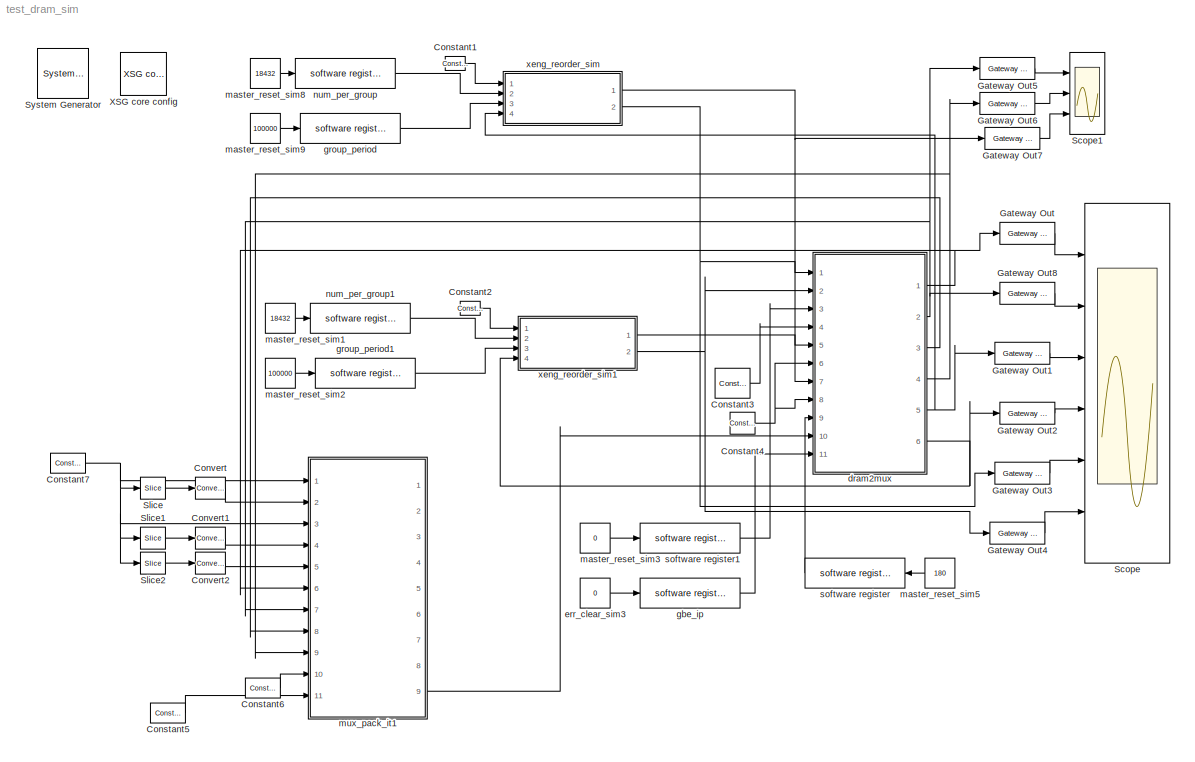
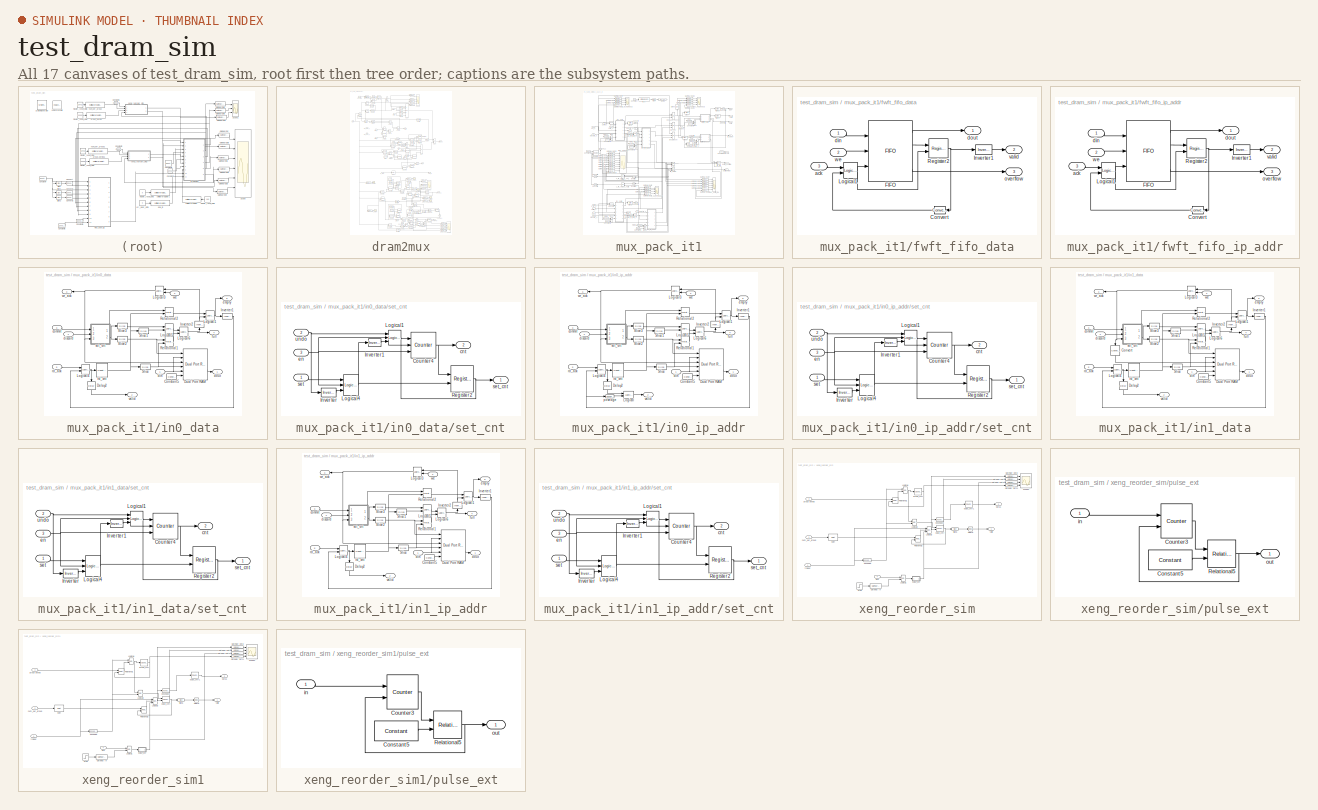
[diagram: thumbnail index - all 17 canvases of the model, root first then tree order]
MODEL test_dram_sim
KIND model
BLOCK [Reference]  System Generator  REF=xbsIndex_r3/ System Generator
  AttributesFormatString = System\\nGenerator
  Ports = []
  ShowPortLabels = on
  SourceBlock = xbsIndex_r3/ System Generator
  SourceType = Xilinx System Generator
  Tag = genX
  UserData = DataTag0
  UserDataPersistent = on
  core_generation = According to Block Masks
  dbl_ovrd = According to Block Masks
  deprecated_control = off
  directory = ./netlist
  eval_field = 0
  incr_netlist = off
  package = bg575
  part = xc2v1000
  run_coregen = off
  simulink_period = 1
  speed = -4
  synthesis_tool = XST
  sysclk_period = 100
  testbench = off
  trim_vbits = Everywhere in SubSystem
  xilinxfamily = Virtex2
BLOCK [Reference] Constant1  REF=xbsIndex_r3/Constant
  Ports = [0, 1]
  SourceBlock = xbsIndex_r3/Constant
  SourceType = Xilinx Constant Block
  arith_type = Boolean
  bin_pt = 0
  carry = CIN
  const = 1
  dbl_ovrd = off
  equ = P=C
  explicit_period = on
  inp1 = P
  inp2 = PCIN>>17
  iostate = 0
  n_bits = 1
  opr = +
  opselect = C
  period = 1
BLOCK [Reference] Constant2  REF=xbsIndex_r3/Constant
  Ports = [0, 1]
  SourceBlock = xbsIndex_r3/Constant
  SourceType = Xilinx Constant Block
  arith_type = Boolean
  bin_pt = 0
  carry = CIN
  const = 1
  dbl_ovrd = off
  equ = P=C
  explicit_period = on
  inp1 = P
  inp2 = PCIN>>17
  iostate = 0
  n_bits = 1
  opr = +
  opselect = C
  period = 1
BLOCK [Reference] Constant3  REF=xbsIndex_r3/Constant
  Ports = [0, 1]
  SourceBlock = xbsIndex_r3/Constant
  SourceType = Xilinx Constant Block
  arith_type = Unsigned
  bin_pt = 0
  carry = CIN
  const = 300
  dbl_ovrd = off
  equ = P=C
  explicit_period = on
  inp1 = P
  inp2 = PCIN>>17
  iostate = 0
  n_bits = 64
  opr = +
  opselect = C
  period = 1
BLOCK [Reference] Constant4  REF=xbsIndex_r3/Constant
  Ports = [0, 1]
  SourceBlock = xbsIndex_r3/Constant
  SourceType = Xilinx Constant Block
  arith_type = Unsigned
  bin_pt = 0
  carry = CIN
  const = 0
  dbl_ovrd = off
  equ = P=C
  explicit_period = on
  inp1 = P
  inp2 = PCIN>>17
  iostate = 0
  n_bits = 1
  opr = +
  opselect = C
  period = 1
BLOCK [Reference] Constant5  REF=xbsIndex_r3/Constant
  Ports = [0, 1]
  SourceBlock = xbsIndex_r3/Constant
  SourceType = Xilinx Constant Block
  arith_type = Boolean
  bin_pt = 0
  carry = CIN
  const = 1
  dbl_ovrd = off
  equ = P=C
  explicit_period = on
  inp1 = P
  inp2 = PCIN>>17
  iostate = 0
  n_bits = 1
  opr = +
  opselect = C
  period = 1
BLOCK [Reference] Constant6  REF=xbsIndex_r3/Constant
  Ports = [0, 1]
  SourceBlock = xbsIndex_r3/Constant
  SourceType = Xilinx Constant Block
  arith_type = Boolean
  bin_pt = 0
  carry = CIN
  const = 0
  dbl_ovrd = off
  equ = P=C
  explicit_period = on
  inp1 = P
  inp2 = PCIN>>17
  iostate = 0
  n_bits = 32
  opr = +
  opselect = C
  period = 1
BLOCK [Reference] Constant7  REF=xbsIndex_r3/Constant
  Ports = [0, 1]
  SourceBlock = xbsIndex_r3/Constant
  SourceType = Xilinx Constant Block
  arith_type = Unsigned
  bin_pt = 0
  carry = CIN
  const = 0
  dbl_ovrd = off
  equ = P=C
  explicit_period = on
  inp1 = P
  inp2 = PCIN>>17
  iostate = 0
  n_bits = 32
  opr = +
  opselect = C
  period = 1
BLOCK [Reference] Convert  REF=xbsIndex_r3/Convert
  Ports = [1, 1]
  SourceBlock = xbsIndex_r3/Convert
  SourceType = Xilinx Converter Block
  arith_type = Boolean
  bin_pt = 6
  dbl_ovrd = off
  explicit_period = off
  inserted_by_tool = off
  latency = 0
  n_bits = 8
  overflow = Wrap
  period = 1
  pipeline = off
  quantization = Truncate
  show_param = off
  xl_area = [0, 0, 0, 0, 0, 0, 0]
  xl_use_area = off
BLOCK [Reference] Convert1  REF=xbsIndex_r3/Convert
  Ports = [1, 1]
  SourceBlock = xbsIndex_r3/Convert
  SourceType = Xilinx Converter Block
  arith_type = Boolean
  bin_pt = 6
  dbl_ovrd = off
  explicit_period = off
  inserted_by_tool = off
  latency = 0
  n_bits = 8
  overflow = Wrap
  period = 1
  pipeline = off
  quantization = Truncate
  show_param = off
  xl_area = [0, 0, 0, 0, 0, 0, 0]
  xl_use_area = off
BLOCK [Reference] Convert2  REF=xbsIndex_r3/Convert
  Ports = [1, 1]
  SourceBlock = xbsIndex_r3/Convert
  SourceType = Xilinx Converter Block
  arith_type = Boolean
  bin_pt = 6
  dbl_ovrd = off
  explicit_period = off
  inserted_by_tool = off
  latency = 0
  n_bits = 8
  overflow = Wrap
  period = 1
  pipeline = off
  quantization = Truncate
  show_param = off
  xl_area = [0, 0, 0, 0, 0, 0, 0]
  xl_use_area = off
BLOCK [Reference] Gateway Out  REF=xbsIndex_r3/Gateway Out
  LOCs = {}
  Ports = [1, 1]
  SourceBlock = xbsIndex_r3/Gateway Out
  SourceType = Xilinx Gateway Out
  arith_type = Boolean
  bin_pt = 6
  hdl_port = on
  locs_specified = off
  nbits = 8
  needs_fixed_name = off
  output_type = Double
  overflow = Wrap
  quantization = Truncate
  show_param = off
  timing_constraint = None
  xl_area = [0, 0, 0, 0, 0, 0, 0]
  xl_use_area = off
BLOCK [Reference] Gateway Out1  REF=xbsIndex_r3/Gateway Out
  LOCs = {}
  Ports = [1, 1]
  SourceBlock = xbsIndex_r3/Gateway Out
  SourceType = Xilinx Gateway Out
  arith_type = Boolean
  bin_pt = 6
  hdl_port = on
  locs_specified = off
  nbits = 8
  needs_fixed_name = off
  output_type = Double
  overflow = Wrap
  quantization = Truncate
  show_param = off
  timing_constraint = None
  xl_area = [0, 0, 0, 0, 0, 0, 0]
  xl_use_area = off
BLOCK [Reference] Gateway Out2  REF=xbsIndex_r3/Gateway Out
  LOCs = {}
  Ports = [1, 1]
  SourceBlock = xbsIndex_r3/Gateway Out
  SourceType = Xilinx Gateway Out
  arith_type = Boolean
  bin_pt = 6
  hdl_port = on
  locs_specified = off
  nbits = 8
  needs_fixed_name = off
  output_type = Double
  overflow = Wrap
  quantization = Truncate
  show_param = off
  timing_constraint = None
  xl_area = [0, 0, 0, 0, 0, 0, 0]
  xl_use_area = off
BLOCK [Reference] Gateway Out3  REF=xbsIndex_r3/Gateway Out
  LOCs = {}
  Ports = [1, 1]
  SourceBlock = xbsIndex_r3/Gateway Out
  SourceType = Xilinx Gateway Out
  arith_type = Boolean
  bin_pt = 6
  hdl_port = on
  locs_specified = off
  nbits = 8
  needs_fixed_name = off
  output_type = Double
  overflow = Wrap
  quantization = Truncate
  show_param = off
  timing_constraint = None
  xl_area = [0, 0, 0, 0, 0, 0, 0]
  xl_use_area = off
BLOCK [Reference] Gateway Out4  REF=xbsIndex_r3/Gateway Out
  LOCs = {}
  Ports = [1, 1]
  SourceBlock = xbsIndex_r3/Gateway Out
  SourceType = Xilinx Gateway Out
  arith_type = Boolean
  bin_pt = 6
  hdl_port = on
  locs_specified = off
  nbits = 8
  needs_fixed_name = off
  output_type = Double
  overflow = Wrap
  quantization = Truncate
  show_param = off
  timing_constraint = None
  xl_area = [0, 0, 0, 0, 0, 0, 0]
  xl_use_area = off
BLOCK [Reference] Gateway Out5  REF=xbsIndex_r3/Gateway Out
  LOCs = {}
  Ports = [1, 1]
  SourceBlock = xbsIndex_r3/Gateway Out
  SourceType = Xilinx Gateway Out
  arith_type = Boolean
  bin_pt = 6
  hdl_port = on
  locs_specified = off
  nbits = 8
  needs_fixed_name = off
  output_type = Double
  overflow = Wrap
  quantization = Truncate
  show_param = off
  timing_constraint = None
  xl_area = [0, 0, 0, 0, 0, 0, 0]
  xl_use_area = off
BLOCK [Reference] Gateway Out6  REF=xbsIndex_r3/Gateway Out
  LOCs = {}
  Ports = [1, 1]
  SourceBlock = xbsIndex_r3/Gateway Out
  SourceType = Xilinx Gateway Out
  arith_type = Boolean
  bin_pt = 6
  hdl_port = on
  locs_specified = off
  nbits = 8
  needs_fixed_name = off
  output_type = Double
  overflow = Wrap
  quantization = Truncate
  show_param = off
  timing_constraint = None
  xl_area = [0, 0, 0, 0, 0, 0, 0]
  xl_use_area = off
BLOCK [Reference] Gateway Out7  REF=xbsIndex_r3/Gateway Out
  LOCs = {}
  Ports = [1, 1]
  SourceBlock = xbsIndex_r3/Gateway Out
  SourceType = Xilinx Gateway Out
  arith_type = Boolean
  bin_pt = 6
  hdl_port = on
  locs_specified = off
  nbits = 8
  needs_fixed_name = off
  output_type = Double
  overflow = Wrap
  quantization = Truncate
  show_param = off
  timing_constraint = None
  xl_area = [0, 0, 0, 0, 0, 0, 0]
  xl_use_area = off
BLOCK [Reference] Gateway Out8  REF=xbsIndex_r3/Gateway Out
  LOCs = {}
  Ports = [1, 1]
  SourceBlock = xbsIndex_r3/Gateway Out
  SourceType = Xilinx Gateway Out
  arith_type = Boolean
  bin_pt = 6
  hdl_port = on
  locs_specified = off
  nbits = 8
  needs_fixed_name = off
  output_type = Double
  overflow = Wrap
  quantization = Truncate
  show_param = off
  timing_constraint = None
  xl_area = [0, 0, 0, 0, 0, 0, 0]
  xl_use_area = off
BLOCK [Scope] Scope
  DataFormat = StructureWithTime
  LimitDataPoints = off
  MaxDataPoints = 10000
  NumInputPorts = 6
  Ports = [6]
  YMax = 1000~1~1~1~995~930
  YMin = 0~0~0~0~965~900
  ZoomMode = yonly
BLOCK [Scope] Scope1
  DataFormat = StructureWithTime
  MaxDataPoints = 10000
  NumInputPorts = 3
  Ports = [3]
  SaveName = ScopeData6
  YMax = 5~5~5
  YMin = -5~-5~-5
  ZoomMode = xonly
BLOCK [Reference] Slice  REF=xbsIndex_r3/Slice
  Ports = [1, 1]
  SourceBlock = xbsIndex_r3/Slice
  SourceType = Xilinx Slice Block
  base0 = LSB of Input
  base1 = MSB of Input
  bit0 = 0
  bit1 = 0
  boolean_output = off
  dbl_ovrd = off
  explicit_period = off
  mode = Lower Bit Location + Width
  nbits = 1
  period = 1
BLOCK [Reference] Slice1  REF=xbsIndex_r3/Slice
  Ports = [1, 1]
  SourceBlock = xbsIndex_r3/Slice
  SourceType = Xilinx Slice Block
  base0 = LSB of Input
  base1 = MSB of Input
  bit0 = 0
  bit1 = 0
  boolean_output = off
  dbl_ovrd = off
  explicit_period = off
  mode = Lower Bit Location + Width
  nbits = 1
  period = 1
BLOCK [Reference] Slice2  REF=xbsIndex_r3/Slice
  Ports = [1, 1]
  SourceBlock = xbsIndex_r3/Slice
  SourceType = Xilinx Slice Block
  base0 = LSB of Input
  base1 = MSB of Input
  bit0 = 0
  bit1 = 0
  boolean_output = off
  dbl_ovrd = off
  explicit_period = off
  mode = Lower Bit Location + Width
  nbits = 1
  period = 1
BLOCK [Reference] XSG core config  REF=xps_library/XSG core config  (lib defined in mdl_00b5cec29cd0, mdl_02ab6ecaa3d1, +5 more)
  Ports = []
  ShowPortLabels = on
  SourceBlock = xps_library/XSG core config
  SourceType = xsg core config
  Tag = xps:xsg
  clk_rate = 205
  clk_src = sys_clk2x
  gpio_clk_bit_index = 0
  gpio_clk_io_group = iBOB:sma
  hw_sys = BEE2_usr
  ibob_linux = off
  mpc_type = powerpc405
  sample_period = 1
  synthesis_tool = XST
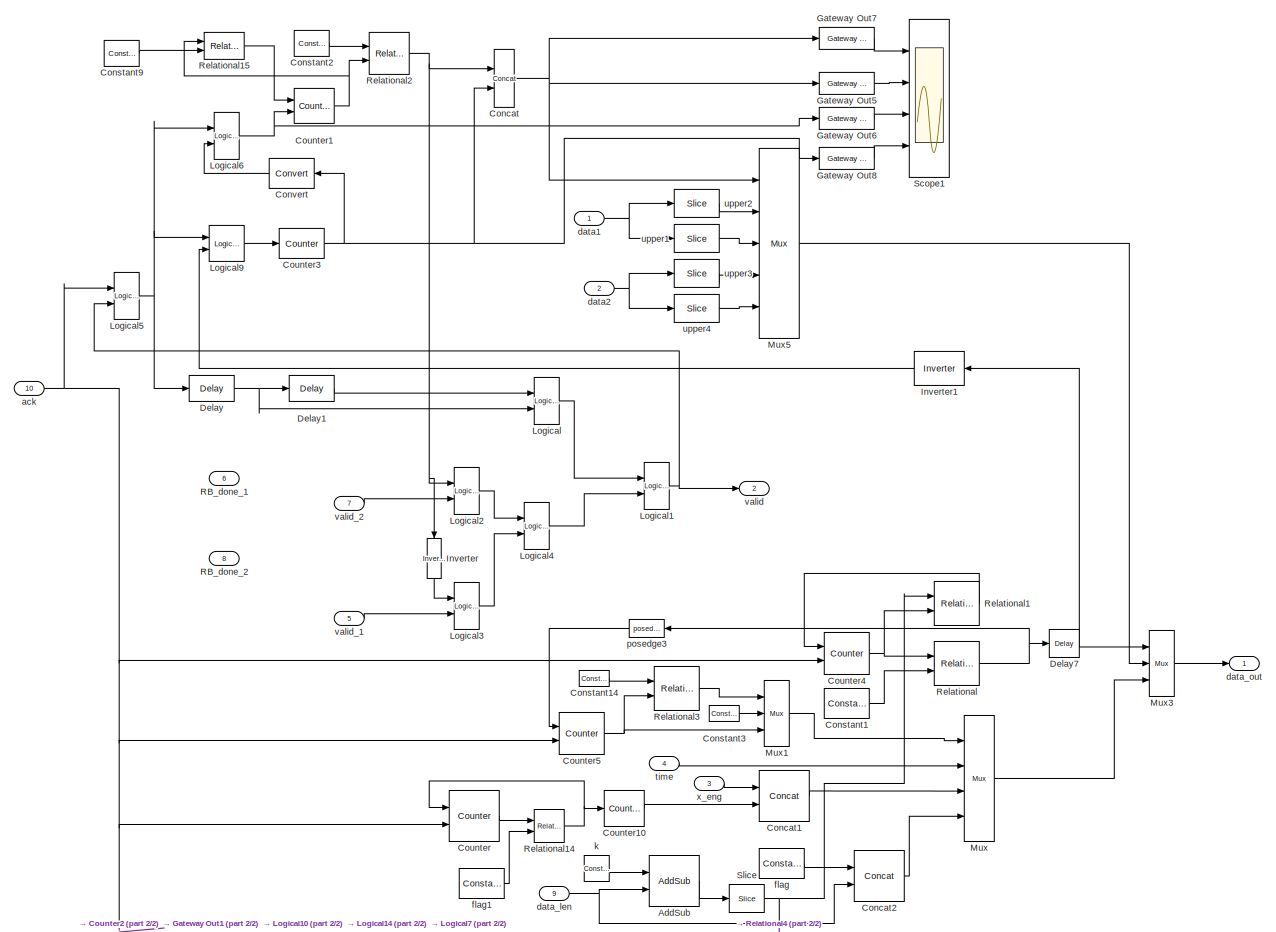
[diagram: dram2mux - part 1/2, full width, top band]
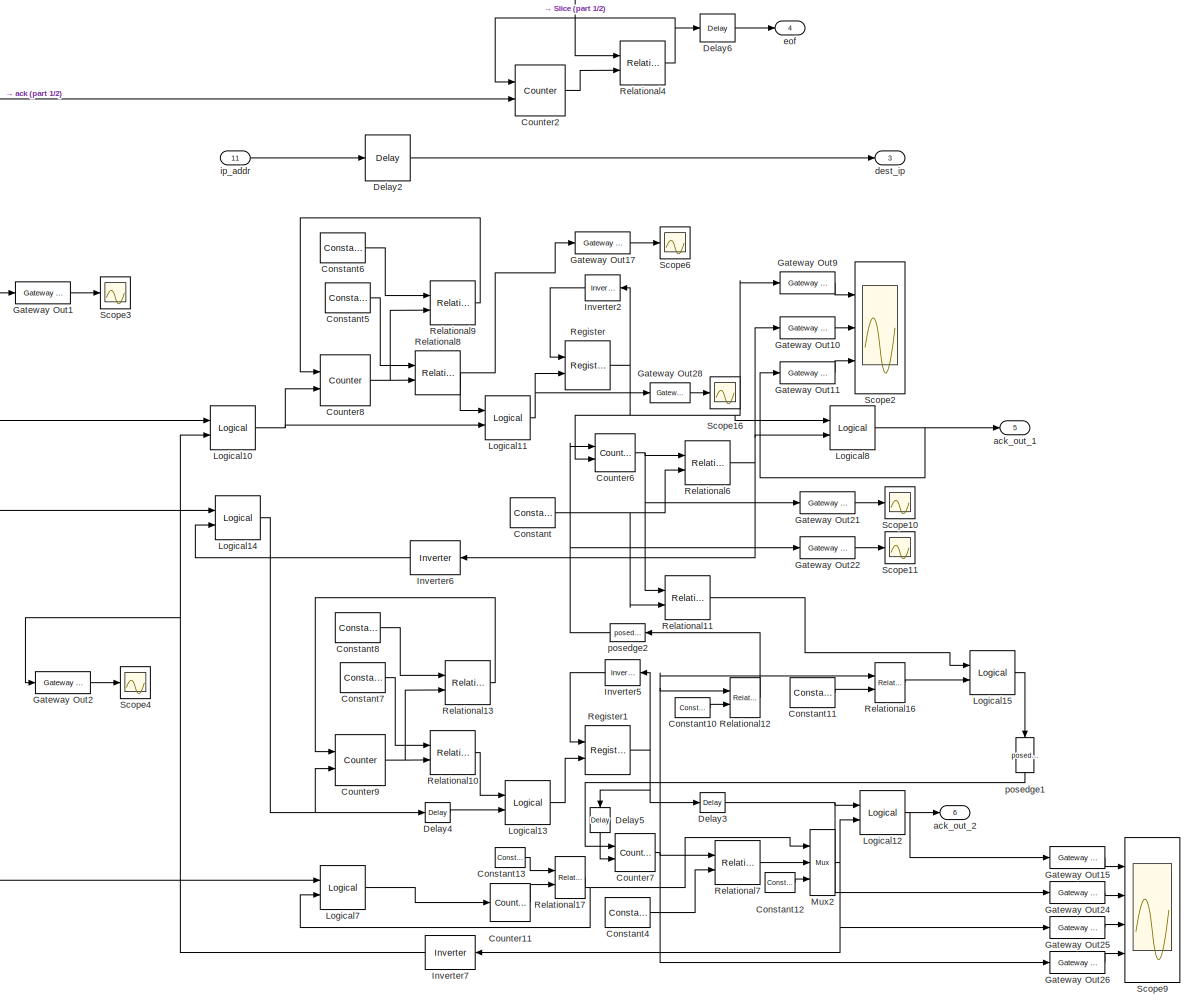
[diagram: dram2mux - part 2/2, full width, bottom band]
BLOCK [SubSystem] dram2mux
  MinAlgLoopOccurrences = off
  Ports = [11, 6]
  RTWSystemCode = Auto
  TreatAsAtomicUnit = off
BLOCK [Reference] dram2mux/AddSub  REF=xbsIndex_r3/AddSub
  Ports = [2, 1]
  SourceBlock = xbsIndex_r3/AddSub
  SourceType = Xilinx Adder/Subtractor
  arith_type = Unsigned
  bin_pt = 2
  dbl_ovrd = off
  en = off
  explicit_period = off
  gen_core = off
  latency = 0
  mode = Addition
  n_bits = 8
  overflow = Wrap
  period = 1
  pipeline = off
  precision = Full
  quantization = Truncate
  show_param = off
  use_carryin = off
  use_carryout = off
  use_core = on
  use_rpm = on
  xl_area = [0, 0, 0, 0, 0, 0, 0]
  xl_use_area = off
BLOCK [Reference] dram2mux/Concat  REF=xbsIndex_r3/Concat
  Ports = [2, 1]
  SourceBlock = xbsIndex_r3/Concat
  SourceType = Xilinx Bus Concatenator
  dbl_ovrd = off
  explicit_period = off
  num_inputs = 2
  period = 1
BLOCK [Reference] dram2mux/Concat1  REF=xbsIndex_r3/Concat
  Ports = [2, 1]
  SourceBlock = xbsIndex_r3/Concat
  SourceType = Xilinx Bus Concatenator
  dbl_ovrd = off
  explicit_period = off
  num_inputs = 2
  period = 1
BLOCK [Reference] dram2mux/Concat2  REF=xbsIndex_r3/Concat
  Ports = [2, 1]
  SourceBlock = xbsIndex_r3/Concat
  SourceType = Xilinx Bus Concatenator
  dbl_ovrd = off
  explicit_period = off
  num_inputs = 2
  period = 1
BLOCK [Reference] dram2mux/Constant  REF=xbsIndex_r3/Constant
  Ports = [0, 1]
  SourceBlock = xbsIndex_r3/Constant
  SourceType = Xilinx Constant Block
  arith_type = Unsigned
  bin_pt = 0
  carry = CIN
  const = 269
  dbl_ovrd = off
  equ = P=C
  explicit_period = on
  inp1 = P
  inp2 = PCIN>>17
  iostate = 0
  n_bits = 9
  opr = +
  opselect = C
  period = 1
BLOCK [Reference] dram2mux/Constant1  REF=xbsIndex_r3/Constant
  Ports = [0, 1]
  SourceBlock = xbsIndex_r3/Constant
  SourceType = Xilinx Constant Block
  arith_type = Unsigned
  bin_pt = 0
  carry = CIN
  const = 3
  dbl_ovrd = off
  equ = P=C
  explicit_period = on
  inp1 = P
  inp2 = PCIN>>17
  iostate = 0
  n_bits = 16
  opr = +
  opselect = C
  period = 1
BLOCK [Reference] dram2mux/Constant10  REF=xbsIndex_r3/Constant
  Ports = [0, 1]
  SourceBlock = xbsIndex_r3/Constant
  SourceType = Xilinx Constant Block
  arith_type = Unsigned
  bin_pt = 0
  carry = CIN
  const = 269
  dbl_ovrd = off
  equ = P=C
  explicit_period = on
  inp1 = P
  inp2 = PCIN>>17
  iostate = 0
  n_bits = 9
  opr = +
  opselect = C
  period = 1
BLOCK [Reference] dram2mux/Constant11  REF=xbsIndex_r3/Constant
  Ports = [0, 1]
  SourceBlock = xbsIndex_r3/Constant
  SourceType = Xilinx Constant Block
  arith_type = Unsigned
  bin_pt = 0
  carry = CIN
  const = 271
  dbl_ovrd = off
  equ = P=C
  explicit_period = on
  inp1 = P
  inp2 = PCIN>>17
  iostate = 0
  n_bits = 9
  opr = +
  opselect = C
  period = 1
BLOCK [Reference] dram2mux/Constant12  REF=xbsIndex_r3/Constant
  Ports = [0, 1]
  SourceBlock = xbsIndex_r3/Constant
  SourceType = Xilinx Constant Block
  arith_type = Boolean
  bin_pt = 0
  carry = CIN
  const = 0
  dbl_ovrd = off
  equ = P=C
  explicit_period = on
  inp1 = P
  inp2 = PCIN>>17
  iostate = 0
  n_bits = 1
  opr = +
  opselect = C
  period = 1
BLOCK [Reference] dram2mux/Constant13  REF=xbsIndex_r3/Constant
  Ports = [0, 1]
  SourceBlock = xbsIndex_r3/Constant
  SourceType = Xilinx Constant Block
  arith_type = Unsigned
  bin_pt = 0
  carry = CIN
  const = 183
  dbl_ovrd = off
  equ = P=C
  explicit_period = on
  inp1 = P
  inp2 = PCIN>>17
  iostate = 0
  n_bits = 10
  opr = +
  opselect = C
  period = 1
BLOCK [Reference] dram2mux/Constant14  REF=xbsIndex_r3/Constant
  Ports = [0, 1]
  SourceBlock = xbsIndex_r3/Constant
  SourceType = Xilinx Constant Block
  arith_type = Unsigned
  bin_pt = 0
  carry = CIN
  const = 2
  dbl_ovrd = off
  equ = P=C
  explicit_period = on
  inp1 = P
  inp2 = PCIN>>17
  iostate = 0
  n_bits = 2
  opr = +
  opselect = C
  period = 1
BLOCK [Reference] dram2mux/Constant2  REF=xbsIndex_r3/Constant
  Ports = [0, 1]
  SourceBlock = xbsIndex_r3/Constant
  SourceType = Xilinx Constant Block
  arith_type = Unsigned
  bin_pt = 0
  carry = CIN
  const = 90
  dbl_ovrd = off
  equ = P=C
  explicit_period = on
  inp1 = P
  inp2 = PCIN>>17
  iostate = 0
  n_bits = 8
  opr = +
  opselect = C
  period = 1
BLOCK [Reference] dram2mux/Constant3  REF=xbsIndex_r3/Constant
  Ports = [0, 1]
  SourceBlock = xbsIndex_r3/Constant
  SourceType = Xilinx Constant Block
  arith_type = Unsigned
  bin_pt = 0
  carry = CIN
  const = 0
  dbl_ovrd = off
  equ = P=C
  explicit_period = on
  inp1 = P
  inp2 = PCIN>>17
  iostate = 0
  n_bits = 1
  opr = +
  opselect = C
  period = 1
BLOCK [Reference] dram2mux/Constant4  REF=xbsIndex_r3/Constant
  Ports = [0, 1]
  SourceBlock = xbsIndex_r3/Constant
  SourceType = Xilinx Constant Block
  arith_type = Unsigned
  bin_pt = 0
  carry = CIN
  const = 269
  dbl_ovrd = off
  equ = P=C
  explicit_period = on
  inp1 = P
  inp2 = PCIN>>17
  iostate = 0
  n_bits = 9
  opr = +
  opselect = C
  period = 1
BLOCK [Reference] dram2mux/Constant5  REF=xbsIndex_r3/Constant
  Ports = [0, 1]
  SourceBlock = xbsIndex_r3/Constant
  SourceType = Xilinx Constant Block
  arith_type = Unsigned
  bin_pt = 0
  carry = CIN
  const = 3
  dbl_ovrd = off
  equ = P=C
  explicit_period = on
  inp1 = P
  inp2 = PCIN>>17
  iostate = 0
  n_bits = 2
  opr = +
  opselect = C
  period = 1
BLOCK [Reference] dram2mux/Constant6  REF=xbsIndex_r3/Constant
  Ports = [0, 1]
  SourceBlock = xbsIndex_r3/Constant
  SourceType = Xilinx Constant Block
  arith_type = Unsigned
  bin_pt = 0
  carry = CIN
  const = 183
  dbl_ovrd = off
  equ = P=C
  explicit_period = on
  inp1 = P
  inp2 = PCIN>>17
  iostate = 0
  n_bits = 8
  opr = +
  opselect = C
  period = 1
BLOCK [Reference] dram2mux/Constant7  REF=xbsIndex_r3/Constant
  Ports = [0, 1]
  SourceBlock = xbsIndex_r3/Constant
  SourceType = Xilinx Constant Block
  arith_type = Unsigned
  bin_pt = 0
  carry = CIN
  const = 3
  dbl_ovrd = off
  equ = P=C
  explicit_period = on
  inp1 = P
  inp2 = PCIN>>17
  iostate = 0
  n_bits = 2
  opr = +
  opselect = C
  period = 1
BLOCK [Reference] dram2mux/Constant8  REF=xbsIndex_r3/Constant
  Ports = [0, 1]
  SourceBlock = xbsIndex_r3/Constant
  SourceType = Xilinx Constant Block
  arith_type = Unsigned
  bin_pt = 0
  carry = CIN
  const = 183
  dbl_ovrd = off
  equ = P=C
  explicit_period = on
  inp1 = P
  inp2 = PCIN>>17
  iostate = 0
  n_bits = 8
  opr = +
  opselect = C
  period = 1
BLOCK [Reference] dram2mux/Constant9  REF=xbsIndex_r3/Constant
  Ports = [0, 1]
  SourceBlock = xbsIndex_r3/Constant
  SourceType = Xilinx Constant Block
  arith_type = Unsigned
  bin_pt = 0
  carry = CIN
  const = 180
  dbl_ovrd = off
  equ = P=C
  explicit_period = on
  inp1 = P
  inp2 = PCIN>>17
  iostate = 0
  n_bits = 8
  opr = +
  opselect = C
  period = 1
BLOCK [Reference] dram2mux/Convert  REF=xbsIndex_r3/Convert
  Ports = [1, 1]
  SourceBlock = xbsIndex_r3/Convert
  SourceType = Xilinx Converter Block
  arith_type = Boolean
  bin_pt = 6
  dbl_ovrd = off
  explicit_period = off
  inserted_by_tool = off
  latency = 0
  n_bits = 8
  overflow = Wrap
  period = 1
  pipeline = off
  quantization = Truncate
  show_param = off
  xl_area = [0, 0, 0, 0, 0, 0, 0]
  xl_use_area = off
BLOCK [Reference] dram2mux/Counter  REF=xbsIndex_r3/Counter
  Ports = [2, 1]
  SourceBlock = xbsIndex_r3/Counter
  SourceType = Xilinx Counter Block
  arith_type = Unsigned
  bin_pt = 0
  cnt_by_val = 1
  cnt_to = Inf
  cnt_type = Free Running
  dbl_ovrd = off
  en = on
  explicit_period = on
  gen_core = off
  load_pin = off
  n_bits = 32
  operation = Up
  period = 1
  rst = on
  show_param = off
  start_count = 0
  use_rpm = on
  xl_area = [0, 0, 0, 0, 0, 0, 0]
  xl_use_area = off
BLOCK [Reference] dram2mux/Counter1  REF=xbsIndex_r3/Counter
  Ports = [2, 1]
  SourceBlock = xbsIndex_r3/Counter
  SourceType = Xilinx Counter Block
  arith_type = Unsigned
  bin_pt = 0
  cnt_by_val = 1
  cnt_to = 180
  cnt_type = Free Running
  dbl_ovrd = off
  en = on
  explicit_period = on
  gen_core = off
  load_pin = off
  n_bits = 8
  operation = Up
  period = 1
  rst = on
  show_param = off
  start_count = 0
  use_rpm = on
  xl_area = [0, 0, 0, 0, 0, 0, 0]
  xl_use_area = off
BLOCK [Reference] dram2mux/Counter10  REF=xbsIndex_r3/Counter
  Ports = [1, 1]
  SourceBlock = xbsIndex_r3/Counter
  SourceType = Xilinx Counter Block
  arith_type = Unsigned
  bin_pt = 0
  cnt_by_val = 1
  cnt_to = Inf
  cnt_type = Free Running
  dbl_ovrd = off
  en = on
  explicit_period = on
  gen_core = off
  load_pin = off
  n_bits = 32
  operation = Up
  period = 1
  rst = off
  show_param = off
  start_count = 0
  use_rpm = on
  xl_area = [0, 0, 0, 0, 0, 0, 0]
  xl_use_area = off
BLOCK [Reference] dram2mux/Counter11  REF=xbsIndex_r3/Counter
  Ports = [1, 1]
  SourceBlock = xbsIndex_r3/Counter
  SourceType = Xilinx Counter Block
  arith_type = Unsigned
  bin_pt = 0
  cnt_by_val = 1
  cnt_to = Inf
  cnt_type = Free Running
  dbl_ovrd = off
  en = on
  explicit_period = on
  gen_core = off
  load_pin = off
  n_bits = 10
  operation = Up
  period = 1
  rst = off
  show_param = off
  start_count = 0
  use_rpm = on
  xl_area = [0, 0, 0, 0, 0, 0, 0]
  xl_use_area = off
BLOCK [Reference] dram2mux/Counter2  REF=xbsIndex_r3/Counter
  Ports = [2, 1]
  SourceBlock = xbsIndex_r3/Counter
  SourceType = Xilinx Counter Block
  arith_type = Unsigned
  bin_pt = 0
  cnt_by_val = 1
  cnt_to = Inf
  cnt_type = Free Running
  dbl_ovrd = off
  en = on
  explicit_period = on
  gen_core = off
  load_pin = off
  n_bits = 32
  operation = Up
  period = 1
  rst = on
  show_param = off
  start_count = 0
  use_rpm = on
  xl_area = [0, 0, 0, 0, 0, 0, 0]
  xl_use_area = off
BLOCK [Reference] dram2mux/Counter3  REF=xbsIndex_r3/Counter
  Ports = [1, 1]
  SourceBlock = xbsIndex_r3/Counter
  SourceType = Xilinx Counter Block
  arith_type = Unsigned
  bin_pt = 0
  cnt_by_val = 1
  cnt_to = Inf
  cnt_type = Free Running
  dbl_ovrd = off
  en = on
  explicit_period = on
  gen_core = off
  load_pin = off
  n_bits = 1
  operation = Up
  period = 1
  rst = off
  show_param = off
  start_count = 0
  use_rpm = on
  xl_area = [0, 0, 0, 0, 0, 0, 0]
  xl_use_area = off
BLOCK [Reference] dram2mux/Counter4  REF=xbsIndex_r3/Counter
  Ports = [2, 1]
  SourceBlock = xbsIndex_r3/Counter
  SourceType = Xilinx Counter Block
  arith_type = Unsigned
  bin_pt = 0
  cnt_by_val = 1
  cnt_to = Inf
  cnt_type = Free Running
  dbl_ovrd = off
  en = on
  explicit_period = on
  gen_core = off
  load_pin = off
  n_bits = 16
  operation = Up
  period = 1
  rst = on
  show_param = off
  start_count = 0
  use_rpm = on
  xl_area = [0, 0, 0, 0, 0, 0, 0]
  xl_use_area = off
BLOCK [Reference] dram2mux/Counter5  REF=xbsIndex_r3/Counter
  Ports = [2, 1]
  SourceBlock = xbsIndex_r3/Counter
  SourceType = Xilinx Counter Block
  arith_type = Unsigned
  bin_pt = 0
  cnt_by_val = 1
  cnt_to = Inf
  cnt_type = Free Running
  dbl_ovrd = off
  en = on
  explicit_period = on
  gen_core = off
  load_pin = off
  n_bits = 2
  operation = Up
  period = 1
  rst = on
  show_param = off
  start_count = 0
  use_rpm = on
  xl_area = [0, 0, 0, 0, 0, 0, 0]
  xl_use_area = off
BLOCK [Reference] dram2mux/Counter6  REF=xbsIndex_r3/Counter
  Ports = [2, 1]
  SourceBlock = xbsIndex_r3/Counter
  SourceType = Xilinx Counter Block
  arith_type = Unsigned
  bin_pt = 0
  cnt_by_val = 1
  cnt_to = Inf
  cnt_type = Free Running
  dbl_ovrd = off
  en = on
  explicit_period = on
  gen_core = off
  load_pin = off
  n_bits = 10
  operation = Up
  period = 1
  rst = on
  show_param = off
  start_count = 0
  use_rpm = on
  xl_area = [0, 0, 0, 0, 0, 0, 0]
  xl_use_area = off
BLOCK [Reference] dram2mux/Counter7  REF=xbsIndex_r3/Counter
  Ports = [2, 1]
  SourceBlock = xbsIndex_r3/Counter
  SourceType = Xilinx Counter Block
  arith_type = Unsigned
  bin_pt = 0
  cnt_by_val = 1
  cnt_to = Inf
  cnt_type = Free Running
  dbl_ovrd = off
  en = on
  explicit_period = on
  gen_core = off
  load_pin = off
  n_bits = 10
  operation = Up
  period = 1
  rst = on
  show_param = off
  start_count = 0
  use_rpm = on
  xl_area = [0, 0, 0, 0, 0, 0, 0]
  xl_use_area = off
BLOCK [Reference] dram2mux/Counter8  REF=xbsIndex_r3/Counter
  Ports = [2, 1]
  SourceBlock = xbsIndex_r3/Counter
  SourceType = Xilinx Counter Block
  arith_type = Unsigned
  bin_pt = 0
  cnt_by_val = 1
  cnt_to = Inf
  cnt_type = Free Running
  dbl_ovrd = off
  en = on
  explicit_period = on
  gen_core = off
  load_pin = off
  n_bits = 8
  operation = Up
  period = 1
  rst = on
  show_param = off
  start_count = 0
  use_rpm = on
  xl_area = [0, 0, 0, 0, 0, 0, 0]
  xl_use_area = off
BLOCK [Reference] dram2mux/Counter9  REF=xbsIndex_r3/Counter
  Ports = [2, 1]
  SourceBlock = xbsIndex_r3/Counter
  SourceType = Xilinx Counter Block
  arith_type = Unsigned
  bin_pt = 0
  cnt_by_val = 1
  cnt_to = Inf
  cnt_type = Free Running
  dbl_ovrd = off
  en = on
  explicit_period = on
  gen_core = off
  load_pin = off
  n_bits = 8
  operation = Up
  period = 1
  rst = on
  show_param = off
  start_count = 0
  use_rpm = on
  xl_area = [0, 0, 0, 0, 0, 0, 0]
  xl_use_area = off
BLOCK [Reference] dram2mux/Delay  REF=xbsIndex_r3/Delay
  Ports = [1, 1]
  SourceBlock = xbsIndex_r3/Delay
  SourceType = Xilinx Delay Block
  accept_only_valid = off
  dbl_ovrd = off
  en = off
  explicit_period = on
  init_zero = on
  latency = 1
  period = 1
  reg_retiming = off
  show_param = off
  xl_area = [0, 0, 0, 0, 0, 0, 0]
  xl_use_area = off
BLOCK [Reference] dram2mux/Delay1  REF=xbsIndex_r3/Delay
  Ports = [1, 1]
  SourceBlock = xbsIndex_r3/Delay
  SourceType = Xilinx Delay Block
  accept_only_valid = off
  dbl_ovrd = off
  en = off
  explicit_period = on
  init_zero = on
  latency = 1
  period = 1
  reg_retiming = off
  show_param = off
  xl_area = [0, 0, 0, 0, 0, 0, 0]
  xl_use_area = off
BLOCK [Reference] dram2mux/Delay2  REF=xbsIndex_r3/Delay
  Ports = [1, 1]
  SourceBlock = xbsIndex_r3/Delay
  SourceType = Xilinx Delay Block
  accept_only_valid = off
  dbl_ovrd = off
  en = off
  explicit_period = off
  init_zero = on
  latency = 2
  period = 1
  reg_retiming = off
  show_param = off
  xl_area = [0, 0, 0, 0, 0, 0, 0]
  xl_use_area = off
BLOCK [Reference] dram2mux/Delay3  REF=xbsIndex_r3/Delay
  Ports = [1, 1]
  SourceBlock = xbsIndex_r3/Delay
  SourceType = Xilinx Delay Block
  accept_only_valid = off
  dbl_ovrd = off
  en = off
  explicit_period = on
  init_zero = on
  latency = 1
  period = 1
  reg_retiming = off
  show_param = off
  xl_area = [0, 0, 0, 0, 0, 0, 0]
  xl_use_area = off
BLOCK [Reference] dram2mux/Delay4  REF=xbsIndex_r3/Delay
  Ports = [1, 1]
  SourceBlock = xbsIndex_r3/Delay
  SourceType = Xilinx Delay Block
  accept_only_valid = off
  dbl_ovrd = off
  en = off
  explicit_period = on
  init_zero = on
  latency = 2
  period = 1
  reg_retiming = off
  show_param = off
  xl_area = [0, 0, 0, 0, 0, 0, 0]
  xl_use_area = off
BLOCK [Reference] dram2mux/Delay5  REF=xbsIndex_r3/Delay
  Ports = [1, 1]
  SourceBlock = xbsIndex_r3/Delay
  SourceType = Xilinx Delay Block
  accept_only_valid = off
  dbl_ovrd = off
  en = off
  explicit_period = on
  init_zero = on
  latency = 1
  period = 1
  reg_retiming = off
  show_param = off
  xl_area = [0, 0, 0, 0, 0, 0, 0]
  xl_use_area = off
BLOCK [Reference] dram2mux/Delay6  REF=xbsIndex_r3/Delay
  Ports = [1, 1]
  SourceBlock = xbsIndex_r3/Delay
  SourceType = Xilinx Delay Block
  accept_only_valid = off
  dbl_ovrd = off
  en = off
  explicit_period = off
  init_zero = on
  latency = 1
  period = 1
  reg_retiming = off
  show_param = off
  xl_area = [0, 0, 0, 0, 0, 0, 0]
  xl_use_area = off
BLOCK [Reference] dram2mux/Delay7  REF=xbsIndex_r3/Delay
  Ports = [1, 1]
  SourceBlock = xbsIndex_r3/Delay
  SourceType = Xilinx Delay Block
  accept_only_valid = off
  dbl_ovrd = off
  en = off
  explicit_period = off
  init_zero = on
  latency = 1
  period = 1
  reg_retiming = off
  show_param = off
  xl_area = [0, 0, 0, 0, 0, 0, 0]
  xl_use_area = off
BLOCK [Reference] dram2mux/Gateway Out1  REF=xbsIndex_r3/Gateway Out
  LOCs = {}
  Ports = [1, 1]
  SourceBlock = xbsIndex_r3/Gateway Out
  SourceType = Xilinx Gateway Out
  arith_type = Boolean
  bin_pt = 6
  hdl_port = on
  locs_specified = off
  nbits = 8
  needs_fixed_name = off
  output_type = Double
  overflow = Wrap
  quantization = Truncate
  show_param = off
  timing_constraint = None
  xl_area = [0, 0, 0, 0, 0, 0, 0]
  xl_use_area = off
BLOCK [Reference] dram2mux/Gateway Out10  REF=xbsIndex_r3/Gateway Out
  LOCs = {}
  Ports = [1, 1]
  SourceBlock = xbsIndex_r3/Gateway Out
  SourceType = Xilinx Gateway Out
  arith_type = Boolean
  bin_pt = 6
  hdl_port = on
  locs_specified = off
  nbits = 8
  needs_fixed_name = off
  output_type = Double
  overflow = Wrap
  quantization = Truncate
  show_param = off
  timing_constraint = None
  xl_area = [0, 0, 0, 0, 0, 0, 0]
  xl_use_area = off
BLOCK [Reference] dram2mux/Gateway Out11  REF=xbsIndex_r3/Gateway Out
  LOCs = {}
  Ports = [1, 1]
  SourceBlock = xbsIndex_r3/Gateway Out
  SourceType = Xilinx Gateway Out
  arith_type = Boolean
  bin_pt = 6
  hdl_port = on
  locs_specified = off
  nbits = 8
  needs_fixed_name = off
  output_type = Double
  overflow = Wrap
  quantization = Truncate
  show_param = off
  timing_constraint = None
  xl_area = [0, 0, 0, 0, 0, 0, 0]
  xl_use_area = off
BLOCK [Reference] dram2mux/Gateway Out15  REF=xbsIndex_r3/Gateway Out
  LOCs = {}
  Ports = [1, 1]
  SourceBlock = xbsIndex_r3/Gateway Out
  SourceType = Xilinx Gateway Out
  arith_type = Boolean
  bin_pt = 6
  hdl_port = on
  locs_specified = off
  nbits = 8
  needs_fixed_name = off
  output_type = Double
  overflow = Wrap
  quantization = Truncate
  show_param = off
  timing_constraint = None
  xl_area = [0, 0, 0, 0, 0, 0, 0]
  xl_use_area = off
BLOCK [Reference] dram2mux/Gateway Out17  REF=xbsIndex_r3/Gateway Out
  LOCs = {}
  Ports = [1, 1]
  SourceBlock = xbsIndex_r3/Gateway Out
  SourceType = Xilinx Gateway Out
  arith_type = Boolean
  bin_pt = 6
  hdl_port = on
  locs_specified = off
  nbits = 8
  needs_fixed_name = off
  output_type = Double
  overflow = Wrap
  quantization = Truncate
  show_param = off
  timing_constraint = None
  xl_area = [0, 0, 0, 0, 0, 0, 0]
  xl_use_area = off
BLOCK [Reference] dram2mux/Gateway Out2  REF=xbsIndex_r3/Gateway Out
  LOCs = {}
  Ports = [1, 1]
  SourceBlock = xbsIndex_r3/Gateway Out
  SourceType = Xilinx Gateway Out
  arith_type = Boolean
  bin_pt = 6
  hdl_port = on
  locs_specified = off
  nbits = 8
  needs_fixed_name = off
  output_type = Double
  overflow = Wrap
  quantization = Truncate
  show_param = off
  timing_constraint = None
  xl_area = [0, 0, 0, 0, 0, 0, 0]
  xl_use_area = off
BLOCK [Reference] dram2mux/Gateway Out21  REF=xbsIndex_r3/Gateway Out
  LOCs = {}
  Ports = [1, 1]
  SourceBlock = xbsIndex_r3/Gateway Out
  SourceType = Xilinx Gateway Out
  arith_type = Boolean
  bin_pt = 6
  hdl_port = on
  locs_specified = off
  nbits = 8
  needs_fixed_name = off
  output_type = Double
  overflow = Wrap
  quantization = Truncate
  show_param = off
  timing_constraint = None
  xl_area = [0, 0, 0, 0, 0, 0, 0]
  xl_use_area = off
BLOCK [Reference] dram2mux/Gateway Out22  REF=xbsIndex_r3/Gateway Out
  LOCs = {}
  Ports = [1, 1]
  SourceBlock = xbsIndex_r3/Gateway Out
  SourceType = Xilinx Gateway Out
  arith_type = Boolean
  bin_pt = 6
  hdl_port = on
  locs_specified = off
  nbits = 8
  needs_fixed_name = off
  output_type = Double
  overflow = Wrap
  quantization = Truncate
  show_param = off
  timing_constraint = None
  xl_area = [0, 0, 0, 0, 0, 0, 0]
  xl_use_area = off
BLOCK [Reference] dram2mux/Gateway Out24  REF=xbsIndex_r3/Gateway Out
  LOCs = {}
  Ports = [1, 1]
  SourceBlock = xbsIndex_r3/Gateway Out
  SourceType = Xilinx Gateway Out
  arith_type = Boolean
  bin_pt = 6
  hdl_port = on
  locs_specified = off
  nbits = 8
  needs_fixed_name = off
  output_type = Double
  overflow = Wrap
  quantization = Truncate
  show_param = off
  timing_constraint = None
  xl_area = [0, 0, 0, 0, 0, 0, 0]
  xl_use_area = off
BLOCK [Reference] dram2mux/Gateway Out25  REF=xbsIndex_r3/Gateway Out
  LOCs = {}
  Ports = [1, 1]
  SourceBlock = xbsIndex_r3/Gateway Out
  SourceType = Xilinx Gateway Out
  arith_type = Boolean
  bin_pt = 6
  hdl_port = on
  locs_specified = off
  nbits = 8
  needs_fixed_name = off
  output_type = Double
  overflow = Wrap
  quantization = Truncate
  show_param = off
  timing_constraint = None
  xl_area = [0, 0, 0, 0, 0, 0, 0]
  xl_use_area = off
BLOCK [Reference] dram2mux/Gateway Out26  REF=xbsIndex_r3/Gateway Out
  LOCs = {}
  Ports = [1, 1]
  SourceBlock = xbsIndex_r3/Gateway Out
  SourceType = Xilinx Gateway Out
  arith_type = Boolean
  bin_pt = 6
  hdl_port = on
  locs_specified = off
  nbits = 8
  needs_fixed_name = off
  output_type = Double
  overflow = Wrap
  quantization = Truncate
  show_param = off
  timing_constraint = None
  xl_area = [0, 0, 0, 0, 0, 0, 0]
  xl_use_area = off
BLOCK [Reference] dram2mux/Gateway Out28  REF=xbsIndex_r3/Gateway Out
  LOCs = {}
  Ports = [1, 1]
  SourceBlock = xbsIndex_r3/Gateway Out
  SourceType = Xilinx Gateway Out
  arith_type = Boolean
  bin_pt = 6
  hdl_port = on
  locs_specified = off
  nbits = 8
  needs_fixed_name = off
  output_type = Double
  overflow = Wrap
  quantization = Truncate
  show_param = off
  timing_constraint = None
  xl_area = [0, 0, 0, 0, 0, 0, 0]
  xl_use_area = off
BLOCK [Reference] dram2mux/Gateway Out5  REF=xbsIndex_r3/Gateway Out
  LOCs = {}
  Ports = [1, 1]
  SourceBlock = xbsIndex_r3/Gateway Out
  SourceType = Xilinx Gateway Out
  arith_type = Boolean
  bin_pt = 6
  hdl_port = on
  locs_specified = off
  nbits = 8
  needs_fixed_name = off
  output_type = Double
  overflow = Wrap
  quantization = Truncate
  show_param = off
  timing_constraint = None
  xl_area = [0, 0, 0, 0, 0, 0, 0]
  xl_use_area = off
BLOCK [Reference] dram2mux/Gateway Out6  REF=xbsIndex_r3/Gateway Out
  LOCs = {}
  Ports = [1, 1]
  SourceBlock = xbsIndex_r3/Gateway Out
  SourceType = Xilinx Gateway Out
  arith_type = Boolean
  bin_pt = 6
  hdl_port = on
  locs_specified = off
  nbits = 8
  needs_fixed_name = off
  output_type = Double
  overflow = Wrap
  quantization = Truncate
  show_param = off
  timing_constraint = None
  xl_area = [0, 0, 0, 0, 0, 0, 0]
  xl_use_area = off
BLOCK [Reference] dram2mux/Gateway Out7  REF=xbsIndex_r3/Gateway Out
  LOCs = {}
  Ports = [1, 1]
  SourceBlock = xbsIndex_r3/Gateway Out
  SourceType = Xilinx Gateway Out
  arith_type = Boolean
  bin_pt = 6
  hdl_port = on
  locs_specified = off
  nbits = 8
  needs_fixed_name = off
  output_type = Double
  overflow = Wrap
  quantization = Truncate
  show_param = off
  timing_constraint = None
  xl_area = [0, 0, 0, 0, 0, 0, 0]
  xl_use_area = off
BLOCK [Reference] dram2mux/Gateway Out8  REF=xbsIndex_r3/Gateway Out
  LOCs = {}
  Ports = [1, 1]
  SourceBlock = xbsIndex_r3/Gateway Out
  SourceType = Xilinx Gateway Out
  arith_type = Boolean
  bin_pt = 6
  hdl_port = on
  locs_specified = off
  nbits = 8
  needs_fixed_name = off
  output_type = Double
  overflow = Wrap
  quantization = Truncate
  show_param = off
  timing_constraint = None
  xl_area = [0, 0, 0, 0, 0, 0, 0]
  xl_use_area = off
BLOCK [Reference] dram2mux/Gateway Out9  REF=xbsIndex_r3/Gateway Out
  LOCs = {}
  Ports = [1, 1]
  SourceBlock = xbsIndex_r3/Gateway Out
  SourceType = Xilinx Gateway Out
  arith_type = Boolean
  bin_pt = 6
  hdl_port = on
  locs_specified = off
  nbits = 8
  needs_fixed_name = off
  output_type = Double
  overflow = Wrap
  quantization = Truncate
  show_param = off
  timing_constraint = None
  xl_area = [0, 0, 0, 0, 0, 0, 0]
  xl_use_area = off
BLOCK [Reference] dram2mux/Inverter  REF=xbsIndex_r3/Inverter
  Ports = [1, 1]
  SourceBlock = xbsIndex_r3/Inverter
  SourceType = Xilinx Inverter
  dbl_ovrd = off
  en = off
  explicit_period = off
  latency = 0
  period = 1
  show_param = off
  xl_area = [0, 0, 0, 0, 0, 0, 0]
  xl_use_area = off
BLOCK [Reference] dram2mux/Inverter1  REF=xbsIndex_r3/Inverter
  Ports = [1, 1]
  SourceBlock = xbsIndex_r3/Inverter
  SourceType = Xilinx Inverter
  dbl_ovrd = off
  en = off
  explicit_period = off
  latency = 0
  period = 1
  show_param = off
  xl_area = [0, 0, 0, 0, 0, 0, 0]
  xl_use_area = off
BLOCK [Reference] dram2mux/Inverter2  REF=xbsIndex_r3/Inverter
  Ports = [1, 1]
  SourceBlock = xbsIndex_r3/Inverter
  SourceType = Xilinx Inverter
  dbl_ovrd = off
  en = off
  explicit_period = off
  latency = 0
  period = 1
  show_param = off
  xl_area = [0, 0, 0, 0, 0, 0, 0]
  xl_use_area = off
BLOCK [Reference] dram2mux/Inverter5  REF=xbsIndex_r3/Inverter
  Ports = [1, 1]
  SourceBlock = xbsIndex_r3/Inverter
  SourceType = Xilinx Inverter
  dbl_ovrd = off
  en = off
  explicit_period = off
  latency = 0
  period = 1
  show_param = off
  xl_area = [0, 0, 0, 0, 0, 0, 0]
  xl_use_area = off
BLOCK [Reference] dram2mux/Inverter6  REF=xbsIndex_r3/Inverter
  Ports = [1, 1]
  SourceBlock = xbsIndex_r3/Inverter
  SourceType = Xilinx Inverter
  dbl_ovrd = off
  en = off
  explicit_period = off
  latency = 0
  period = 1
  show_param = off
  xl_area = [0, 0, 0, 0, 0, 0, 0]
  xl_use_area = off
BLOCK [Reference] dram2mux/Inverter7  REF=xbsIndex_r3/Inverter
  Ports = [1, 1]
  SourceBlock = xbsIndex_r3/Inverter
  SourceType = Xilinx Inverter
  dbl_ovrd = off
  en = off
  explicit_period = off
  latency = 0
  period = 1
  show_param = off
  xl_area = [0, 0, 0, 0, 0, 0, 0]
  xl_use_area = off
BLOCK [Reference] dram2mux/Logical  REF=xbsIndex_r3/Logical
  Ports = [2, 1]
  SourceBlock = xbsIndex_r3/Logical
  SourceType = Xilinx Logical Block
  align_bp = on
  arith_type = Unsigned
  bin_pt = 2
  dbl_ovrd = off
  en = off
  explicit_period = off
  inputs = 2
  latency = 0
  logical_function = NOR
  n_bits = 8
  period = 1
  precision = Full
  show_param = off
  xl_area = [0, 0, 0, 0, 0, 0, 0]
  xl_use_area = off
BLOCK [Reference] dram2mux/Logical1  REF=xbsIndex_r3/Logical
  Ports = [2, 1]
  SourceBlock = xbsIndex_r3/Logical
  SourceType = Xilinx Logical Block
  align_bp = off
  arith_type = Unsigned
  bin_pt = 2
  dbl_ovrd = off
  en = off
  explicit_period = off
  inputs = 2
  latency = 0
  logical_function = AND
  n_bits = 8
  period = 1
  precision = Full
  show_param = off
  xl_area = [0, 0, 0, 0, 0, 0, 0]
  xl_use_area = off
BLOCK [Reference] dram2mux/Logical10  REF=xbsIndex_r3/Logical
  Ports = [2, 1]
  SourceBlock = xbsIndex_r3/Logical
  SourceType = Xilinx Logical Block
  align_bp = on
  arith_type = Unsigned
  bin_pt = 2
  dbl_ovrd = off
  en = off
  explicit_period = off
  inputs = 2
  latency = 0
  logical_function = AND
  n_bits = 8
  period = 1
  precision = Full
  show_param = off
  xl_area = [0, 0, 0, 0, 0, 0, 0]
  xl_use_area = off
BLOCK [Reference] dram2mux/Logical11  REF=xbsIndex_r3/Logical
  Ports = [2, 1]
  SourceBlock = xbsIndex_r3/Logical
  SourceType = Xilinx Logical Block
  align_bp = on
  arith_type = Unsigned
  bin_pt = 2
  dbl_ovrd = off
  en = off
  explicit_period = off
  inputs = 2
  latency = 0
  logical_function = AND
  n_bits = 8
  period = 1
  precision = Full
  show_param = off
  xl_area = [0, 0, 0, 0, 0, 0, 0]
  xl_use_area = off
BLOCK [Reference] dram2mux/Logical12  REF=xbsIndex_r3/Logical
  Ports = [2, 1]
  SourceBlock = xbsIndex_r3/Logical
  SourceType = Xilinx Logical Block
  align_bp = on
  arith_type = Unsigned
  bin_pt = 2
  dbl_ovrd = off
  en = off
  explicit_period = on
  inputs = 2
  latency = 2
  logical_function = AND
  n_bits = 8
  period = 1
  precision = Full
  show_param = off
  xl_area = [0, 0, 0, 0, 0, 0, 0]
  xl_use_area = off
BLOCK [Reference] dram2mux/Logical13  REF=xbsIndex_r3/Logical
  Ports = [2, 1]
  SourceBlock = xbsIndex_r3/Logical
  SourceType = Xilinx Logical Block
  align_bp = on
  arith_type = Unsigned
  bin_pt = 2
  dbl_ovrd = off
  en = off
  explicit_period = off
  inputs = 2
  latency = 0
  logical_function = AND
  n_bits = 8
  period = 1
  precision = Full
  show_param = off
  xl_area = [0, 0, 0, 0, 0, 0, 0]
  xl_use_area = off
BLOCK [Reference] dram2mux/Logical14  REF=xbsIndex_r3/Logical
  Ports = [2, 1]
  SourceBlock = xbsIndex_r3/Logical
  SourceType = Xilinx Logical Block
  align_bp = on
  arith_type = Unsigned
  bin_pt = 2
  dbl_ovrd = off
  en = off
  explicit_period = off
  inputs = 2
  latency = 0
  logical_function = AND
  n_bits = 8
  period = 1
  precision = Full
  show_param = off
  xl_area = [0, 0, 0, 0, 0, 0, 0]
  xl_use_area = off
BLOCK [Reference] dram2mux/Logical15  REF=xbsIndex_r3/Logical
  Ports = [2, 1]
  SourceBlock = xbsIndex_r3/Logical
  SourceType = Xilinx Logical Block
  align_bp = on
  arith_type = Unsigned
  bin_pt = 2
  dbl_ovrd = off
  en = off
  explicit_period = off
  inputs = 2
  latency = 0
  logical_function = OR
  n_bits = 8
  period = 1
  precision = Full
  show_param = off
  xl_area = [0, 0, 0, 0, 0, 0, 0]
  xl_use_area = off
BLOCK [Reference] dram2mux/Logical2  REF=xbsIndex_r3/Logical
  Ports = [2, 1]
  SourceBlock = xbsIndex_r3/Logical
  SourceType = Xilinx Logical Block
  align_bp = off
  arith_type = Unsigned
  bin_pt = 2
  dbl_ovrd = off
  en = off
  explicit_period = off
  inputs = 2
  latency = 0
  logical_function = AND
  n_bits = 8
  period = 1
  precision = Full
  show_param = off
  xl_area = [0, 0, 0, 0, 0, 0, 0]
  xl_use_area = off
BLOCK [Reference] dram2mux/Logical3  REF=xbsIndex_r3/Logical
  Ports = [2, 1]
  SourceBlock = xbsIndex_r3/Logical
  SourceType = Xilinx Logical Block
  align_bp = off
  arith_type = Unsigned
  bin_pt = 2
  dbl_ovrd = off
  en = off
  explicit_period = off
  inputs = 2
  latency = 0
  logical_function = AND
  n_bits = 8
  period = 1
  precision = Full
  show_param = off
  xl_area = [0, 0, 0, 0, 0, 0, 0]
  xl_use_area = off
BLOCK [Reference] dram2mux/Logical4  REF=xbsIndex_r3/Logical
  Ports = [2, 1]
  SourceBlock = xbsIndex_r3/Logical
  SourceType = Xilinx Logical Block
  align_bp = on
  arith_type = Unsigned
  bin_pt = 2
  dbl_ovrd = off
  en = off
  explicit_period = off
  inputs = 2
  latency = 2
  logical_function = OR
  n_bits = 8
  period = 1
  precision = Full
  show_param = off
  xl_area = [0, 0, 0, 0, 0, 0, 0]
  xl_use_area = off
BLOCK [Reference] dram2mux/Logical5  REF=xbsIndex_r3/Logical
  Ports = [2, 1]
  SourceBlock = xbsIndex_r3/Logical
  SourceType = Xilinx Logical Block
  align_bp = off
  arith_type = Unsigned
  bin_pt = 2
  dbl_ovrd = off
  en = off
  explicit_period = off
  inputs = 2
  latency = 0
  logical_function = AND
  n_bits = 8
  period = 1
  precision = Full
  show_param = off
  xl_area = [0, 0, 0, 0, 0, 0, 0]
  xl_use_area = off
BLOCK [Reference] dram2mux/Logical6  REF=xbsIndex_r3/Logical
  Ports = [2, 1]
  SourceBlock = xbsIndex_r3/Logical
  SourceType = Xilinx Logical Block
  align_bp = off
  arith_type = Unsigned
  bin_pt = 2
  dbl_ovrd = off
  en = off
  explicit_period = off
  inputs = 2
  latency = 0
  logical_function = AND
  n_bits = 8
  period = 1
  precision = Full
  show_param = off
  xl_area = [0, 0, 0, 0, 0, 0, 0]
  xl_use_area = off
BLOCK [Reference] dram2mux/Logical7  REF=xbsIndex_r3/Logical
  Ports = [2, 1]
  SourceBlock = xbsIndex_r3/Logical
  SourceType = Xilinx Logical Block
  align_bp = on
  arith_type = Unsigned
  bin_pt = 2
  dbl_ovrd = off
  en = off
  explicit_period = off
  inputs = 2
  latency = 0
  logical_function = AND
  n_bits = 8
  period = 1
  precision = Full
  show_param = off
  xl_area = [0, 0, 0, 0, 0, 0, 0]
  xl_use_area = off
BLOCK [Reference] dram2mux/Logical8  REF=xbsIndex_r3/Logical
  Ports = [2, 1]
  SourceBlock = xbsIndex_r3/Logical
  SourceType = Xilinx Logical Block
  align_bp = on
  arith_type = Unsigned
  bin_pt = 2
  dbl_ovrd = off
  en = off
  explicit_period = on
  inputs = 2
  latency = 2
  logical_function = AND
  n_bits = 8
  period = 1
  precision = Full
  show_param = off
  xl_area = [0, 0, 0, 0, 0, 0, 0]
  xl_use_area = off
BLOCK [Reference] dram2mux/Logical9  REF=xbsIndex_r3/Logical
  Ports = [2, 1]
  SourceBlock = xbsIndex_r3/Logical
  SourceType = Xilinx Logical Block
  align_bp = on
  arith_type = Unsigned
  bin_pt = 2
  dbl_ovrd = off
  en = off
  explicit_period = off
  inputs = 2
  latency = 0
  logical_function = AND
  n_bits = 8
  period = 1
  precision = Full
  show_param = off
  xl_area = [0, 0, 0, 0, 0, 0, 0]
  xl_use_area = off
BLOCK [Reference] dram2mux/Mux  REF=xbsIndex_r3/Mux
  Ports = [4, 1]
  SourceBlock = xbsIndex_r3/Mux
  SourceType = Xilinx Multiplexer Block
  arith_type = Signed  (2's comp)
  bin_pt = 2
  dbl_ovrd = off
  en = off
  explicit_period = on
  gen_core = off
  inputs = 3
  latency = 2
  mux_type = off
  n_bits = 8
  overflow = Wrap
  period = 1
  precision = Full
  quantization = Truncate
  show_param = off
  use_rpm = off
  xl_area = [0, 0, 0, 0, 0, 0, 0]
  xl_use_area = off
BLOCK [Reference] dram2mux/Mux1  REF=xbsIndex_r3/Mux
  Ports = [3, 1]
  SourceBlock = xbsIndex_r3/Mux
  SourceType = Xilinx Multiplexer Block
  arith_type = Signed  (2's comp)
  bin_pt = 2
  dbl_ovrd = off
  en = off
  explicit_period = off
  gen_core = off
  inputs = 2
  latency = 0
  mux_type = off
  n_bits = 8
  overflow = Wrap
  period = 1
  precision = Full
  quantization = Truncate
  show_param = off
  use_rpm = off
  xl_area = [0, 0, 0, 0, 0, 0, 0]
  xl_use_area = off
BLOCK [Reference] dram2mux/Mux2  REF=xbsIndex_r3/Mux
  Ports = [3, 1]
  SourceBlock = xbsIndex_r3/Mux
  SourceType = Xilinx Multiplexer Block
  arith_type = Signed  (2's comp)
  bin_pt = 2
  dbl_ovrd = off
  en = off
  explicit_period = off
  gen_core = off
  inputs = 2
  latency = 0
  mux_type = off
  n_bits = 8
  overflow = Wrap
  period = 1
  precision = Full
  quantization = Truncate
  show_param = off
  use_rpm = off
  xl_area = [0, 0, 0, 0, 0, 0, 0]
  xl_use_area = off
BLOCK [Reference] dram2mux/Mux3  REF=xbsIndex_r3/Mux
  Ports = [3, 1]
  SourceBlock = xbsIndex_r3/Mux
  SourceType = Xilinx Multiplexer Block
  arith_type = Signed  (2's comp)
  bin_pt = 2
  dbl_ovrd = off
  en = off
  explicit_period = off
  gen_core = off
  inputs = 2
  latency = 0
  mux_type = off
  n_bits = 8
  overflow = Wrap
  period = 1
  precision = Full
  quantization = Truncate
  show_param = off
  use_rpm = off
  xl_area = [0, 0, 0, 0, 0, 0, 0]
  xl_use_area = off
BLOCK [Reference] dram2mux/Mux5  REF=xbsIndex_r3/Mux
  Ports = [5, 1]
  SourceBlock = xbsIndex_r3/Mux
  SourceType = Xilinx Multiplexer Block
  arith_type = Signed  (2's comp)
  bin_pt = 2
  dbl_ovrd = off
  en = off
  explicit_period = on
  gen_core = off
  inputs = 4
  latency = 2
  mux_type = off
  n_bits = 8
  overflow = Wrap
  period = 1
  precision = Full
  quantization = Truncate
  show_param = off
  use_rpm = off
  xl_area = [0, 0, 0, 0, 0, 0, 0]
  xl_use_area = off
BLOCK [Inport] dram2mux/RB_done_1
  IconDisplay = Port number
  LatchInput = off
  Port = 6
BLOCK [Inport] dram2mux/RB_done_2
  IconDisplay = Port number
  LatchInput = off
  Port = 8
BLOCK [Reference] dram2mux/Register  REF=xbsIndex_r3/Register
  Ports = [2, 1]
  SourceBlock = xbsIndex_r3/Register
  SourceType = Xilinx Register Block
  dbl_ovrd = off
  en = on
  explicit_period = on
  init = 0
  out_en = off
  period = 1
  reg_only_valid = off
  rst = off
  show_param = off
  xl_area = [0, 0, 0, 0, 0, 0, 0]
  xl_use_area = off
BLOCK [Reference] dram2mux/Register1  REF=xbsIndex_r3/Register
  Ports = [2, 1]
  SourceBlock = xbsIndex_r3/Register
  SourceType = Xilinx Register Block
  dbl_ovrd = off
  en = on
  explicit_period = on
  init = 0
  out_en = off
  period = 1
  reg_only_valid = off
  rst = off
  show_param = off
  xl_area = [0, 0, 0, 0, 0, 0, 0]
  xl_use_area = off
BLOCK [Reference] dram2mux/Relational  REF=xbsIndex_r3/Relational
  Ports = [2, 1]
  SourceBlock = xbsIndex_r3/Relational
  SourceType = Xilinx Relational Block
  dbl_ovrd = off
  en = off
  explicit_period = off
  latency = 0
  mode = a<b
  period = 1
  show_param = off
  xl_area = [0, 0, 0, 0, 0, 0, 0]
  xl_use_area = off
BLOCK [Reference] dram2mux/Relational1  REF=xbsIndex_r3/Relational
  Ports = [2, 1]
  SourceBlock = xbsIndex_r3/Relational
  SourceType = Xilinx Relational Block
  dbl_ovrd = off
  en = off
  explicit_period = off
  latency = 0
  mode = a=b
  period = 1
  show_param = off
  xl_area = [0, 0, 0, 0, 0, 0, 0]
  xl_use_area = off
BLOCK [Reference] dram2mux/Relational10  REF=xbsIndex_r3/Relational
  Ports = [2, 1]
  SourceBlock = xbsIndex_r3/Relational
  SourceType = Xilinx Relational Block
  dbl_ovrd = off
  en = off
  explicit_period = off
  latency = 0
  mode = a<=b
  period = 1
  show_param = off
  xl_area = [0, 0, 0, 0, 0, 0, 0]
  xl_use_area = off
BLOCK [Reference] dram2mux/Relational11  REF=xbsIndex_r3/Relational
  Ports = [2, 1]
  SourceBlock = xbsIndex_r3/Relational
  SourceType = Xilinx Relational Block
  dbl_ovrd = off
  en = off
  explicit_period = on
  latency = 0
  mode = a=b
  period = 1
  show_param = off
  xl_area = [0, 0, 0, 0, 0, 0, 0]
  xl_use_area = off
BLOCK [Reference] dram2mux/Relational12  REF=xbsIndex_r3/Relational
  Ports = [2, 1]
  SourceBlock = xbsIndex_r3/Relational
  SourceType = Xilinx Relational Block
  dbl_ovrd = off
  en = off
  explicit_period = off
  latency = 0
  mode = a=b
  period = 1
  show_param = off
  xl_area = [0, 0, 0, 0, 0, 0, 0]
  xl_use_area = off
BLOCK [Reference] dram2mux/Relational13  REF=xbsIndex_r3/Relational
  Ports = [2, 1]
  SourceBlock = xbsIndex_r3/Relational
  SourceType = Xilinx Relational Block
  dbl_ovrd = off
  en = off
  explicit_period = off
  latency = 0
  mode = a=b
  period = 1
  show_param = off
  xl_area = [0, 0, 0, 0, 0, 0, 0]
  xl_use_area = off
BLOCK [Reference] dram2mux/Relational14  REF=xbsIndex_r3/Relational
  Ports = [2, 1]
  SourceBlock = xbsIndex_r3/Relational
  SourceType = Xilinx Relational Block
  dbl_ovrd = off
  en = off
  explicit_period = off
  latency = 0
  mode = a=b
  period = 1
  show_param = off
  xl_area = [0, 0, 0, 0, 0, 0, 0]
  xl_use_area = off
BLOCK [Reference] dram2mux/Relational15  REF=xbsIndex_r3/Relational
  Ports = [2, 1]
  SourceBlock = xbsIndex_r3/Relational
  SourceType = Xilinx Relational Block
  dbl_ovrd = off
  en = off
  explicit_period = off
  latency = 1
  mode = a=b
  period = 1
  show_param = off
  xl_area = [0, 0, 0, 0, 0, 0, 0]
  xl_use_area = off
BLOCK [Reference] dram2mux/Relational16  REF=xbsIndex_r3/Relational
  Ports = [2, 1]
  SourceBlock = xbsIndex_r3/Relational
  SourceType = Xilinx Relational Block
  dbl_ovrd = off
  en = off
  explicit_period = off
  latency = 0
  mode = a=b
  period = 1
  show_param = off
  xl_area = [0, 0, 0, 0, 0, 0, 0]
  xl_use_area = off
BLOCK [Reference] dram2mux/Relational17  REF=xbsIndex_r3/Relational
  Ports = [2, 1]
  SourceBlock = xbsIndex_r3/Relational
  SourceType = Xilinx Relational Block
  dbl_ovrd = off
  en = off
  explicit_period = off
  latency = 0
  mode = a>b
  period = 1
  show_param = off
  xl_area = [0, 0, 0, 0, 0, 0, 0]
  xl_use_area = off
BLOCK [Reference] dram2mux/Relational2  REF=xbsIndex_r3/Relational
  Ports = [2, 1]
  SourceBlock = xbsIndex_r3/Relational
  SourceType = Xilinx Relational Block
  dbl_ovrd = off
  en = off
  explicit_period = off
  latency = 0
  mode = a<=b
  period = 1
  show_param = off
  xl_area = [0, 0, 0, 0, 0, 0, 0]
  xl_use_area = off
BLOCK [Reference] dram2mux/Relational3  REF=xbsIndex_r3/Relational
  Ports = [2, 1]
  SourceBlock = xbsIndex_r3/Relational
  SourceType = Xilinx Relational Block
  dbl_ovrd = off
  en = off
  explicit_period = off
  latency = 0
  mode = a>=b
  period = 1
  show_param = off
  xl_area = [0, 0, 0, 0, 0, 0, 0]
  xl_use_area = off
BLOCK [Reference] dram2mux/Relational4  REF=xbsIndex_r3/Relational
  Ports = [2, 1]
  SourceBlock = xbsIndex_r3/Relational
  SourceType = Xilinx Relational Block
  dbl_ovrd = off
  en = off
  explicit_period = off
  latency = 0
  mode = a=b
  period = 1
  show_param = off
  xl_area = [0, 0, 0, 0, 0, 0, 0]
  xl_use_area = off
BLOCK [Reference] dram2mux/Relational6  REF=xbsIndex_r3/Relational
  Ports = [2, 1]
  SourceBlock = xbsIndex_r3/Relational
  SourceType = Xilinx Relational Block
  dbl_ovrd = off
  en = off
  explicit_period = off
  latency = 0
  mode = a<=b
  period = 1
  show_param = off
  xl_area = [0, 0, 0, 0, 0, 0, 0]
  xl_use_area = off
BLOCK [Reference] dram2mux/Relational7  REF=xbsIndex_r3/Relational
  Ports = [2, 1]
  SourceBlock = xbsIndex_r3/Relational
  SourceType = Xilinx Relational Block
  dbl_ovrd = off
  en = off
  explicit_period = off
  latency = 0
  mode = a<=b
  period = 1
  show_param = off
  xl_area = [0, 0, 0, 0, 0, 0, 0]
  xl_use_area = off
BLOCK [Reference] dram2mux/Relational8  REF=xbsIndex_r3/Relational
  Ports = [2, 1]
  SourceBlock = xbsIndex_r3/Relational
  SourceType = Xilinx Relational Block
  dbl_ovrd = off
  en = off
  explicit_period = off
  latency = 0
  mode = a<=b
  period = 1
  show_param = off
  xl_area = [0, 0, 0, 0, 0, 0, 0]
  xl_use_area = off
BLOCK [Reference] dram2mux/Relational9  REF=xbsIndex_r3/Relational
  Ports = [2, 1]
  SourceBlock = xbsIndex_r3/Relational
  SourceType = Xilinx Relational Block
  dbl_ovrd = off
  en = off
  explicit_period = off
  latency = 0
  mode = a=b
  period = 1
  show_param = off
  xl_area = [0, 0, 0, 0, 0, 0, 0]
  xl_use_area = off
BLOCK [Scope] dram2mux/Scope1
  DataFormat = StructureWithTime
  NumInputPorts = 4
  Ports = [4]
  SaveName = ScopeData2
  TimeRange = 139.0728476821191
  YMax = 3~1~1~1
  YMin = 0~0~0~0
  ZoomMode = xonly
BLOCK [Scope] dram2mux/Scope10
  DataFormat = StructureWithTime
  NumInputPorts = 1
  Ports = [1]
  SaveName = ScopeData16
  ZoomMode = xonly
BLOCK [Scope] dram2mux/Scope11
  DataFormat = StructureWithTime
  NumInputPorts = 1
  Ports = [1]
  SaveName = ScopeData17
  ZoomMode = xonly
BLOCK [Scope] dram2mux/Scope16
  DataFormat = StructureWithTime
  NumInputPorts = 1
  Ports = [1]
  SaveName = ScopeData22
  ZoomMode = xonly
BLOCK [Scope] dram2mux/Scope2
  DataFormat = StructureWithTime
  NumInputPorts = 3
  Ports = [3]
  SaveName = ScopeData4
  TimeRange = 1.513091531073314
  YMax = 1~1~1
  YMin = 0~0~0
  ZoomMode = xonly
BLOCK [Scope] dram2mux/Scope3
  DataFormat = StructureWithTime
  NumInputPorts = 1
  Ports = [1]
  SaveName = ScopeData7
  ZoomMode = xonly
BLOCK [Scope] dram2mux/Scope4
  DataFormat = StructureWithTime
  NumInputPorts = 1
  Ports = [1]
  SaveName = ScopeData8
  ZoomMode = xonly
BLOCK [Scope] dram2mux/Scope6
  DataFormat = StructureWithTime
  NumInputPorts = 1
  Ports = [1]
  SaveName = ScopeData12
  ZoomMode = xonly
BLOCK [Scope] dram2mux/Scope9
  DataFormat = StructureWithTime
  NumInputPorts = 4
  Ports = [4]
  SaveName = ScopeData15
  TimeRange = 3000
  YMax = 5~5~5~5
  YMin = -5~-5~-5~-5
  ZoomMode = xonly
BLOCK [Reference] dram2mux/Slice  REF=xbsIndex_r3/Slice
  Ports = [1, 1]
  SourceBlock = xbsIndex_r3/Slice
  SourceType = Xilinx Slice Block
  base0 = LSB of Input
  base1 = MSB of Input
  bit0 = 0
  bit1 = 0
  boolean_output = off
  dbl_ovrd = off
  explicit_period = off
  mode = Lower Bit Location + Width
  nbits = 32
  period = 1
BLOCK [Inport] dram2mux/ack
  IconDisplay = Port number
  LatchInput = off
  Port = 10
BLOCK [Outport] dram2mux/ack_out_1
  BusOutputAsStruct = off
  IconDisplay = Port number
  Port = 5
BLOCK [Outport] dram2mux/ack_out_2
  BusOutputAsStruct = off
  IconDisplay = Port number
  Port = 6
BLOCK [Inport] dram2mux/data1
  IconDisplay = Port number
  LatchInput = off
  Port = 1
BLOCK [Inport] dram2mux/data2
  IconDisplay = Port number
  LatchInput = off
  Port = 2
BLOCK [Inport] dram2mux/data_len
  IconDisplay = Port number
  LatchInput = off
  Port = 9
BLOCK [Outport] dram2mux/data_out
  BusOutputAsStruct = off
  IconDisplay = Port number
BLOCK [Outport] dram2mux/dest_ip
  BusOutputAsStruct = off
  IconDisplay = Port number
  Port = 3
BLOCK [Outport] dram2mux/eof
  BusOutputAsStruct = off
  IconDisplay = Port number
  Port = 4
BLOCK [Reference] dram2mux/flag  REF=xbsIndex_r3/Constant
  Ports = [0, 1]
  SourceBlock = xbsIndex_r3/Constant
  SourceType = Xilinx Constant Block
  arith_type = Unsigned
  bin_pt = 0
  carry = CIN
  const = 0
  dbl_ovrd = off
  equ = P=C
  explicit_period = on
  inp1 = P
  inp2 = PCIN>>17
  iostate = 0
  n_bits = 32
  opr = +
  opselect = C
  period = 1
BLOCK [Reference] dram2mux/flag1  REF=xbsIndex_r3/Constant
  Ports = [0, 1]
  SourceBlock = xbsIndex_r3/Constant
  SourceType = Xilinx Constant Block
  arith_type = Unsigned
  bin_pt = 0
  carry = CIN
  const = 180
  dbl_ovrd = off
  equ = P=C
  explicit_period = on
  inp1 = P
  inp2 = PCIN>>17
  iostate = 0
  n_bits = 32
  opr = +
  opselect = C
  period = 1
BLOCK [Inport] dram2mux/ip_addr
  IconDisplay = Port number
  LatchInput = off
  Port = 11
BLOCK [Reference] dram2mux/k  REF=xbsIndex_r3/Constant
  Ports = [0, 1]
  SourceBlock = xbsIndex_r3/Constant
  SourceType = Xilinx Constant Block
  arith_type = Unsigned
  bin_pt = 0
  carry = CIN
  const = 3
  dbl_ovrd = off
  equ = P=C
  explicit_period = on
  inp1 = P
  inp2 = PCIN>>17
  iostate = 0
  n_bits = 32
  opr = +
  opselect = C
  period = 1
BLOCK [Reference] dram2mux/posedge1  REF=casper_library/Misc/posedge  (lib defined in mdl_138b2fc3435f, mdl_4ed325b712b3, +2 more)
  Ports = [1, 1]
  ShowPortLabels = on
  SourceBlock = casper_library/Misc/posedge
  SourceType = posedge
  Tag = Rising Edge Detector
BLOCK [Reference] dram2mux/posedge2  REF=casper_library/Misc/posedge  (lib defined in mdl_138b2fc3435f, mdl_4ed325b712b3, +2 more)
  Ports = [1, 1]
  ShowPortLabels = on
  SourceBlock = casper_library/Misc/posedge
  SourceType = posedge
  Tag = Rising Edge Detector
BLOCK [Reference] dram2mux/posedge3  REF=casper_library/Misc/posedge  (lib defined in mdl_138b2fc3435f, mdl_4ed325b712b3, +2 more)
  Ports = [1, 1]
  ShowPortLabels = on
  SourceBlock = casper_library/Misc/posedge
  SourceType = posedge
  Tag = Rising Edge Detector
BLOCK [Inport] dram2mux/time
  IconDisplay = Port number
  LatchInput = off
  Port = 4
BLOCK [Reference] dram2mux/upper1  REF=xbsIndex_r3/Slice
  Ports = [1, 1]
  SourceBlock = xbsIndex_r3/Slice
  SourceType = Xilinx Slice Block
  base0 = LSB of Input
  base1 = MSB of Input
  bit0 = 0
  bit1 = 0
  boolean_output = off
  dbl_ovrd = off
  explicit_period = off
  mode = Lower Bit Location + Width
  nbits = 64
  period = 1
BLOCK [Reference] dram2mux/upper2  REF=xbsIndex_r3/Slice
  Ports = [1, 1]
  SourceBlock = xbsIndex_r3/Slice
  SourceType = Xilinx Slice Block
  base0 = LSB of Input
  base1 = MSB of Input
  bit0 = 0
  bit1 = 0
  boolean_output = off
  dbl_ovrd = off
  explicit_period = off
  mode = Upper Bit Location + Width
  nbits = 64
  period = 1
BLOCK [Reference] dram2mux/upper3  REF=xbsIndex_r3/Slice
  Ports = [1, 1]
  SourceBlock = xbsIndex_r3/Slice
  SourceType = Xilinx Slice Block
  base0 = LSB of Input
  base1 = MSB of Input
  bit0 = 0
  bit1 = 0
  boolean_output = off
  dbl_ovrd = off
  explicit_period = off
  mode = Upper Bit Location + Width
  nbits = 64
  period = 1
BLOCK [Reference] dram2mux/upper4  REF=xbsIndex_r3/Slice
  Ports = [1, 1]
  SourceBlock = xbsIndex_r3/Slice
  SourceType = Xilinx Slice Block
  base0 = LSB of Input
  base1 = MSB of Input
  bit0 = 0
  bit1 = 0
  boolean_output = off
  dbl_ovrd = off
  explicit_period = off
  mode = Lower Bit Location + Width
  nbits = 64
  period = 1
BLOCK [Outport] dram2mux/valid
  BusOutputAsStruct = off
  IconDisplay = Port number
  Port = 2
BLOCK [Inport] dram2mux/valid_1
  IconDisplay = Port number
  LatchInput = off
  Port = 5
BLOCK [Inport] dram2mux/valid_2
  IconDisplay = Port number
  LatchInput = off
  Port = 7
BLOCK [Inport] dram2mux/x_eng
  IconDisplay = Port number
  LatchInput = off
  Port = 3
BLOCK [Constant] err_clear_sim3
  Value = 0
BLOCK [Reference] gbe_ip  REF=xps_library/software register  (lib defined in mdl_00b5cec29cd0, mdl_02ab6ecaa3d1, +5 more)
  Ports = [1, 1]
  ShowPortLabels = on
  SourceBlock = xps_library/software register
  Tag = xps:sw_reg
  arith_type = Unsigned
  bin_pt = 0
  bitwidth = 32
  gw_name = test_dram_sim_gbe_ip_user_data_out
  io_dir = From Processor
  sample_period = 1
BLOCK [Reference] group_period  REF=xps_library/software register  (lib defined in mdl_00b5cec29cd0, mdl_02ab6ecaa3d1, +5 more)
  Ports = [1, 1]
  ShowPortLabels = on
  SourceBlock = xps_library/software register
  Tag = xps:sw_reg
  arith_type = Unsigned
  bin_pt = 0
  bitwidth = 32
  gw_name = test_dram_sim_group_period_user_data_out
  io_dir = From Processor
  sample_period = 1
BLOCK [Reference] group_period1  REF=xps_library/software register  (lib defined in mdl_00b5cec29cd0, mdl_02ab6ecaa3d1, +5 more)
  Ports = [1, 1]
  ShowPortLabels = on
  SourceBlock = xps_library/software register
  Tag = xps:sw_reg
  arith_type = Unsigned
  bin_pt = 0
  bitwidth = 32
  gw_name = test_dram_sim_group_period1_user_data_out
  io_dir = From Processor
  sample_period = 1
BLOCK [Constant] master_reset_sim1
  Value = 18432
BLOCK [Constant] master_reset_sim2
  Value = 100000
BLOCK [Constant] master_reset_sim3
  Value = 0
BLOCK [Constant] master_reset_sim5
  Value = 180
BLOCK [Constant] master_reset_sim8
  Value = 18432
BLOCK [Constant] master_reset_sim9
  Value = 100000
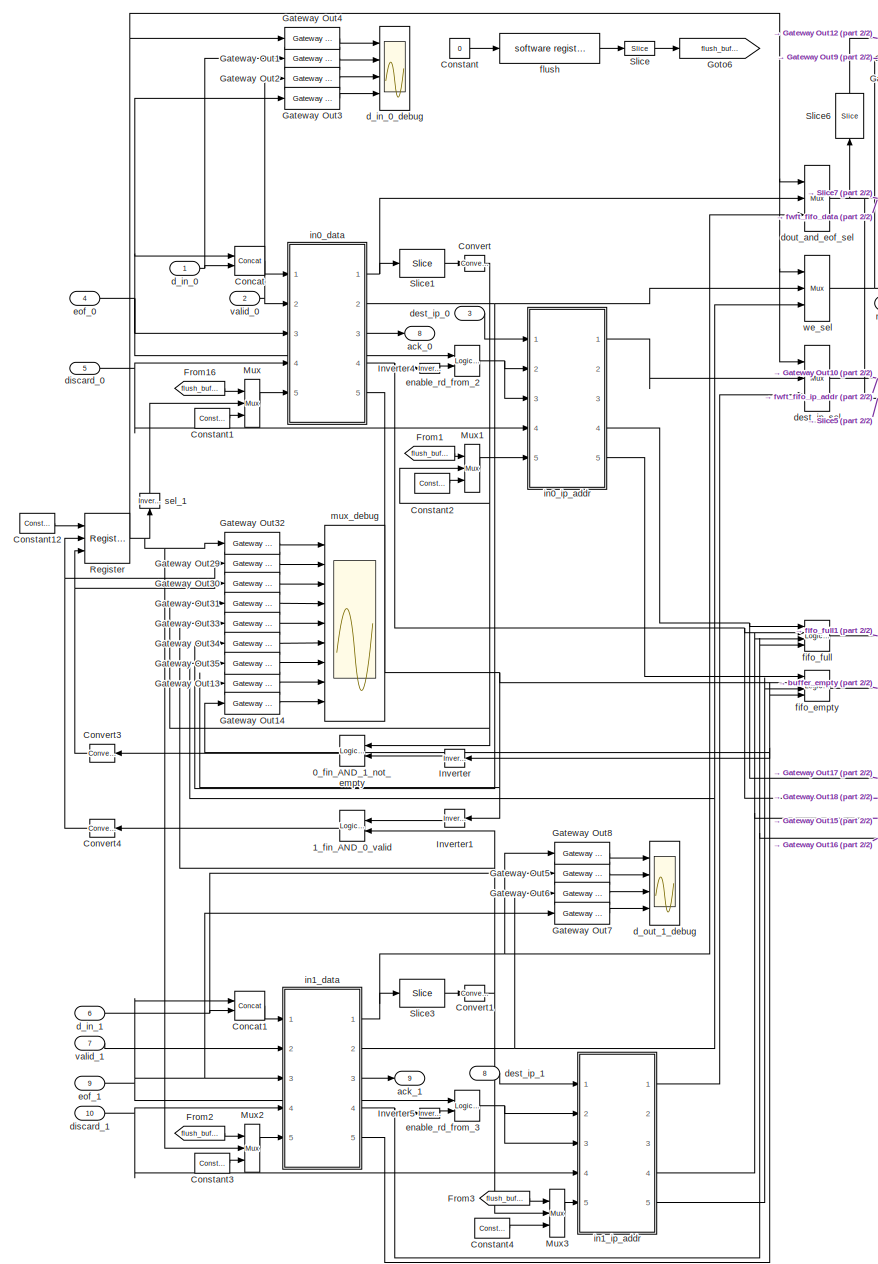
[diagram: mux_pack_it1 - part 1/2, left side, full height]
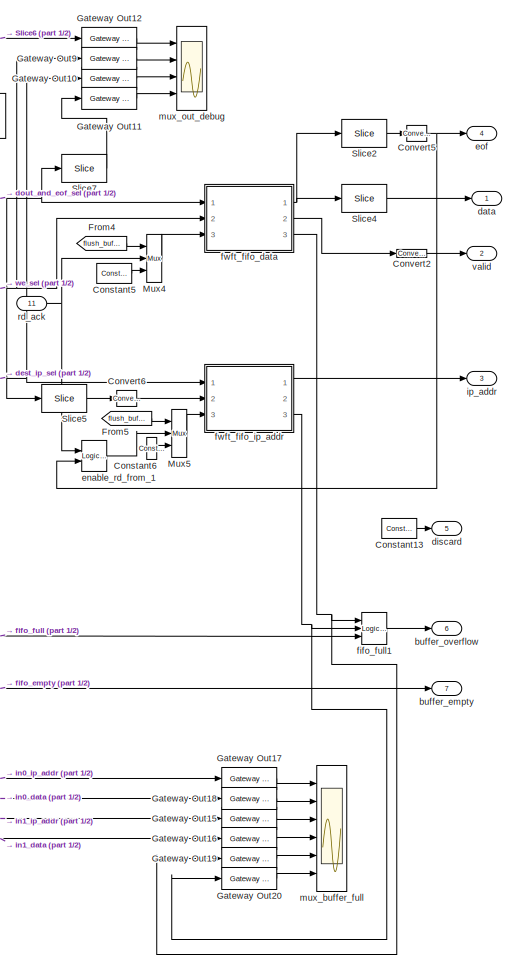
[diagram: mux_pack_it1 - part 2/2, right side, full height]
BLOCK [SubSystem] mux_pack_it1
  MaskCallbackString = |||
  MaskDescription = This block allows you to mux together two data streams to be sent to the 10GbE core
  MaskEnableString = on,on,on,on
  MaskIconFrame = on
  MaskIconOpaque = on
  MaskIconRotate = none
  MaskIconUnits = autoscale
  MaskPromptString = Input 0: Maximum single packet size (words)|Input 0: Minimum single packet size (words)|Input 1: Maximum single packet size (words)|Input 1: Minimum single packet size (words)
  MaskStyleString = edit,edit,edit,edit
  MaskTabNameString = ,,,
  MaskToolTipString = on,on,on,on
  MaskTunableValueString = off,off,on,on
  MaskType = mux_packets
  MaskValueString = 1500|50|1500|50
  MaskVarAliasString = ,,,
  MaskVariables = max_packet_size_0=@1;min_packet_size_0=@2;max_packet_size_1=@3;min_packet_size_1=@4;
  MaskVisibilityString = on,on,on,on
  MinAlgLoopOccurrences = off
  Ports = [11, 9]
  RTWSystemCode = Auto
  TreatAsAtomicUnit = off
BLOCK [Reference] mux_pack_it1/0_fin_AND_1_not_empty  REF=xbsIndex_r3/Logical
  Ports = [2, 1]
  SourceBlock = xbsIndex_r3/Logical
  SourceType = Xilinx Logical Block
  align_bp = on
  arith_type = Unsigned
  bin_pt = 2
  dbl_ovrd = off
  en = off
  explicit_period = on
  inputs = 2
  latency = 0
  logical_function = AND
  n_bits = 8
  period = 1
  precision = Full
  show_param = off
  xl_area = [0, 0, 0, 0, 0, 0, 0]
  xl_use_area = off
BLOCK [Reference] mux_pack_it1/1_fin_AND_0_valid  REF=xbsIndex_r3/Logical
  Ports = [2, 1]
  SourceBlock = xbsIndex_r3/Logical
  SourceType = Xilinx Logical Block
  align_bp = on
  arith_type = Unsigned
  bin_pt = 2
  dbl_ovrd = off
  en = off
  explicit_period = on
  inputs = 2
  latency = 0
  logical_function = AND
  n_bits = 8
  period = 1
  precision = Full
  show_param = off
  xl_area = [0, 0, 0, 0, 0, 0, 0]
  xl_use_area = off
BLOCK [Reference] mux_pack_it1/Concat  REF=xbsIndex_r3/Concat
  Ports = [2, 1]
  SourceBlock = xbsIndex_r3/Concat
  SourceType = Xilinx Bus Concatenator
  dbl_ovrd = off
  explicit_period = off
  num_inputs = 2
  period = 1
BLOCK [Reference] mux_pack_it1/Concat1  REF=xbsIndex_r3/Concat
  Ports = [2, 1]
  SourceBlock = xbsIndex_r3/Concat
  SourceType = Xilinx Bus Concatenator
  dbl_ovrd = off
  explicit_period = off
  num_inputs = 2
  period = 1
BLOCK [Constant] mux_pack_it1/Constant
  Value = 0
BLOCK [Reference] mux_pack_it1/Constant1  REF=xbsIndex_r3/Constant
  Ports = [0, 1]
  SourceBlock = xbsIndex_r3/Constant
  SourceType = Xilinx Constant Block
  arith_type = Boolean
  bin_pt = 0
  carry = CIN
  const = 1
  dbl_ovrd = off
  equ = P=C
  explicit_period = on
  inp1 = P
  inp2 = PCIN>>17
  iostate = 0
  n_bits = 1
  opr = +
  opselect = C
  period = 1
BLOCK [Reference] mux_pack_it1/Constant12  REF=xbsIndex_r3/Constant
  Ports = [0, 1]
  SourceBlock = xbsIndex_r3/Constant
  SourceType = Xilinx Constant Block
  arith_type = Boolean
  bin_pt = 0
  carry = CIN
  const = 1
  dbl_ovrd = off
  equ = P=C
  explicit_period = on
  inp1 = P
  inp2 = PCIN>>17
  iostate = 0
  n_bits = 1
  opr = +
  opselect = C
  period = 1
BLOCK [Reference] mux_pack_it1/Constant13  REF=xbsIndex_r3/Constant
  Ports = [0, 1]
  SourceBlock = xbsIndex_r3/Constant
  SourceType = Xilinx Constant Block
  arith_type = Boolean
  bin_pt = 0
  carry = CIN
  const = 0
  dbl_ovrd = off
  equ = P=C
  explicit_period = on
  inp1 = P
  inp2 = PCIN>>17
  iostate = 0
  n_bits = 1
  opr = +
  opselect = C
  period = 1
BLOCK [Reference] mux_pack_it1/Constant2  REF=xbsIndex_r3/Constant
  Ports = [0, 1]
  SourceBlock = xbsIndex_r3/Constant
  SourceType = Xilinx Constant Block
  arith_type = Boolean
  bin_pt = 0
  carry = CIN
  const = 1
  dbl_ovrd = off
  equ = P=C
  explicit_period = on
  inp1 = P
  inp2 = PCIN>>17
  iostate = 0
  n_bits = 1
  opr = +
  opselect = C
  period = 1
BLOCK [Reference] mux_pack_it1/Constant3  REF=xbsIndex_r3/Constant
  Ports = [0, 1]
  SourceBlock = xbsIndex_r3/Constant
  SourceType = Xilinx Constant Block
  arith_type = Boolean
  bin_pt = 0
  carry = CIN
  const = 1
  dbl_ovrd = off
  equ = P=C
  explicit_period = on
  inp1 = P
  inp2 = PCIN>>17
  iostate = 0
  n_bits = 1
  opr = +
  opselect = C
  period = 1
BLOCK [Reference] mux_pack_it1/Constant4  REF=xbsIndex_r3/Constant
  Ports = [0, 1]
  SourceBlock = xbsIndex_r3/Constant
  SourceType = Xilinx Constant Block
  arith_type = Boolean
  bin_pt = 0
  carry = CIN
  const = 1
  dbl_ovrd = off
  equ = P=C
  explicit_period = on
  inp1 = P
  inp2 = PCIN>>17
  iostate = 0
  n_bits = 1
  opr = +
  opselect = C
  period = 1
BLOCK [Reference] mux_pack_it1/Constant5  REF=xbsIndex_r3/Constant
  Ports = [0, 1]
  SourceBlock = xbsIndex_r3/Constant
  SourceType = Xilinx Constant Block
  arith_type = Boolean
  bin_pt = 0
  carry = CIN
  const = 1
  dbl_ovrd = off
  equ = P=C
  explicit_period = on
  inp1 = P
  inp2 = PCIN>>17
  iostate = 0
  n_bits = 1
  opr = +
  opselect = C
  period = 1
BLOCK [Reference] mux_pack_it1/Constant6  REF=xbsIndex_r3/Constant
  Ports = [0, 1]
  SourceBlock = xbsIndex_r3/Constant
  SourceType = Xilinx Constant Block
  arith_type = Boolean
  bin_pt = 0
  carry = CIN
  const = 1
  dbl_ovrd = off
  equ = P=C
  explicit_period = on
  inp1 = P
  inp2 = PCIN>>17
  iostate = 0
  n_bits = 1
  opr = +
  opselect = C
  period = 1
BLOCK [Reference] mux_pack_it1/Convert  REF=xbsIndex_r3/Convert
  Ports = [1, 1]
  SourceBlock = xbsIndex_r3/Convert
  SourceType = Xilinx Converter Block
  arith_type = Boolean
  bin_pt = 6
  dbl_ovrd = off
  explicit_period = off
  inserted_by_tool = off
  latency = 0
  n_bits = 8
  overflow = Wrap
  period = 1
  pipeline = off
  quantization = Truncate
  show_param = off
  xl_area = [0, 0, 0, 0, 0, 0, 0]
  xl_use_area = off
BLOCK [Reference] mux_pack_it1/Convert1  REF=xbsIndex_r3/Convert
  Ports = [1, 1]
  SourceBlock = xbsIndex_r3/Convert
  SourceType = Xilinx Converter Block
  arith_type = Boolean
  bin_pt = 6
  dbl_ovrd = off
  explicit_period = off
  inserted_by_tool = off
  latency = 0
  n_bits = 8
  overflow = Wrap
  period = 1
  pipeline = off
  quantization = Truncate
  show_param = off
  xl_area = [0, 0, 0, 0, 0, 0, 0]
  xl_use_area = off
BLOCK [Reference] mux_pack_it1/Convert2  REF=xbsIndex_r3/Convert
  Ports = [1, 1]
  SourceBlock = xbsIndex_r3/Convert
  SourceType = Xilinx Converter Block
  arith_type = Boolean
  bin_pt = 6
  dbl_ovrd = off
  explicit_period = off
  inserted_by_tool = off
  latency = 0
  n_bits = 8
  overflow = Wrap
  period = 1
  pipeline = off
  quantization = Truncate
  show_param = off
  xl_area = [0, 0, 0, 0, 0, 0, 0]
  xl_use_area = off
BLOCK [Reference] mux_pack_it1/Convert3  REF=xbsIndex_r3/Convert
  Ports = [1, 1]
  SourceBlock = xbsIndex_r3/Convert
  SourceType = Xilinx Converter Block
  arith_type = Boolean
  bin_pt = 6
  dbl_ovrd = off
  explicit_period = off
  inserted_by_tool = off
  latency = 0
  n_bits = 8
  overflow = Wrap
  period = 1
  pipeline = off
  quantization = Truncate
  show_param = off
  xl_area = [0, 0, 0, 0, 0, 0, 0]
  xl_use_area = off
BLOCK [Reference] mux_pack_it1/Convert4  REF=xbsIndex_r3/Convert
  Ports = [1, 1]
  SourceBlock = xbsIndex_r3/Convert
  SourceType = Xilinx Converter Block
  arith_type = Boolean
  bin_pt = 6
  dbl_ovrd = off
  explicit_period = off
  inserted_by_tool = off
  latency = 0
  n_bits = 8
  overflow = Wrap
  period = 1
  pipeline = off
  quantization = Truncate
  show_param = off
  xl_area = [0, 0, 0, 0, 0, 0, 0]
  xl_use_area = off
BLOCK [Reference] mux_pack_it1/Convert5  REF=xbsIndex_r3/Convert
  Ports = [1, 1]
  SourceBlock = xbsIndex_r3/Convert
  SourceType = Xilinx Converter Block
  arith_type = Boolean
  bin_pt = 6
  dbl_ovrd = off
  explicit_period = off
  inserted_by_tool = off
  latency = 0
  n_bits = 8
  overflow = Wrap
  period = 1
  pipeline = off
  quantization = Truncate
  show_param = off
  xl_area = [0, 0, 0, 0, 0, 0, 0]
  xl_use_area = off
BLOCK [Reference] mux_pack_it1/Convert6  REF=xbsIndex_r3/Convert
  Ports = [1, 1]
  SourceBlock = xbsIndex_r3/Convert
  SourceType = Xilinx Converter Block
  arith_type = Boolean
  bin_pt = 6
  dbl_ovrd = off
  explicit_period = off
  inserted_by_tool = off
  latency = 0
  n_bits = 8
  overflow = Wrap
  period = 1
  pipeline = off
  quantization = Truncate
  show_param = off
  xl_area = [0, 0, 0, 0, 0, 0, 0]
  xl_use_area = off
BLOCK [From] mux_pack_it1/From1
  CloseFcn = tagdialog Close
  GotoTag = flush_buffers
BLOCK [From] mux_pack_it1/From16
  CloseFcn = tagdialog Close
  GotoTag = flush_buffers
BLOCK [From] mux_pack_it1/From2
  CloseFcn = tagdialog Close
  GotoTag = flush_buffers
BLOCK [From] mux_pack_it1/From3
  CloseFcn = tagdialog Close
  GotoTag = flush_buffers
BLOCK [From] mux_pack_it1/From4
  CloseFcn = tagdialog Close
  GotoTag = flush_buffers
BLOCK [From] mux_pack_it1/From5
  CloseFcn = tagdialog Close
  GotoTag = flush_buffers
BLOCK [Reference] mux_pack_it1/Gateway Out1  REF=xbsIndex_r3/Gateway Out
  LOCs = {}
  Ports = [1, 1]
  SourceBlock = xbsIndex_r3/Gateway Out
  SourceType = Xilinx Gateway Out
  arith_type = Boolean
  bin_pt = 6
  hdl_port = on
  locs_specified = off
  nbits = 8
  needs_fixed_name = off
  output_type = Double
  overflow = Wrap
  quantization = Truncate
  show_param = off
  timing_constraint = None
  xl_area = [0, 0, 0, 0, 0, 0, 0]
  xl_use_area = off
BLOCK [Reference] mux_pack_it1/Gateway Out10  REF=xbsIndex_r3/Gateway Out
  LOCs = {}
  Ports = [1, 1]
  SourceBlock = xbsIndex_r3/Gateway Out
  SourceType = Xilinx Gateway Out
  arith_type = Boolean
  bin_pt = 6
  hdl_port = on
  locs_specified = off
  nbits = 8
  needs_fixed_name = off
  output_type = Double
  overflow = Wrap
  quantization = Truncate
  show_param = off
  timing_constraint = None
  xl_area = [0, 0, 0, 0, 0, 0, 0]
  xl_use_area = off
BLOCK [Reference] mux_pack_it1/Gateway Out11  REF=xbsIndex_r3/Gateway Out
  LOCs = {}
  Ports = [1, 1]
  SourceBlock = xbsIndex_r3/Gateway Out
  SourceType = Xilinx Gateway Out
  arith_type = Boolean
  bin_pt = 6
  hdl_port = on
  locs_specified = off
  nbits = 8
  needs_fixed_name = off
  output_type = Double
  overflow = Wrap
  quantization = Truncate
  show_param = off
  timing_constraint = None
  xl_area = [0, 0, 0, 0, 0, 0, 0]
  xl_use_area = off
BLOCK [Reference] mux_pack_it1/Gateway Out12  REF=xbsIndex_r3/Gateway Out
  LOCs = {}
  Ports = [1, 1]
  SourceBlock = xbsIndex_r3/Gateway Out
  SourceType = Xilinx Gateway Out
  arith_type = Boolean
  bin_pt = 6
  hdl_port = on
  locs_specified = off
  nbits = 8
  needs_fixed_name = off
  output_type = Double
  overflow = Wrap
  quantization = Truncate
  show_param = off
  timing_constraint = None
  xl_area = [0, 0, 0, 0, 0, 0, 0]
  xl_use_area = off
BLOCK [Reference] mux_pack_it1/Gateway Out13  REF=xbsIndex_r3/Gateway Out
  LOCs = {}
  Ports = [1, 1]
  SourceBlock = xbsIndex_r3/Gateway Out
  SourceType = Xilinx Gateway Out
  arith_type = Boolean
  bin_pt = 6
  hdl_port = on
  locs_specified = off
  nbits = 8
  needs_fixed_name = off
  output_type = Double
  overflow = Wrap
  quantization = Truncate
  show_param = off
  timing_constraint = None
  xl_area = [0, 0, 0, 0, 0, 0, 0]
  xl_use_area = off
BLOCK [Reference] mux_pack_it1/Gateway Out14  REF=xbsIndex_r3/Gateway Out
  LOCs = {}
  Ports = [1, 1]
  SourceBlock = xbsIndex_r3/Gateway Out
  SourceType = Xilinx Gateway Out
  arith_type = Boolean
  bin_pt = 6
  hdl_port = on
  locs_specified = off
  nbits = 8
  needs_fixed_name = off
  output_type = Double
  overflow = Wrap
  quantization = Truncate
  show_param = off
  timing_constraint = None
  xl_area = [0, 0, 0, 0, 0, 0, 0]
  xl_use_area = off
BLOCK [Reference] mux_pack_it1/Gateway Out15  REF=xbsIndex_r3/Gateway Out
  LOCs = {}
  Ports = [1, 1]
  SourceBlock = xbsIndex_r3/Gateway Out
  SourceType = Xilinx Gateway Out
  arith_type = Boolean
  bin_pt = 6
  hdl_port = on
  locs_specified = off
  nbits = 8
  needs_fixed_name = off
  output_type = Double
  overflow = Wrap
  quantization = Truncate
  show_param = off
  timing_constraint = None
  xl_area = [0, 0, 0, 0, 0, 0, 0]
  xl_use_area = off
BLOCK [Reference] mux_pack_it1/Gateway Out16  REF=xbsIndex_r3/Gateway Out
  LOCs = {}
  Ports = [1, 1]
  SourceBlock = xbsIndex_r3/Gateway Out
  SourceType = Xilinx Gateway Out
  arith_type = Boolean
  bin_pt = 6
  hdl_port = on
  locs_specified = off
  nbits = 8
  needs_fixed_name = off
  output_type = Double
  overflow = Wrap
  quantization = Truncate
  show_param = off
  timing_constraint = None
  xl_area = [0, 0, 0, 0, 0, 0, 0]
  xl_use_area = off
BLOCK [Reference] mux_pack_it1/Gateway Out17  REF=xbsIndex_r3/Gateway Out
  LOCs = {}
  Ports = [1, 1]
  SourceBlock = xbsIndex_r3/Gateway Out
  SourceType = Xilinx Gateway Out
  arith_type = Boolean
  bin_pt = 6
  hdl_port = on
  locs_specified = off
  nbits = 8
  needs_fixed_name = off
  output_type = Double
  overflow = Wrap
  quantization = Truncate
  show_param = off
  timing_constraint = None
  xl_area = [0, 0, 0, 0, 0, 0, 0]
  xl_use_area = off
BLOCK [Reference] mux_pack_it1/Gateway Out18  REF=xbsIndex_r3/Gateway Out
  LOCs = {}
  Ports = [1, 1]
  SourceBlock = xbsIndex_r3/Gateway Out
  SourceType = Xilinx Gateway Out
  arith_type = Boolean
  bin_pt = 6
  hdl_port = on
  locs_specified = off
  nbits = 8
  needs_fixed_name = off
  output_type = Double
  overflow = Wrap
  quantization = Truncate
  show_param = off
  timing_constraint = None
  xl_area = [0, 0, 0, 0, 0, 0, 0]
  xl_use_area = off
BLOCK [Reference] mux_pack_it1/Gateway Out19  REF=xbsIndex_r3/Gateway Out
  LOCs = {}
  Ports = [1, 1]
  SourceBlock = xbsIndex_r3/Gateway Out
  SourceType = Xilinx Gateway Out
  arith_type = Boolean
  bin_pt = 6
  hdl_port = on
  locs_specified = off
  nbits = 8
  needs_fixed_name = off
  output_type = Double
  overflow = Wrap
  quantization = Truncate
  show_param = off
  timing_constraint = None
  xl_area = [0, 0, 0, 0, 0, 0, 0]
  xl_use_area = off
BLOCK [Reference] mux_pack_it1/Gateway Out2  REF=xbsIndex_r3/Gateway Out
  LOCs = {}
  Ports = [1, 1]
  SourceBlock = xbsIndex_r3/Gateway Out
  SourceType = Xilinx Gateway Out
  arith_type = Boolean
  bin_pt = 6
  hdl_port = on
  locs_specified = off
  nbits = 8
  needs_fixed_name = off
  output_type = Double
  overflow = Wrap
  quantization = Truncate
  show_param = off
  timing_constraint = None
  xl_area = [0, 0, 0, 0, 0, 0, 0]
  xl_use_area = off
BLOCK [Reference] mux_pack_it1/Gateway Out20  REF=xbsIndex_r3/Gateway Out
  LOCs = {}
  Ports = [1, 1]
  SourceBlock = xbsIndex_r3/Gateway Out
  SourceType = Xilinx Gateway Out
  arith_type = Boolean
  bin_pt = 6
  hdl_port = on
  locs_specified = off
  nbits = 8
  needs_fixed_name = off
  output_type = Double
  overflow = Wrap
  quantization = Truncate
  show_param = off
  timing_constraint = None
  xl_area = [0, 0, 0, 0, 0, 0, 0]
  xl_use_area = off
BLOCK [Reference] mux_pack_it1/Gateway Out29  REF=xbsIndex_r3/Gateway Out
  LOCs = {}
  Ports = [1, 1]
  SourceBlock = xbsIndex_r3/Gateway Out
  SourceType = Xilinx Gateway Out
  arith_type = Boolean
  bin_pt = 6
  hdl_port = on
  locs_specified = off
  nbits = 8
  needs_fixed_name = off
  output_type = Double
  overflow = Wrap
  quantization = Truncate
  show_param = off
  timing_constraint = None
  xl_area = [0, 0, 0, 0, 0, 0, 0]
  xl_use_area = off
BLOCK [Reference] mux_pack_it1/Gateway Out3  REF=xbsIndex_r3/Gateway Out
  LOCs = {}
  Ports = [1, 1]
  SourceBlock = xbsIndex_r3/Gateway Out
  SourceType = Xilinx Gateway Out
  arith_type = Boolean
  bin_pt = 6
  hdl_port = on
  locs_specified = off
  nbits = 8
  needs_fixed_name = off
  output_type = Double
  overflow = Wrap
  quantization = Truncate
  show_param = off
  timing_constraint = None
  xl_area = [0, 0, 0, 0, 0, 0, 0]
  xl_use_area = off
BLOCK [Reference] mux_pack_it1/Gateway Out30  REF=xbsIndex_r3/Gateway Out
  LOCs = {}
  Ports = [1, 1]
  SourceBlock = xbsIndex_r3/Gateway Out
  SourceType = Xilinx Gateway Out
  arith_type = Boolean
  bin_pt = 6
  hdl_port = on
  locs_specified = off
  nbits = 8
  needs_fixed_name = off
  output_type = Double
  overflow = Wrap
  quantization = Truncate
  show_param = off
  timing_constraint = None
  xl_area = [0, 0, 0, 0, 0, 0, 0]
  xl_use_area = off
BLOCK [Reference] mux_pack_it1/Gateway Out31  REF=xbsIndex_r3/Gateway Out
  LOCs = {}
  Ports = [1, 1]
  SourceBlock = xbsIndex_r3/Gateway Out
  SourceType = Xilinx Gateway Out
  arith_type = Boolean
  bin_pt = 6
  hdl_port = on
  locs_specified = off
  nbits = 8
  needs_fixed_name = off
  output_type = Double
  overflow = Wrap
  quantization = Truncate
  show_param = off
  timing_constraint = None
  xl_area = [0, 0, 0, 0, 0, 0, 0]
  xl_use_area = off
BLOCK [Reference] mux_pack_it1/Gateway Out32  REF=xbsIndex_r3/Gateway Out
  LOCs = {}
  Ports = [1, 1]
  SourceBlock = xbsIndex_r3/Gateway Out
  SourceType = Xilinx Gateway Out
  arith_type = Boolean
  bin_pt = 6
  hdl_port = on
  locs_specified = off
  nbits = 8
  needs_fixed_name = off
  output_type = Double
  overflow = Wrap
  quantization = Truncate
  show_param = off
  timing_constraint = None
  xl_area = [0, 0, 0, 0, 0, 0, 0]
  xl_use_area = off
BLOCK [Reference] mux_pack_it1/Gateway Out33  REF=xbsIndex_r3/Gateway Out
  LOCs = {}
  Ports = [1, 1]
  SourceBlock = xbsIndex_r3/Gateway Out
  SourceType = Xilinx Gateway Out
  arith_type = Boolean
  bin_pt = 6
  hdl_port = on
  locs_specified = off
  nbits = 8
  needs_fixed_name = off
  output_type = Double
  overflow = Wrap
  quantization = Truncate
  show_param = off
  timing_constraint = None
  xl_area = [0, 0, 0, 0, 0, 0, 0]
  xl_use_area = off
BLOCK [Reference] mux_pack_it1/Gateway Out34  REF=xbsIndex_r3/Gateway Out
  LOCs = {}
  Ports = [1, 1]
  SourceBlock = xbsIndex_r3/Gateway Out
  SourceType = Xilinx Gateway Out
  arith_type = Boolean
  bin_pt = 6
  hdl_port = on
  locs_specified = off
  nbits = 8
  needs_fixed_name = off
  output_type = Double
  overflow = Wrap
  quantization = Truncate
  show_param = off
  timing_constraint = None
  xl_area = [0, 0, 0, 0, 0, 0, 0]
  xl_use_area = off
BLOCK [Reference] mux_pack_it1/Gateway Out35  REF=xbsIndex_r3/Gateway Out
  LOCs = {}
  Ports = [1, 1]
  SourceBlock = xbsIndex_r3/Gateway Out
  SourceType = Xilinx Gateway Out
  arith_type = Boolean
  bin_pt = 6
  hdl_port = on
  locs_specified = off
  nbits = 8
  needs_fixed_name = off
  output_type = Double
  overflow = Wrap
  quantization = Truncate
  show_param = off
  timing_constraint = None
  xl_area = [0, 0, 0, 0, 0, 0, 0]
  xl_use_area = off
BLOCK [Reference] mux_pack_it1/Gateway Out4  REF=xbsIndex_r3/Gateway Out
  LOCs = {}
  Ports = [1, 1]
  SourceBlock = xbsIndex_r3/Gateway Out
  SourceType = Xilinx Gateway Out
  arith_type = Boolean
  bin_pt = 6
  hdl_port = on
  locs_specified = off
  nbits = 8
  needs_fixed_name = off
  output_type = Double
  overflow = Wrap
  quantization = Truncate
  show_param = off
  timing_constraint = None
  xl_area = [0, 0, 0, 0, 0, 0, 0]
  xl_use_area = off
BLOCK [Reference] mux_pack_it1/Gateway Out5  REF=xbsIndex_r3/Gateway Out
  LOCs = {}
  Ports = [1, 1]
  SourceBlock = xbsIndex_r3/Gateway Out
  SourceType = Xilinx Gateway Out
  arith_type = Boolean
  bin_pt = 6
  hdl_port = on
  locs_specified = off
  nbits = 8
  needs_fixed_name = off
  output_type = Double
  overflow = Wrap
  quantization = Truncate
  show_param = off
  timing_constraint = None
  xl_area = [0, 0, 0, 0, 0, 0, 0]
  xl_use_area = off
BLOCK [Reference] mux_pack_it1/Gateway Out6  REF=xbsIndex_r3/Gateway Out
  LOCs = {}
  Ports = [1, 1]
  SourceBlock = xbsIndex_r3/Gateway Out
  SourceType = Xilinx Gateway Out
  arith_type = Boolean
  bin_pt = 6
  hdl_port = on
  locs_specified = off
  nbits = 8
  needs_fixed_name = off
  output_type = Double
  overflow = Wrap
  quantization = Truncate
  show_param = off
  timing_constraint = None
  xl_area = [0, 0, 0, 0, 0, 0, 0]
  xl_use_area = off
BLOCK [Reference] mux_pack_it1/Gateway Out7  REF=xbsIndex_r3/Gateway Out
  LOCs = {}
  Ports = [1, 1]
  SourceBlock = xbsIndex_r3/Gateway Out
  SourceType = Xilinx Gateway Out
  arith_type = Boolean
  bin_pt = 6
  hdl_port = on
  locs_specified = off
  nbits = 8
  needs_fixed_name = off
  output_type = Double
  overflow = Wrap
  quantization = Truncate
  show_param = off
  timing_constraint = None
  xl_area = [0, 0, 0, 0, 0, 0, 0]
  xl_use_area = off
BLOCK [Reference] mux_pack_it1/Gateway Out8  REF=xbsIndex_r3/Gateway Out
  LOCs = {}
  Ports = [1, 1]
  SourceBlock = xbsIndex_r3/Gateway Out
  SourceType = Xilinx Gateway Out
  arith_type = Boolean
  bin_pt = 6
  hdl_port = on
  locs_specified = off
  nbits = 8
  needs_fixed_name = off
  output_type = Double
  overflow = Wrap
  quantization = Truncate
  show_param = off
  timing_constraint = None
  xl_area = [0, 0, 0, 0, 0, 0, 0]
  xl_use_area = off
BLOCK [Reference] mux_pack_it1/Gateway Out9  REF=xbsIndex_r3/Gateway Out
  LOCs = {}
  Ports = [1, 1]
  SourceBlock = xbsIndex_r3/Gateway Out
  SourceType = Xilinx Gateway Out
  arith_type = Boolean
  bin_pt = 6
  hdl_port = on
  locs_specified = off
  nbits = 8
  needs_fixed_name = off
  output_type = Double
  overflow = Wrap
  quantization = Truncate
  show_param = off
  timing_constraint = None
  xl_area = [0, 0, 0, 0, 0, 0, 0]
  xl_use_area = off
BLOCK [Goto] mux_pack_it1/Goto6
  GotoTag = flush_buffers
  TagVisibility = local
BLOCK [Reference] mux_pack_it1/Inverter  REF=xbsIndex_r3/Inverter
  Ports = [1, 1]
  SourceBlock = xbsIndex_r3/Inverter
  SourceType = Xilinx Inverter
  dbl_ovrd = off
  en = off
  explicit_period = off
  latency = 0
  period = 1
  show_param = off
  xl_area = [0, 0, 0, 0, 0, 0, 0]
  xl_use_area = off
BLOCK [Reference] mux_pack_it1/Inverter1  REF=xbsIndex_r3/Inverter
  Ports = [1, 1]
  SourceBlock = xbsIndex_r3/Inverter
  SourceType = Xilinx Inverter
  dbl_ovrd = off
  en = off
  explicit_period = off
  latency = 0
  period = 1
  show_param = off
  xl_area = [0, 0, 0, 0, 0, 0, 0]
  xl_use_area = off
BLOCK [Reference] mux_pack_it1/Inverter4  REF=xbsIndex_r3/Inverter
  Ports = [1, 1]
  SourceBlock = xbsIndex_r3/Inverter
  SourceType = Xilinx Inverter
  dbl_ovrd = off
  en = off
  explicit_period = off
  latency = 0
  period = 1
  show_param = off
  xl_area = [0, 0, 0, 0, 0, 0, 0]
  xl_use_area = off
BLOCK [Reference] mux_pack_it1/Inverter5  REF=xbsIndex_r3/Inverter
  Ports = [1, 1]
  SourceBlock = xbsIndex_r3/Inverter
  SourceType = Xilinx Inverter
  dbl_ovrd = off
  en = off
  explicit_period = off
  latency = 0
  period = 1
  show_param = off
  xl_area = [0, 0, 0, 0, 0, 0, 0]
  xl_use_area = off
BLOCK [Reference] mux_pack_it1/Mux  REF=xbsIndex_r3/Mux
  Ports = [3, 1]
  SourceBlock = xbsIndex_r3/Mux
  SourceType = Xilinx Multiplexer Block
  arith_type = Signed  (2's comp)
  bin_pt = 2
  dbl_ovrd = off
  en = off
  explicit_period = on
  gen_core = off
  inputs = 2
  latency = 0
  mux_type = off
  n_bits = 8
  overflow = Wrap
  period = 1
  precision = Full
  quantization = Truncate
  show_param = off
  use_rpm = off
  xl_area = [0, 0, 0, 0, 0, 0, 0]
  xl_use_area = off
BLOCK [Reference] mux_pack_it1/Mux1  REF=xbsIndex_r3/Mux
  Ports = [3, 1]
  SourceBlock = xbsIndex_r3/Mux
  SourceType = Xilinx Multiplexer Block
  arith_type = Signed  (2's comp)
  bin_pt = 2
  dbl_ovrd = off
  en = off
  explicit_period = on
  gen_core = off
  inputs = 2
  latency = 0
  mux_type = off
  n_bits = 8
  overflow = Wrap
  period = 1
  precision = Full
  quantization = Truncate
  show_param = off
  use_rpm = off
  xl_area = [0, 0, 0, 0, 0, 0, 0]
  xl_use_area = off
BLOCK [Reference] mux_pack_it1/Mux2  REF=xbsIndex_r3/Mux
  Ports = [3, 1]
  SourceBlock = xbsIndex_r3/Mux
  SourceType = Xilinx Multiplexer Block
  arith_type = Signed  (2's comp)
  bin_pt = 2
  dbl_ovrd = off
  en = off
  explicit_period = on
  gen_core = off
  inputs = 2
  latency = 0
  mux_type = off
  n_bits = 8
  overflow = Wrap
  period = 1
  precision = Full
  quantization = Truncate
  show_param = off
  use_rpm = off
  xl_area = [0, 0, 0, 0, 0, 0, 0]
  xl_use_area = off
BLOCK [Reference] mux_pack_it1/Mux3  REF=xbsIndex_r3/Mux
  Ports = [3, 1]
  SourceBlock = xbsIndex_r3/Mux
  SourceType = Xilinx Multiplexer Block
  arith_type = Signed  (2's comp)
  bin_pt = 2
  dbl_ovrd = off
  en = off
  explicit_period = on
  gen_core = off
  inputs = 2
  latency = 0
  mux_type = off
  n_bits = 8
  overflow = Wrap
  period = 1
  precision = Full
  quantization = Truncate
  show_param = off
  use_rpm = off
  xl_area = [0, 0, 0, 0, 0, 0, 0]
  xl_use_area = off
BLOCK [Reference] mux_pack_it1/Mux4  REF=xbsIndex_r3/Mux
  Ports = [3, 1]
  SourceBlock = xbsIndex_r3/Mux
  SourceType = Xilinx Multiplexer Block
  arith_type = Signed  (2's comp)
  bin_pt = 2
  dbl_ovrd = off
  en = off
  explicit_period = on
  gen_core = off
  inputs = 2
  latency = 0
  mux_type = off
  n_bits = 8
  overflow = Wrap
  period = 1
  precision = Full
  quantization = Truncate
  show_param = off
  use_rpm = off
  xl_area = [0, 0, 0, 0, 0, 0, 0]
  xl_use_area = off
BLOCK [Reference] mux_pack_it1/Mux5  REF=xbsIndex_r3/Mux
  Ports = [3, 1]
  SourceBlock = xbsIndex_r3/Mux
  SourceType = Xilinx Multiplexer Block
  arith_type = Signed  (2's comp)
  bin_pt = 2
  dbl_ovrd = off
  en = off
  explicit_period = on
  gen_core = off
  inputs = 2
  latency = 0
  mux_type = off
  n_bits = 8
  overflow = Wrap
  period = 1
  precision = Full
  quantization = Truncate
  show_param = off
  use_rpm = off
  xl_area = [0, 0, 0, 0, 0, 0, 0]
  xl_use_area = off
BLOCK [Reference] mux_pack_it1/Register  REF=xbsIndex_r3/Register
  Ports = [3, 1]
  SourceBlock = xbsIndex_r3/Register
  SourceType = Xilinx Register Block
  dbl_ovrd = off
  en = on
  explicit_period = on
  init = 0
  out_en = off
  period = 1
  reg_only_valid = off
  rst = on
  show_param = off
  xl_area = [0, 0, 0, 0, 0, 0, 0]
  xl_use_area = off
BLOCK [Reference] mux_pack_it1/Slice  REF=xbsIndex_r3/Slice
  Ports = [1, 1]
  SourceBlock = xbsIndex_r3/Slice
  SourceType = Xilinx Slice Block
  base0 = LSB of Input
  base1 = MSB of Input
  bit0 = 0
  bit1 = 0
  boolean_output = on
  dbl_ovrd = off
  explicit_period = off
  mode = Lower Bit Location + Width
  nbits = 1
  period = 1
BLOCK [Reference] mux_pack_it1/Slice1  REF=xbsIndex_r3/Slice
  Ports = [1, 1]
  SourceBlock = xbsIndex_r3/Slice
  SourceType = Xilinx Slice Block
  base0 = LSB of Input
  base1 = MSB of Input
  bit0 = 0
  bit1 = 0
  boolean_output = off
  dbl_ovrd = off
  explicit_period = off
  mode = Upper Bit Location + Width
  nbits = 1
  period = 1
BLOCK [Reference] mux_pack_it1/Slice2  REF=xbsIndex_r3/Slice
  Ports = [1, 1]
  SourceBlock = xbsIndex_r3/Slice
  SourceType = Xilinx Slice Block
  base0 = LSB of Input
  base1 = MSB of Input
  bit0 = 0
  bit1 = 0
  boolean_output = off
  dbl_ovrd = off
  explicit_period = off
  mode = Upper Bit Location + Width
  nbits = 1
  period = 1
BLOCK [Reference] mux_pack_it1/Slice3  REF=xbsIndex_r3/Slice
  Ports = [1, 1]
  SourceBlock = xbsIndex_r3/Slice
  SourceType = Xilinx Slice Block
  base0 = LSB of Input
  base1 = MSB of Input
  bit0 = 0
  bit1 = 0
  boolean_output = off
  dbl_ovrd = off
  explicit_period = off
  mode = Upper Bit Location + Width
  nbits = 1
  period = 1
BLOCK [Reference] mux_pack_it1/Slice4  REF=xbsIndex_r3/Slice
  Ports = [1, 1]
  SourceBlock = xbsIndex_r3/Slice
  SourceType = Xilinx Slice Block
  base0 = LSB of Input
  base1 = MSB of Input
  bit0 = 0
  bit1 = 0
  boolean_output = off
  dbl_ovrd = off
  explicit_period = off
  mode = Lower Bit Location + Width
  nbits = 64
  period = 1
BLOCK [Reference] mux_pack_it1/Slice5  REF=xbsIndex_r3/Slice
  Ports = [1, 1]
  SourceBlock = xbsIndex_r3/Slice
  SourceType = Xilinx Slice Block
  base0 = LSB of Input
  base1 = MSB of Input
  bit0 = 0
  bit1 = 0
  boolean_output = off
  dbl_ovrd = off
  explicit_period = off
  mode = Upper Bit Location + Width
  nbits = 1
  period = 1
BLOCK [Reference] mux_pack_it1/Slice6  REF=xbsIndex_r3/Slice
  Ports = [1, 1]
  SourceBlock = xbsIndex_r3/Slice
  SourceType = Xilinx Slice Block
  base0 = LSB of Input
  base1 = MSB of Input
  bit0 = 0
  bit1 = 0
  boolean_output = off
  dbl_ovrd = off
  explicit_period = off
  mode = Lower Bit Location + Width
  nbits = 64
  period = 1
BLOCK [Reference] mux_pack_it1/Slice7  REF=xbsIndex_r3/Slice
  Ports = [1, 1]
  SourceBlock = xbsIndex_r3/Slice
  SourceType = Xilinx Slice Block
  base0 = LSB of Input
  base1 = MSB of Input
  bit0 = 0
  bit1 = 0
  boolean_output = off
  dbl_ovrd = off
  explicit_period = off
  mode = Upper Bit Location + Width
  nbits = 1
  period = 1
BLOCK [Outport] mux_pack_it1/ack_0
  BusOutputAsStruct = off
  IconDisplay = Port number
  Port = 8
BLOCK [Outport] mux_pack_it1/ack_1
  BusOutputAsStruct = off
  IconDisplay = Port number
  Port = 9
BLOCK [Outport] mux_pack_it1/buffer_empty
  BusOutputAsStruct = off
  IconDisplay = Port number
  Port = 7
BLOCK [Outport] mux_pack_it1/buffer_overflow
  BusOutputAsStruct = off
  IconDisplay = Port number
  Port = 6
BLOCK [Inport] mux_pack_it1/d_in_0
  IconDisplay = Port number
  LatchInput = off
  Port = 1
BLOCK [Scope] mux_pack_it1/d_in_0_debug
  DataFormat = StructureWithTime
  LimitDataPoints = off
  NumInputPorts = 4
  Ports = [4]
  SaveName = ScopeData2
  YMax = 1400~1~1~1
  YMin = 100~0~0~-1
  ZoomMode = xonly
BLOCK [Inport] mux_pack_it1/d_in_1
  IconDisplay = Port number
  LatchInput = off
  Port = 6
BLOCK [Scope] mux_pack_it1/d_out_1_debug
  DataFormat = StructureWithTime
  LimitDataPoints = off
  NumInputPorts = 4
  Ports = [4]
  SaveName = ScopeData3
  YMax = 1000~1~1~1
  YMin = 100~0~0~-1
  ZoomMode = yonly
BLOCK [Outport] mux_pack_it1/data
  BusOutputAsStruct = off
  IconDisplay = Port number
BLOCK [Inport] mux_pack_it1/dest_ip_0
  IconDisplay = Port number
  LatchInput = off
  Port = 3
BLOCK [Inport] mux_pack_it1/dest_ip_1
  IconDisplay = Port number
  LatchInput = off
  Port = 8
BLOCK [Reference] mux_pack_it1/dest_ip_sel  REF=xbsIndex_r3/Mux
  Ports = [3, 1]
  SourceBlock = xbsIndex_r3/Mux
  SourceType = Xilinx Multiplexer Block
  arith_type = Signed  (2's comp)
  bin_pt = 2
  dbl_ovrd = off
  en = off
  explicit_period = off
  gen_core = off
  inputs = 2
  latency = 0
  mux_type = off
  n_bits = 8
  overflow = Wrap
  period = 1
  precision = Full
  quantization = Truncate
  show_param = off
  use_rpm = off
  xl_area = [0, 0, 0, 0, 0, 0, 0]
  xl_use_area = off
BLOCK [Outport] mux_pack_it1/discard
  BusOutputAsStruct = off
  IconDisplay = Port number
  Port = 5
BLOCK [Inport] mux_pack_it1/discard_0
  IconDisplay = Port number
  LatchInput = off
  Port = 5
BLOCK [Inport] mux_pack_it1/discard_1
  IconDisplay = Port number
  LatchInput = off
  Port = 10
BLOCK [Reference] mux_pack_it1/dout_and_eof_sel  REF=xbsIndex_r3/Mux
  Ports = [3, 1]
  SourceBlock = xbsIndex_r3/Mux
  SourceType = Xilinx Multiplexer Block
  arith_type = Signed  (2's comp)
  bin_pt = 2
  dbl_ovrd = off
  en = off
  explicit_period = off
  gen_core = off
  inputs = 2
  latency = 0
  mux_type = off
  n_bits = 8
  overflow = Wrap
  period = 1
  precision = Full
  quantization = Truncate
  show_param = off
  use_rpm = off
  xl_area = [0, 0, 0, 0, 0, 0, 0]
  xl_use_area = off
BLOCK [Reference] mux_pack_it1/enable_rd_from_1  REF=xbsIndex_r3/Logical
  Ports = [2, 1]
  SourceBlock = xbsIndex_r3/Logical
  SourceType = Xilinx Logical Block
  align_bp = on
  arith_type = Unsigned
  bin_pt = 2
  dbl_ovrd = off
  en = off
  explicit_period = off
  inputs = 2
  latency = 0
  logical_function = AND
  n_bits = 8
  period = 1
  precision = Full
  show_param = off
  xl_area = [0, 0, 0, 0, 0, 0, 0]
  xl_use_area = off
BLOCK [Reference] mux_pack_it1/enable_rd_from_2  REF=xbsIndex_r3/Logical
  Ports = [2, 1]
  SourceBlock = xbsIndex_r3/Logical
  SourceType = Xilinx Logical Block
  align_bp = on
  arith_type = Unsigned
  bin_pt = 2
  dbl_ovrd = off
  en = off
  explicit_period = off
  inputs = 2
  latency = 0
  logical_function = AND
  n_bits = 8
  period = 1
  precision = Full
  show_param = off
  xl_area = [0, 0, 0, 0, 0, 0, 0]
  xl_use_area = off
BLOCK [Reference] mux_pack_it1/enable_rd_from_3  REF=xbsIndex_r3/Logical
  Ports = [2, 1]
  SourceBlock = xbsIndex_r3/Logical
  SourceType = Xilinx Logical Block
  align_bp = on
  arith_type = Unsigned
  bin_pt = 2
  dbl_ovrd = off
  en = off
  explicit_period = off
  inputs = 2
  latency = 0
  logical_function = AND
  n_bits = 8
  period = 1
  precision = Full
  show_param = off
  xl_area = [0, 0, 0, 0, 0, 0, 0]
  xl_use_area = off
BLOCK [Outport] mux_pack_it1/eof
  BusOutputAsStruct = off
  IconDisplay = Port number
  Port = 4
BLOCK [Inport] mux_pack_it1/eof_0
  IconDisplay = Port number
  LatchInput = off
  Port = 4
BLOCK [Inport] mux_pack_it1/eof_1
  IconDisplay = Port number
  LatchInput = off
  Port = 9
BLOCK [Reference] mux_pack_it1/fifo_empty  REF=xbsIndex_r3/Logical
  Ports = [4, 1]
  SourceBlock = xbsIndex_r3/Logical
  SourceType = Xilinx Logical Block
  align_bp = on
  arith_type = Unsigned
  bin_pt = 2
  dbl_ovrd = off
  en = off
  explicit_period = off
  inputs = 4
  latency = 0
  logical_function = AND
  n_bits = 8
  period = 1
  precision = Full
  show_param = off
  xl_area = [0, 0, 0, 0, 0, 0, 0]
  xl_use_area = off
BLOCK [Reference] mux_pack_it1/fifo_full  REF=xbsIndex_r3/Logical
  Ports = [4, 1]
  SourceBlock = xbsIndex_r3/Logical
  SourceType = Xilinx Logical Block
  align_bp = on
  arith_type = Unsigned
  bin_pt = 2
  dbl_ovrd = off
  en = off
  explicit_period = off
  inputs = 4
  latency = 0
  logical_function = OR
  n_bits = 8
  period = 1
  precision = Full
  show_param = off
  xl_area = [0, 0, 0, 0, 0, 0, 0]
  xl_use_area = off
BLOCK [Reference] mux_pack_it1/fifo_full1  REF=xbsIndex_r3/Logical
  Ports = [3, 1]
  SourceBlock = xbsIndex_r3/Logical
  SourceType = Xilinx Logical Block
  align_bp = on
  arith_type = Unsigned
  bin_pt = 2
  dbl_ovrd = off
  en = off
  explicit_period = off
  inputs = 3
  latency = 0
  logical_function = OR
  n_bits = 8
  period = 1
  precision = Full
  show_param = off
  xl_area = [0, 0, 0, 0, 0, 0, 0]
  xl_use_area = off
BLOCK [Reference] mux_pack_it1/flush  REF=xps_library/software register  (lib defined in mdl_00b5cec29cd0, mdl_02ab6ecaa3d1, +5 more)
  Ports = [1, 1]
  ShowPortLabels = on
  SourceBlock = xps_library/software register
  Tag = xps:sw_reg
  arith_type = Unsigned
  bin_pt = 0
  bitwidth = 32
  gw_name = test_dram_sim_mux_pack_it1_flush_user_data_out
  io_dir = From Processor
  sample_period = 1
BLOCK [SubSystem] mux_pack_it1/fwft_fifo_data
  MinAlgLoopOccurrences = off
  Ports = [3, 3]
  RTWSystemCode = Auto
  TreatAsAtomicUnit = off
BLOCK [Reference] mux_pack_it1/fwft_fifo_data/Convert  REF=xbsIndex_r3/Convert
  Ports = [1, 1]
  SourceBlock = xbsIndex_r3/Convert
  SourceType = Xilinx Converter Block
  arith_type = Boolean
  bin_pt = 0
  dbl_ovrd = off
  explicit_period = off
  inserted_by_tool = off
  latency = 0
  n_bits = 1
  overflow = Wrap
  period = 1
  pipeline = off
  quantization = Truncate
  show_param = off
  xl_area = [0, 0, 0, 0, 0, 0, 0]
  xl_use_area = off
BLOCK [Reference] mux_pack_it1/fwft_fifo_data/FIFO  REF=xbsIndex_r3/FIFO
  Ports = [3, 4]
  SourceBlock = xbsIndex_r3/FIFO
  SourceType = Xilinx Synchronous FIFO
  almost_empty_offset = 6
  almost_full_offset = 6
  dbl_ovrd = off
  depth = 1K
  en = off
  explicit_period = off
  gen_core = off
  init_zero = on
  mem_type = Block RAM
  percent_nbits = 1
  period = 1
  rst = off
  show_param = off
  store_only_valid = on
  use_almost_empty = off
  use_almost_full = off
  xl_area = [0, 0, 0, 0, 0, 0, 0]
  xl_use_area = off
BLOCK [Reference] mux_pack_it1/fwft_fifo_data/Inverter1  REF=xbsIndex_r3/Inverter
  Ports = [1, 1]
  SourceBlock = xbsIndex_r3/Inverter
  SourceType = Xilinx Inverter
  dbl_ovrd = off
  en = off
  explicit_period = off
  latency = 0
  period = 1
  show_param = off
  xl_area = [0, 0, 0, 0, 0, 0, 0]
  xl_use_area = off
BLOCK [Reference] mux_pack_it1/fwft_fifo_data/Logical1  REF=xbsIndex_r3/Logical
  Ports = [2, 1]
  SourceBlock = xbsIndex_r3/Logical
  SourceType = Xilinx Logical Block
  align_bp = on
  arith_type = Unsigned
  bin_pt = 2
  dbl_ovrd = off
  en = off
  explicit_period = off
  inputs = 2
  latency = 0
  logical_function = OR
  n_bits = 8
  period = 1
  precision = Full
  show_param = off
  xl_area = [0, 0, 0, 0, 0, 0, 0]
  xl_use_area = off
BLOCK [Reference] mux_pack_it1/fwft_fifo_data/Register2  REF=xbsIndex_r3/Register
  Ports = [2, 1]
  SourceBlock = xbsIndex_r3/Register
  SourceType = Xilinx Register Block
  dbl_ovrd = off
  en = on
  explicit_period = on
  init = 0
  out_en = off
  period = 1
  reg_only_valid = off
  rst = off
  show_param = off
  xl_area = [0, 0, 0, 0, 0, 0, 0]
  xl_use_area = off
BLOCK [Inport] mux_pack_it1/fwft_fifo_data/ack
  IconDisplay = Port number
  LatchInput = off
  Port = 3
BLOCK [Inport] mux_pack_it1/fwft_fifo_data/din
  IconDisplay = Port number
  LatchInput = off
  Port = 1
BLOCK [Outport] mux_pack_it1/fwft_fifo_data/dout
  BusOutputAsStruct = off
  IconDisplay = Port number
BLOCK [Outport] mux_pack_it1/fwft_fifo_data/overflow
  BusOutputAsStruct = off
  IconDisplay = Port number
  Port = 3
BLOCK [Outport] mux_pack_it1/fwft_fifo_data/valid
  BusOutputAsStruct = off
  IconDisplay = Port number
  Port = 2
BLOCK [Inport] mux_pack_it1/fwft_fifo_data/we
  IconDisplay = Port number
  LatchInput = off
  Port = 2
BLOCK [SubSystem] mux_pack_it1/fwft_fifo_ip_addr
  MinAlgLoopOccurrences = off
  Ports = [3, 3]
  RTWSystemCode = Auto
  TreatAsAtomicUnit = off
BLOCK [Reference] mux_pack_it1/fwft_fifo_ip_addr/Convert  REF=xbsIndex_r3/Convert
  Ports = [1, 1]
  SourceBlock = xbsIndex_r3/Convert
  SourceType = Xilinx Converter Block
  arith_type = Boolean
  bin_pt = 0
  dbl_ovrd = off
  explicit_period = off
  inserted_by_tool = off
  latency = 0
  n_bits = 1
  overflow = Wrap
  period = 1
  pipeline = off
  quantization = Truncate
  show_param = off
  xl_area = [0, 0, 0, 0, 0, 0, 0]
  xl_use_area = off
BLOCK [Reference] mux_pack_it1/fwft_fifo_ip_addr/FIFO  REF=xbsIndex_r3/FIFO
  Ports = [3, 4]
  SourceBlock = xbsIndex_r3/FIFO
  SourceType = Xilinx Synchronous FIFO
  almost_empty_offset = 6
  almost_full_offset = 6
  dbl_ovrd = off
  depth = 64
  en = off
  explicit_period = off
  gen_core = off
  init_zero = on
  mem_type = Block RAM
  percent_nbits = 1
  period = 1
  rst = off
  show_param = off
  store_only_valid = on
  use_almost_empty = off
  use_almost_full = off
  xl_area = [0, 0, 0, 0, 0, 0, 0]
  xl_use_area = off
BLOCK [Reference] mux_pack_it1/fwft_fifo_ip_addr/Inverter1  REF=xbsIndex_r3/Inverter
  Ports = [1, 1]
  SourceBlock = xbsIndex_r3/Inverter
  SourceType = Xilinx Inverter
  dbl_ovrd = off
  en = off
  explicit_period = off
  latency = 0
  period = 1
  show_param = off
  xl_area = [0, 0, 0, 0, 0, 0, 0]
  xl_use_area = off
BLOCK [Reference] mux_pack_it1/fwft_fifo_ip_addr/Logical1  REF=xbsIndex_r3/Logical
  Ports = [2, 1]
  SourceBlock = xbsIndex_r3/Logical
  SourceType = Xilinx Logical Block
  align_bp = on
  arith_type = Unsigned
  bin_pt = 2
  dbl_ovrd = off
  en = off
  explicit_period = off
  inputs = 2
  latency = 0
  logical_function = OR
  n_bits = 8
  period = 1
  precision = Full
  show_param = off
  xl_area = [0, 0, 0, 0, 0, 0, 0]
  xl_use_area = off
BLOCK [Reference] mux_pack_it1/fwft_fifo_ip_addr/Register2  REF=xbsIndex_r3/Register
  Ports = [2, 1]
  SourceBlock = xbsIndex_r3/Register
  SourceType = Xilinx Register Block
  dbl_ovrd = off
  en = on
  explicit_period = on
  init = 0
  out_en = off
  period = 1
  reg_only_valid = off
  rst = off
  show_param = off
  xl_area = [0, 0, 0, 0, 0, 0, 0]
  xl_use_area = off
BLOCK [Inport] mux_pack_it1/fwft_fifo_ip_addr/ack
  IconDisplay = Port number
  LatchInput = off
  Port = 3
BLOCK [Inport] mux_pack_it1/fwft_fifo_ip_addr/din
  IconDisplay = Port number
  LatchInput = off
  Port = 1
BLOCK [Outport] mux_pack_it1/fwft_fifo_ip_addr/dout
  BusOutputAsStruct = off
  IconDisplay = Port number
BLOCK [Outport] mux_pack_it1/fwft_fifo_ip_addr/overflow
  BusOutputAsStruct = off
  IconDisplay = Port number
  Port = 3
BLOCK [Outport] mux_pack_it1/fwft_fifo_ip_addr/valid
  BusOutputAsStruct = off
  IconDisplay = Port number
  Port = 2
BLOCK [Inport] mux_pack_it1/fwft_fifo_ip_addr/we
  IconDisplay = Port number
  LatchInput = off
  Port = 2
BLOCK [SubSystem] mux_pack_it1/in0_data
  MaskDescription = A rollback fifo behaves as a normal fifo, except that data which are written in have to be \"committed\" before they become available for readout.  Moreover, any data which are written in and have not been committed can be \"discarded\", and will never be made available for readout.  <repeated x4 — deduplicated; at blocks: in0_data, in0_ip_addr, in1_data, in1_ip_addr>
  MaskEnableString = on
  MaskIconFrame = on
  MaskIconOpaque = on
  MaskIconRotate = none
  MaskIconUnits = autoscale
  MaskPromptString = Fifo Depth (2^?):
  MaskStyleString = edit
  MaskToolTipString = on
  MaskTunableValueString = on
  MaskValueString = ceil(log2(max(max_packet_size_0,max_packet_size_1))) +1
  MaskVariables = depth_bits=@1;
  MaskVisibilityString = on
  MinAlgLoopOccurrences = off
  Ports = [5, 5]
  RTWSystemCode = Auto
  TreatAsAtomicUnit = off
BLOCK [Reference] mux_pack_it1/in0_data/Constant5  REF=xbsIndex_r3/Constant
  Ports = [0, 1]
  SourceBlock = xbsIndex_r3/Constant
  SourceType = Xilinx Constant Block
  arith_type = Boolean
  bin_pt = 0
  carry = CIN
  const = 0
  dbl_ovrd = off
  equ = P=C
  explicit_period = on
  inp1 = P
  inp2 = PCIN>>17
  iostate = 0
  n_bits = 1
  opr = +
  opselect = C
  period = 1
BLOCK [Reference] mux_pack_it1/in0_data/Delay2  REF=xbsIndex_r3/Delay
  Ports = [1, 1]
  SourceBlock = xbsIndex_r3/Delay
  SourceType = Xilinx Delay Block
  accept_only_valid = off
  dbl_ovrd = off
  en = off
  explicit_period = off
  init_zero = on
  latency = 1
  period = 1
  reg_retiming = off
  show_param = off
  xl_area = [0, 0, 0, 0, 0, 0, 0]
  xl_use_area = off
BLOCK [Reference] mux_pack_it1/in0_data/Dual Port RAM  REF=xbsIndex_r3/Dual Port RAM
  Ports = [6, 2]
  SourceBlock = xbsIndex_r3/Dual Port RAM
  SourceType = Xilinx Dual Port Random Access Memory
  dbl_ovrd = off
  depth = 2^depth_bits
  distributed_mem = off
  explicit_period = off
  gen_core = off
  initVector = 0
  init_a = 0
  init_b = 0
  init_zero = on
  latency = 1
  mem_collision = off
  period = 1
  rst_a = off
  rst_b = off
  show_param = off
  use_rpm = off
  write_mode_A = Read Before Write
  write_mode_B = Read Before Write
  xl_area = [0, 0, 0, 0, 0, 0, 0]
  xl_use_area = off
BLOCK [Reference] mux_pack_it1/in0_data/Inverter1  REF=xbsIndex_r3/Inverter
  Ports = [1, 1]
  SourceBlock = xbsIndex_r3/Inverter
  SourceType = Xilinx Inverter
  dbl_ovrd = off
  en = off
  explicit_period = off
  latency = 0
  period = 1
  show_param = off
  xl_area = [0, 0, 0, 0, 0, 0, 0]
  xl_use_area = off
BLOCK [Reference] mux_pack_it1/in0_data/Inverter2  REF=xbsIndex_r3/Inverter
  Ports = [1, 1]
  SourceBlock = xbsIndex_r3/Inverter
  SourceType = Xilinx Inverter
  dbl_ovrd = off
  en = off
  explicit_period = off
  latency = 0
  period = 1
  show_param = off
  xl_area = [0, 0, 0, 0, 0, 0, 0]
  xl_use_area = off
BLOCK [Reference] mux_pack_it1/in0_data/Logical1  REF=xbsIndex_r3/Logical
  Ports = [2, 1]
  SourceBlock = xbsIndex_r3/Logical
  SourceType = Xilinx Logical Block
  align_bp = on
  arith_type = Unsigned
  bin_pt = 2
  dbl_ovrd = off
  en = off
  explicit_period = off
  inputs = 2
  latency = 0
  logical_function = AND
  n_bits = 8
  period = 1
  precision = Full
  show_param = off
  xl_area = [0, 0, 0, 0, 0, 0, 0]
  xl_use_area = off
BLOCK [Reference] mux_pack_it1/in0_data/Logical3  REF=xbsIndex_r3/Logical
  Ports = [2, 1]
  SourceBlock = xbsIndex_r3/Logical
  SourceType = Xilinx Logical Block
  align_bp = on
  arith_type = Unsigned
  bin_pt = 2
  dbl_ovrd = off
  en = off
  explicit_period = off
  inputs = 2
  latency = 0
  logical_function = AND
  n_bits = 8
  period = 1
  precision = Full
  show_param = off
  xl_area = [0, 0, 0, 0, 0, 0, 0]
  xl_use_area = off
BLOCK [Reference] mux_pack_it1/in0_data/Logical4  REF=xbsIndex_r3/Logical
  Ports = [2, 1]
  SourceBlock = xbsIndex_r3/Logical
  SourceType = Xilinx Logical Block
  align_bp = on
  arith_type = Unsigned
  bin_pt = 2
  dbl_ovrd = off
  en = off
  explicit_period = off
  inputs = 2
  latency = 0
  logical_function = AND
  n_bits = 8
  period = 1
  precision = Full
  show_param = off
  xl_area = [0, 0, 0, 0, 0, 0, 0]
  xl_use_area = off
BLOCK [Reference] mux_pack_it1/in0_data/Logical5  REF=xbsIndex_r3/Logical
  Ports = [2, 1]
  SourceBlock = xbsIndex_r3/Logical
  SourceType = Xilinx Logical Block
  align_bp = on
  arith_type = Unsigned
  bin_pt = 2
  dbl_ovrd = off
  en = off
  explicit_period = off
  inputs = 2
  latency = 0
  logical_function = XOR
  n_bits = 8
  period = 1
  precision = Full
  show_param = off
  xl_area = [0, 0, 0, 0, 0, 0, 0]
  xl_use_area = off
BLOCK [Reference] mux_pack_it1/in0_data/Logical6  REF=xbsIndex_r3/Logical
  Ports = [2, 1]
  SourceBlock = xbsIndex_r3/Logical
  SourceType = Xilinx Logical Block
  align_bp = on
  arith_type = Unsigned
  bin_pt = 2
  dbl_ovrd = off
  en = off
  explicit_period = off
  inputs = 2
  latency = 0
  logical_function = AND
  n_bits = 8
  period = 1
  precision = Full
  show_param = off
  xl_area = [0, 0, 0, 0, 0, 0, 0]
  xl_use_area = off
BLOCK [Reference] mux_pack_it1/in0_data/Relational1  REF=xbsIndex_r3/Relational
  Ports = [2, 1]
  SourceBlock = xbsIndex_r3/Relational
  SourceType = Xilinx Relational Block
  dbl_ovrd = off
  en = off
  explicit_period = on
  latency = 0
  mode = a=b
  period = 1
  show_param = off
  xl_area = [0, 0, 0, 0, 0, 0, 0]
  xl_use_area = off
BLOCK [Reference] mux_pack_it1/in0_data/Relational2  REF=xbsIndex_r3/Relational
  Ports = [2, 1]
  SourceBlock = xbsIndex_r3/Relational
  SourceType = Xilinx Relational Block
  dbl_ovrd = off
  en = off
  explicit_period = on
  latency = 0
  mode = a=b
  period = 1
  show_param = off
  xl_area = [0, 0, 0, 0, 0, 0, 0]
  xl_use_area = off
BLOCK [Reference] mux_pack_it1/in0_data/Slice  REF=xbsIndex_r3/Slice
  Ports = [1, 1]
  SourceBlock = xbsIndex_r3/Slice
  SourceType = Xilinx Slice Block
  base0 = LSB of Input
  base1 = MSB of Input
  bit0 = 0
  bit1 = -1
  boolean_output = off
  dbl_ovrd = off
  explicit_period = off
  mode = Two Bit Locations
  nbits = 1
  period = 1
BLOCK [Reference] mux_pack_it1/in0_data/Slice1  REF=xbsIndex_r3/Slice
  Ports = [1, 1]
  SourceBlock = xbsIndex_r3/Slice
  SourceType = Xilinx Slice Block
  base0 = LSB of Input
  base1 = MSB of Input
  bit0 = 0
  bit1 = 0
  boolean_output = on
  dbl_ovrd = off
  explicit_period = off
  mode = Upper Bit Location + Width
  nbits = 1
  period = 1
BLOCK [Reference] mux_pack_it1/in0_data/Slice2  REF=xbsIndex_r3/Slice
  Ports = [1, 1]
  SourceBlock = xbsIndex_r3/Slice
  SourceType = Xilinx Slice Block
  base0 = LSB of Input
  base1 = MSB of Input
  bit0 = 0
  bit1 = -1
  boolean_output = off
  dbl_ovrd = off
  explicit_period = off
  mode = Two Bit Locations
  nbits = 1
  period = 1
BLOCK [Reference] mux_pack_it1/in0_data/Slice3  REF=xbsIndex_r3/Slice
  Ports = [1, 1]
  SourceBlock = xbsIndex_r3/Slice
  SourceType = Xilinx Slice Block
  base0 = LSB of Input
  base1 = MSB of Input
  bit0 = 0
  bit1 = 0
  boolean_output = on
  dbl_ovrd = off
  explicit_period = off
  mode = Upper Bit Location + Width
  nbits = 1
  period = 1
BLOCK [Inport] mux_pack_it1/in0_data/commit
  IconDisplay = Port number
  LatchInput = off
  Port = 3
BLOCK [Inport] mux_pack_it1/in0_data/din
  IconDisplay = Port number
  LatchInput = off
  Port = 1
BLOCK [Inport] mux_pack_it1/in0_data/discard
  IconDisplay = Port number
  LatchInput = off
  Port = 4
BLOCK [Outport] mux_pack_it1/in0_data/dout
  BusOutputAsStruct = off
  IconDisplay = Port number
BLOCK [Outport] mux_pack_it1/in0_data/empty
  BusOutputAsStruct = off
  IconDisplay = Port number
  Port = 5
BLOCK [Outport] mux_pack_it1/in0_data/full
  BusOutputAsStruct = off
  IconDisplay = Port number
  Port = 4
BLOCK [Inport] mux_pack_it1/in0_data/rd_ack
  IconDisplay = Port number
  LatchInput = off
  Port = 5
BLOCK [Reference] mux_pack_it1/in0_data/rd_cnt  REF=xbsIndex_r3/Counter
  Ports = [1, 1]
  SourceBlock = xbsIndex_r3/Counter
  SourceType = Xilinx Counter Block
  arith_type = Unsigned
  bin_pt = 0
  cnt_by_val = 1
  cnt_to = Inf
  cnt_type = Free Running
  dbl_ovrd = off
  en = on
  explicit_period = on
  gen_core = off
  load_pin = off
  n_bits = depth_bits + 1
  operation = Up
  period = 1
  rst = off
  show_param = off
  start_count = 0
  use_rpm = on
  xl_area = [0, 0, 0, 0, 0, 0, 0]
  xl_use_area = off
BLOCK [SubSystem] mux_pack_it1/in0_data/set_cnt
  MinAlgLoopOccurrences = off
  Ports = [3, 2]
  RTWSystemCode = Auto
  TreatAsAtomicUnit = off
BLOCK [Reference] mux_pack_it1/in0_data/set_cnt/Counter4  REF=xbsIndex_r3/Counter
  Ports = [3, 1]
  SourceBlock = xbsIndex_r3/Counter
  SourceType = Xilinx Counter Block
  arith_type = Unsigned
  bin_pt = 0
  cnt_by_val = 1
  cnt_to = Inf
  cnt_type = Free Running
  dbl_ovrd = off
  en = on
  explicit_period = on
  gen_core = off
  load_pin = on
  n_bits = depth_bits + 1
  operation = Up
  period = 1
  rst = off
  show_param = off
  start_count = 0
  use_rpm = on
  xl_area = [0, 0, 0, 0, 0, 0, 0]
  xl_use_area = off
BLOCK [Reference] mux_pack_it1/in0_data/set_cnt/Inverter  REF=xbsIndex_r3/Inverter
  Ports = [1, 1]
  SourceBlock = xbsIndex_r3/Inverter
  SourceType = Xilinx Inverter
  dbl_ovrd = off
  en = off
  explicit_period = off
  latency = 0
  period = 1
  show_param = off
  xl_area = [0, 0, 0, 0, 0, 0, 0]
  xl_use_area = off
BLOCK [Reference] mux_pack_it1/in0_data/set_cnt/Inverter1  REF=xbsIndex_r3/Inverter
  Ports = [1, 1]
  SourceBlock = xbsIndex_r3/Inverter
  SourceType = Xilinx Inverter
  dbl_ovrd = off
  en = off
  explicit_period = off
  latency = 0
  period = 1
  show_param = off
  xl_area = [0, 0, 0, 0, 0, 0, 0]
  xl_use_area = off
BLOCK [Reference] mux_pack_it1/in0_data/set_cnt/Logical1  REF=xbsIndex_r3/Logical
  Ports = [3, 1]
  SourceBlock = xbsIndex_r3/Logical
  SourceType = Xilinx Logical Block
  align_bp = on
  arith_type = Unsigned
  bin_pt = 2
  dbl_ovrd = off
  en = off
  explicit_period = off
  inputs = 3
  latency = 0
  logical_function = AND
  n_bits = 8
  period = 1
  precision = Full
  show_param = off
  xl_area = [0, 0, 0, 0, 0, 0, 0]
  xl_use_area = off
BLOCK [Reference] mux_pack_it1/in0_data/set_cnt/Logical4  REF=xbsIndex_r3/Logical
  Ports = [3, 1]
  SourceBlock = xbsIndex_r3/Logical
  SourceType = Xilinx Logical Block
  align_bp = on
  arith_type = Unsigned
  bin_pt = 2
  dbl_ovrd = off
  en = off
  explicit_period = off
  inputs = 3
  latency = 1
  logical_function = AND
  n_bits = 8
  period = 1
  precision = Full
  show_param = off
  xl_area = [0, 0, 0, 0, 0, 0, 0]
  xl_use_area = off
BLOCK [Reference] mux_pack_it1/in0_data/set_cnt/Register2  REF=xbsIndex_r3/Register
  Ports = [2, 1]
  SourceBlock = xbsIndex_r3/Register
  SourceType = Xilinx Register Block
  dbl_ovrd = off
  en = on
  explicit_period = off
  init = 0
  out_en = off
  period = 1
  reg_only_valid = off
  rst = off
  show_param = off
  xl_area = [0, 0, 0, 0, 0, 0, 0]
  xl_use_area = off
BLOCK [Outport] mux_pack_it1/in0_data/set_cnt/cnt
  BusOutputAsStruct = off
  IconDisplay = Port number
  Port = 2
BLOCK [Inport] mux_pack_it1/in0_data/set_cnt/en
  IconDisplay = Port number
  LatchInput = off
  Port = 3
BLOCK [Inport] mux_pack_it1/in0_data/set_cnt/set
  IconDisplay = Port number
  LatchInput = off
  Port = 1
BLOCK [Outport] mux_pack_it1/in0_data/set_cnt/set_cnt
  BusOutputAsStruct = off
  IconDisplay = Port number
BLOCK [Inport] mux_pack_it1/in0_data/set_cnt/undo
  IconDisplay = Port number
  LatchInput = off
  Port = 2
BLOCK [Outport] mux_pack_it1/in0_data/valid
  BusOutputAsStruct = off
  IconDisplay = Port number
  Port = 2
BLOCK [Inport] mux_pack_it1/in0_data/we
  IconDisplay = Port number
  LatchInput = off
  Port = 2
BLOCK [Outport] mux_pack_it1/in0_data/wr_ack
  BusOutputAsStruct = off
  IconDisplay = Port number
  Port = 3
BLOCK [SubSystem] mux_pack_it1/in0_ip_addr
  MaskEnableString = on
  MaskIconFrame = on
  MaskIconOpaque = on
  MaskIconRotate = none
  MaskIconUnits = autoscale
  MaskPromptString = Fifo Depth (2^?):
  MaskStyleString = edit
  MaskToolTipString = on
  MaskTunableValueString = on
  MaskValueString = ceil(log2(ceil((max_packet_size_1 / min_packet_size_0))))+1
  MaskVariables = depth_bits=@1;
  MaskVisibilityString = on
  MinAlgLoopOccurrences = off
  Ports = [5, 5]
  RTWSystemCode = Auto
  TreatAsAtomicUnit = off
BLOCK [Reference] mux_pack_it1/in0_ip_addr/Constant5  REF=xbsIndex_r3/Constant
  Ports = [0, 1]
  SourceBlock = xbsIndex_r3/Constant
  SourceType = Xilinx Constant Block
  arith_type = Boolean
  bin_pt = 0
  carry = CIN
  const = 0
  dbl_ovrd = off
  equ = P=C
  explicit_period = on
  inp1 = P
  inp2 = PCIN>>17
  iostate = 0
  n_bits = 1
  opr = +
  opselect = C
  period = 1
BLOCK [Reference] mux_pack_it1/in0_ip_addr/Delay2  REF=xbsIndex_r3/Delay
  Ports = [1, 1]
  SourceBlock = xbsIndex_r3/Delay
  SourceType = Xilinx Delay Block
  accept_only_valid = off
  dbl_ovrd = off
  en = off
  explicit_period = off
  init_zero = on
  latency = 2
  period = 1
  reg_retiming = off
  show_param = off
  xl_area = [0, 0, 0, 0, 0, 0, 0]
  xl_use_area = off
BLOCK [Reference] mux_pack_it1/in0_ip_addr/Dual Port RAM  REF=xbsIndex_r3/Dual Port RAM
  Ports = [6, 2]
  SourceBlock = xbsIndex_r3/Dual Port RAM
  SourceType = Xilinx Dual Port Random Access Memory
  dbl_ovrd = off
  depth = 2^depth_bits
  distributed_mem = off
  explicit_period = off
  gen_core = off
  initVector = 0
  init_a = 0
  init_b = 0
  init_zero = on
  latency = 1
  mem_collision = off
  period = 1
  rst_a = off
  rst_b = off
  show_param = off
  use_rpm = off
  write_mode_A = Read Before Write
  write_mode_B = Read Before Write
  xl_area = [0, 0, 0, 0, 0, 0, 0]
  xl_use_area = off
BLOCK [Reference] mux_pack_it1/in0_ip_addr/Inverter1  REF=xbsIndex_r3/Inverter
  Ports = [1, 1]
  SourceBlock = xbsIndex_r3/Inverter
  SourceType = Xilinx Inverter
  dbl_ovrd = off
  en = off
  explicit_period = off
  latency = 0
  period = 1
  show_param = off
  xl_area = [0, 0, 0, 0, 0, 0, 0]
  xl_use_area = off
BLOCK [Reference] mux_pack_it1/in0_ip_addr/Inverter2  REF=xbsIndex_r3/Inverter
  Ports = [1, 1]
  SourceBlock = xbsIndex_r3/Inverter
  SourceType = Xilinx Inverter
  dbl_ovrd = off
  en = off
  explicit_period = off
  latency = 0
  period = 1
  show_param = off
  xl_area = [0, 0, 0, 0, 0, 0, 0]
  xl_use_area = off
BLOCK [Reference] mux_pack_it1/in0_ip_addr/Logical  REF=xbsIndex_r3/Logical
  Ports = [2, 1]
  SourceBlock = xbsIndex_r3/Logical
  SourceType = Xilinx Logical Block
  align_bp = on
  arith_type = Unsigned
  bin_pt = 2
  dbl_ovrd = off
  en = off
  explicit_period = on
  inputs = 2
  latency = 0
  logical_function = OR
  n_bits = 8
  period = 1
  precision = Full
  show_param = off
  xl_area = [0, 0, 0, 0, 0, 0, 0]
  xl_use_area = off
BLOCK [Reference] mux_pack_it1/in0_ip_addr/Logical1  REF=xbsIndex_r3/Logical
  Ports = [2, 1]
  SourceBlock = xbsIndex_r3/Logical
  SourceType = Xilinx Logical Block
  align_bp = on
  arith_type = Unsigned
  bin_pt = 2
  dbl_ovrd = off
  en = off
  explicit_period = off
  inputs = 2
  latency = 0
  logical_function = AND
  n_bits = 8
  period = 1
  precision = Full
  show_param = off
  xl_area = [0, 0, 0, 0, 0, 0, 0]
  xl_use_area = off
BLOCK [Reference] mux_pack_it1/in0_ip_addr/Logical3  REF=xbsIndex_r3/Logical
  Ports = [2, 1]
  SourceBlock = xbsIndex_r3/Logical
  SourceType = Xilinx Logical Block
  align_bp = on
  arith_type = Unsigned
  bin_pt = 2
  dbl_ovrd = off
  en = off
  explicit_period = off
  inputs = 2
  latency = 0
  logical_function = AND
  n_bits = 8
  period = 1
  precision = Full
  show_param = off
  xl_area = [0, 0, 0, 0, 0, 0, 0]
  xl_use_area = off
BLOCK [Reference] mux_pack_it1/in0_ip_addr/Logical4  REF=xbsIndex_r3/Logical
  Ports = [2, 1]
  SourceBlock = xbsIndex_r3/Logical
  SourceType = Xilinx Logical Block
  align_bp = on
  arith_type = Unsigned
  bin_pt = 2
  dbl_ovrd = off
  en = off
  explicit_period = off
  inputs = 2
  latency = 0
  logical_function = AND
  n_bits = 8
  period = 1
  precision = Full
  show_param = off
  xl_area = [0, 0, 0, 0, 0, 0, 0]
  xl_use_area = off
BLOCK [Reference] mux_pack_it1/in0_ip_addr/Logical5  REF=xbsIndex_r3/Logical
  Ports = [2, 1]
  SourceBlock = xbsIndex_r3/Logical
  SourceType = Xilinx Logical Block
  align_bp = on
  arith_type = Unsigned
  bin_pt = 2
  dbl_ovrd = off
  en = off
  explicit_period = off
  inputs = 2
  latency = 0
  logical_function = XOR
  n_bits = 8
  period = 1
  precision = Full
  show_param = off
  xl_area = [0, 0, 0, 0, 0, 0, 0]
  xl_use_area = off
BLOCK [Reference] mux_pack_it1/in0_ip_addr/Logical6  REF=xbsIndex_r3/Logical
  Ports = [2, 1]
  SourceBlock = xbsIndex_r3/Logical
  SourceType = Xilinx Logical Block
  align_bp = on
  arith_type = Unsigned
  bin_pt = 2
  dbl_ovrd = off
  en = off
  explicit_period = off
  inputs = 2
  latency = 0
  logical_function = AND
  n_bits = 8
  period = 1
  precision = Full
  show_param = off
  xl_area = [0, 0, 0, 0, 0, 0, 0]
  xl_use_area = off
BLOCK [Reference] mux_pack_it1/in0_ip_addr/Relational1  REF=xbsIndex_r3/Relational
  Ports = [2, 1]
  SourceBlock = xbsIndex_r3/Relational
  SourceType = Xilinx Relational Block
  dbl_ovrd = off
  en = off
  explicit_period = on
  latency = 0
  mode = a=b
  period = 1
  show_param = off
  xl_area = [0, 0, 0, 0, 0, 0, 0]
  xl_use_area = off
BLOCK [Reference] mux_pack_it1/in0_ip_addr/Relational2  REF=xbsIndex_r3/Relational
  Ports = [2, 1]
  SourceBlock = xbsIndex_r3/Relational
  SourceType = Xilinx Relational Block
  dbl_ovrd = off
  en = off
  explicit_period = on
  latency = 0
  mode = a=b
  period = 1
  show_param = off
  xl_area = [0, 0, 0, 0, 0, 0, 0]
  xl_use_area = off
BLOCK [Reference] mux_pack_it1/in0_ip_addr/Slice  REF=xbsIndex_r3/Slice
  Ports = [1, 1]
  SourceBlock = xbsIndex_r3/Slice
  SourceType = Xilinx Slice Block
  base0 = LSB of Input
  base1 = MSB of Input
  bit0 = 0
  bit1 = -1
  boolean_output = off
  dbl_ovrd = off
  explicit_period = off
  mode = Two Bit Locations
  nbits = 1
  period = 1
BLOCK [Reference] mux_pack_it1/in0_ip_addr/Slice1  REF=xbsIndex_r3/Slice
  Ports = [1, 1]
  SourceBlock = xbsIndex_r3/Slice
  SourceType = Xilinx Slice Block
  base0 = LSB of Input
  base1 = MSB of Input
  bit0 = 0
  bit1 = 0
  boolean_output = on
  dbl_ovrd = off
  explicit_period = off
  mode = Upper Bit Location + Width
  nbits = 1
  period = 1
BLOCK [Reference] mux_pack_it1/in0_ip_addr/Slice2  REF=xbsIndex_r3/Slice
  Ports = [1, 1]
  SourceBlock = xbsIndex_r3/Slice
  SourceType = Xilinx Slice Block
  base0 = LSB of Input
  base1 = MSB of Input
  bit0 = 0
  bit1 = -1
  boolean_output = off
  dbl_ovrd = off
  explicit_period = off
  mode = Two Bit Locations
  nbits = 1
  period = 1
BLOCK [Reference] mux_pack_it1/in0_ip_addr/Slice3  REF=xbsIndex_r3/Slice
  Ports = [1, 1]
  SourceBlock = xbsIndex_r3/Slice
  SourceType = Xilinx Slice Block
  base0 = LSB of Input
  base1 = MSB of Input
  bit0 = 0
  bit1 = 0
  boolean_output = on
  dbl_ovrd = off
  explicit_period = off
  mode = Upper Bit Location + Width
  nbits = 1
  period = 1
BLOCK [Inport] mux_pack_it1/in0_ip_addr/commit
  IconDisplay = Port number
  LatchInput = off
  Port = 3
BLOCK [Inport] mux_pack_it1/in0_ip_addr/din
  IconDisplay = Port number
  LatchInput = off
  Port = 1
BLOCK [Inport] mux_pack_it1/in0_ip_addr/discard
  IconDisplay = Port number
  LatchInput = off
  Port = 4
BLOCK [Outport] mux_pack_it1/in0_ip_addr/dout
  BusOutputAsStruct = off
  IconDisplay = Port number
BLOCK [Outport] mux_pack_it1/in0_ip_addr/empty
  BusOutputAsStruct = off
  IconDisplay = Port number
  Port = 5
BLOCK [Outport] mux_pack_it1/in0_ip_addr/full
  BusOutputAsStruct = off
  IconDisplay = Port number
  Port = 4
BLOCK [Reference] mux_pack_it1/in0_ip_addr/posedge  REF=casper_library/Misc/posedge  (lib defined in mdl_138b2fc3435f, mdl_4ed325b712b3, +2 more)
  Ports = [1, 1]
  ShowPortLabels = on
  SourceBlock = casper_library/Misc/posedge
  SourceType = posedge
  Tag = Rising Edge Detector
BLOCK [Inport] mux_pack_it1/in0_ip_addr/rd_ack
  IconDisplay = Port number
  LatchInput = off
  Port = 5
BLOCK [Reference] mux_pack_it1/in0_ip_addr/rd_cnt  REF=xbsIndex_r3/Counter
  Ports = [1, 1]
  SourceBlock = xbsIndex_r3/Counter
  SourceType = Xilinx Counter Block
  arith_type = Unsigned
  bin_pt = 0
  cnt_by_val = 1
  cnt_to = Inf
  cnt_type = Free Running
  dbl_ovrd = off
  en = on
  explicit_period = on
  gen_core = off
  load_pin = off
  n_bits = depth_bits + 1
  operation = Up
  period = 1
  rst = off
  show_param = off
  start_count = 0
  use_rpm = on
  xl_area = [0, 0, 0, 0, 0, 0, 0]
  xl_use_area = off
BLOCK [SubSystem] mux_pack_it1/in0_ip_addr/set_cnt
  MinAlgLoopOccurrences = off
  Ports = [3, 2]
  RTWSystemCode = Auto
  TreatAsAtomicUnit = off
BLOCK [Reference] mux_pack_it1/in0_ip_addr/set_cnt/Counter4  REF=xbsIndex_r3/Counter
  Ports = [3, 1]
  SourceBlock = xbsIndex_r3/Counter
  SourceType = Xilinx Counter Block
  arith_type = Unsigned
  bin_pt = 0
  cnt_by_val = 1
  cnt_to = Inf
  cnt_type = Free Running
  dbl_ovrd = off
  en = on
  explicit_period = on
  gen_core = off
  load_pin = on
  n_bits = depth_bits + 1
  operation = Up
  period = 1
  rst = off
  show_param = off
  start_count = 0
  use_rpm = on
  xl_area = [0, 0, 0, 0, 0, 0, 0]
  xl_use_area = off
BLOCK [Reference] mux_pack_it1/in0_ip_addr/set_cnt/Inverter  REF=xbsIndex_r3/Inverter
  Ports = [1, 1]
  SourceBlock = xbsIndex_r3/Inverter
  SourceType = Xilinx Inverter
  dbl_ovrd = off
  en = off
  explicit_period = off
  latency = 0
  period = 1
  show_param = off
  xl_area = [0, 0, 0, 0, 0, 0, 0]
  xl_use_area = off
BLOCK [Reference] mux_pack_it1/in0_ip_addr/set_cnt/Inverter1  REF=xbsIndex_r3/Inverter
  Ports = [1, 1]
  SourceBlock = xbsIndex_r3/Inverter
  SourceType = Xilinx Inverter
  dbl_ovrd = off
  en = off
  explicit_period = off
  latency = 0
  period = 1
  show_param = off
  xl_area = [0, 0, 0, 0, 0, 0, 0]
  xl_use_area = off
BLOCK [Reference] mux_pack_it1/in0_ip_addr/set_cnt/Logical1  REF=xbsIndex_r3/Logical
  Ports = [3, 1]
  SourceBlock = xbsIndex_r3/Logical
  SourceType = Xilinx Logical Block
  align_bp = on
  arith_type = Unsigned
  bin_pt = 2
  dbl_ovrd = off
  en = off
  explicit_period = off
  inputs = 3
  latency = 0
  logical_function = AND
  n_bits = 8
  period = 1
  precision = Full
  show_param = off
  xl_area = [0, 0, 0, 0, 0, 0, 0]
  xl_use_area = off
BLOCK [Reference] mux_pack_it1/in0_ip_addr/set_cnt/Logical4  REF=xbsIndex_r3/Logical
  Ports = [3, 1]
  SourceBlock = xbsIndex_r3/Logical
  SourceType = Xilinx Logical Block
  align_bp = on
  arith_type = Unsigned
  bin_pt = 2
  dbl_ovrd = off
  en = off
  explicit_period = off
  inputs = 3
  latency = 1
  logical_function = AND
  n_bits = 8
  period = 1
  precision = Full
  show_param = off
  xl_area = [0, 0, 0, 0, 0, 0, 0]
  xl_use_area = off
BLOCK [Reference] mux_pack_it1/in0_ip_addr/set_cnt/Register2  REF=xbsIndex_r3/Register
  Ports = [2, 1]
  SourceBlock = xbsIndex_r3/Register
  SourceType = Xilinx Register Block
  dbl_ovrd = off
  en = on
  explicit_period = off
  init = 0
  out_en = off
  period = 1
  reg_only_valid = off
  rst = off
  show_param = off
  xl_area = [0, 0, 0, 0, 0, 0, 0]
  xl_use_area = off
BLOCK [Outport] mux_pack_it1/in0_ip_addr/set_cnt/cnt
  BusOutputAsStruct = off
  IconDisplay = Port number
  Port = 2
BLOCK [Inport] mux_pack_it1/in0_ip_addr/set_cnt/en
  IconDisplay = Port number
  LatchInput = off
  Port = 3
BLOCK [Inport] mux_pack_it1/in0_ip_addr/set_cnt/set
  IconDisplay = Port number
  LatchInput = off
  Port = 1
BLOCK [Outport] mux_pack_it1/in0_ip_addr/set_cnt/set_cnt
  BusOutputAsStruct = off
  IconDisplay = Port number
BLOCK [Inport] mux_pack_it1/in0_ip_addr/set_cnt/undo
  IconDisplay = Port number
  LatchInput = off
  Port = 2
BLOCK [Outport] mux_pack_it1/in0_ip_addr/valid
  BusOutputAsStruct = off
  IconDisplay = Port number
  Port = 2
BLOCK [Inport] mux_pack_it1/in0_ip_addr/we
  IconDisplay = Port number
  LatchInput = off
  Port = 2
BLOCK [Outport] mux_pack_it1/in0_ip_addr/wr_ack
  BusOutputAsStruct = off
  IconDisplay = Port number
  Port = 3
BLOCK [SubSystem] mux_pack_it1/in1_data
  MaskEnableString = on
  MaskIconFrame = on
  MaskIconOpaque = on
  MaskIconRotate = none
  MaskIconUnits = autoscale
  MaskPromptString = Fifo Depth (2^?):
  MaskStyleString = edit
  MaskToolTipString = on
  MaskTunableValueString = on
  MaskValueString = ceil(log2(max(max_packet_size_0,max_packet_size_1))) +1
  MaskVariables = depth_bits=@1;
  MaskVisibilityString = on
  MinAlgLoopOccurrences = off
  Ports = [5, 5]
  RTWSystemCode = Auto
  TreatAsAtomicUnit = off
BLOCK [Reference] mux_pack_it1/in1_data/Constant5  REF=xbsIndex_r3/Constant
  Ports = [0, 1]
  SourceBlock = xbsIndex_r3/Constant
  SourceType = Xilinx Constant Block
  arith_type = Boolean
  bin_pt = 0
  carry = CIN
  const = 0
  dbl_ovrd = off
  equ = P=C
  explicit_period = on
  inp1 = P
  inp2 = PCIN>>17
  iostate = 0
  n_bits = 1
  opr = +
  opselect = C
  period = 1
BLOCK [Reference] mux_pack_it1/in1_data/Convert  REF=xbsIndex_r3/Convert
  Ports = [1, 1]
  SourceBlock = xbsIndex_r3/Convert
  SourceType = Xilinx Converter Block
  arith_type = Boolean
  bin_pt = 6
  dbl_ovrd = off
  explicit_period = off
  inserted_by_tool = off
  latency = 0
  n_bits = 8
  overflow = Wrap
  period = 1
  pipeline = off
  quantization = Truncate
  show_param = off
  xl_area = [0, 0, 0, 0, 0, 0, 0]
  xl_use_area = off
BLOCK [Reference] mux_pack_it1/in1_data/Delay2  REF=xbsIndex_r3/Delay
  Ports = [1, 1]
  SourceBlock = xbsIndex_r3/Delay
  SourceType = Xilinx Delay Block
  accept_only_valid = off
  dbl_ovrd = off
  en = off
  explicit_period = off
  init_zero = on
  latency = 1
  period = 1
  reg_retiming = off
  show_param = off
  xl_area = [0, 0, 0, 0, 0, 0, 0]
  xl_use_area = off
BLOCK [Reference] mux_pack_it1/in1_data/Dual Port RAM  REF=xbsIndex_r3/Dual Port RAM
  Ports = [6, 2]
  SourceBlock = xbsIndex_r3/Dual Port RAM
  SourceType = Xilinx Dual Port Random Access Memory
  dbl_ovrd = off
  depth = 2^depth_bits
  distributed_mem = off
  explicit_period = off
  gen_core = off
  initVector = 0
  init_a = 0
  init_b = 0
  init_zero = on
  latency = 1
  mem_collision = off
  period = 1
  rst_a = off
  rst_b = off
  show_param = off
  use_rpm = off
  write_mode_A = Read Before Write
  write_mode_B = Read Before Write
  xl_area = [0, 0, 0, 0, 0, 0, 0]
  xl_use_area = off
BLOCK [Reference] mux_pack_it1/in1_data/Inverter1  REF=xbsIndex_r3/Inverter
  Ports = [1, 1]
  SourceBlock = xbsIndex_r3/Inverter
  SourceType = Xilinx Inverter
  dbl_ovrd = off
  en = off
  explicit_period = off
  latency = 0
  period = 1
  show_param = off
  xl_area = [0, 0, 0, 0, 0, 0, 0]
  xl_use_area = off
BLOCK [Reference] mux_pack_it1/in1_data/Inverter2  REF=xbsIndex_r3/Inverter
  Ports = [1, 1]
  SourceBlock = xbsIndex_r3/Inverter
  SourceType = Xilinx Inverter
  dbl_ovrd = off
  en = off
  explicit_period = off
  latency = 0
  period = 1
  show_param = off
  xl_area = [0, 0, 0, 0, 0, 0, 0]
  xl_use_area = off
BLOCK [Reference] mux_pack_it1/in1_data/Logical1  REF=xbsIndex_r3/Logical
  Ports = [2, 1]
  SourceBlock = xbsIndex_r3/Logical
  SourceType = Xilinx Logical Block
  align_bp = on
  arith_type = Unsigned
  bin_pt = 2
  dbl_ovrd = off
  en = off
  explicit_period = off
  inputs = 2
  latency = 0
  logical_function = AND
  n_bits = 8
  period = 1
  precision = Full
  show_param = off
  xl_area = [0, 0, 0, 0, 0, 0, 0]
  xl_use_area = off
BLOCK [Reference] mux_pack_it1/in1_data/Logical3  REF=xbsIndex_r3/Logical
  Ports = [2, 1]
  SourceBlock = xbsIndex_r3/Logical
  SourceType = Xilinx Logical Block
  align_bp = on
  arith_type = Unsigned
  bin_pt = 2
  dbl_ovrd = off
  en = off
  explicit_period = off
  inputs = 2
  latency = 0
  logical_function = AND
  n_bits = 8
  period = 1
  precision = Full
  show_param = off
  xl_area = [0, 0, 0, 0, 0, 0, 0]
  xl_use_area = off
BLOCK [Reference] mux_pack_it1/in1_data/Logical4  REF=xbsIndex_r3/Logical
  Ports = [2, 1]
  SourceBlock = xbsIndex_r3/Logical
  SourceType = Xilinx Logical Block
  align_bp = on
  arith_type = Unsigned
  bin_pt = 2
  dbl_ovrd = off
  en = off
  explicit_period = off
  inputs = 2
  latency = 0
  logical_function = AND
  n_bits = 8
  period = 1
  precision = Full
  show_param = off
  xl_area = [0, 0, 0, 0, 0, 0, 0]
  xl_use_area = off
BLOCK [Reference] mux_pack_it1/in1_data/Logical5  REF=xbsIndex_r3/Logical
  Ports = [2, 1]
  SourceBlock = xbsIndex_r3/Logical
  SourceType = Xilinx Logical Block
  align_bp = on
  arith_type = Unsigned
  bin_pt = 2
  dbl_ovrd = off
  en = off
  explicit_period = off
  inputs = 2
  latency = 0
  logical_function = XOR
  n_bits = 8
  period = 1
  precision = Full
  show_param = off
  xl_area = [0, 0, 0, 0, 0, 0, 0]
  xl_use_area = off
BLOCK [Reference] mux_pack_it1/in1_data/Logical6  REF=xbsIndex_r3/Logical
  Ports = [2, 1]
  SourceBlock = xbsIndex_r3/Logical
  SourceType = Xilinx Logical Block
  align_bp = on
  arith_type = Unsigned
  bin_pt = 2
  dbl_ovrd = off
  en = off
  explicit_period = off
  inputs = 2
  latency = 0
  logical_function = AND
  n_bits = 8
  period = 1
  precision = Full
  show_param = off
  xl_area = [0, 0, 0, 0, 0, 0, 0]
  xl_use_area = off
BLOCK [Reference] mux_pack_it1/in1_data/Relational1  REF=xbsIndex_r3/Relational
  Ports = [2, 1]
  SourceBlock = xbsIndex_r3/Relational
  SourceType = Xilinx Relational Block
  dbl_ovrd = off
  en = off
  explicit_period = on
  latency = 0
  mode = a=b
  period = 1
  show_param = off
  xl_area = [0, 0, 0, 0, 0, 0, 0]
  xl_use_area = off
BLOCK [Reference] mux_pack_it1/in1_data/Relational2  REF=xbsIndex_r3/Relational
  Ports = [2, 1]
  SourceBlock = xbsIndex_r3/Relational
  SourceType = Xilinx Relational Block
  dbl_ovrd = off
  en = off
  explicit_period = on
  latency = 0
  mode = a=b
  period = 1
  show_param = off
  xl_area = [0, 0, 0, 0, 0, 0, 0]
  xl_use_area = off
BLOCK [Reference] mux_pack_it1/in1_data/Slice  REF=xbsIndex_r3/Slice
  Ports = [1, 1]
  SourceBlock = xbsIndex_r3/Slice
  SourceType = Xilinx Slice Block
  base0 = LSB of Input
  base1 = MSB of Input
  bit0 = 0
  bit1 = -1
  boolean_output = off
  dbl_ovrd = off
  explicit_period = off
  mode = Two Bit Locations
  nbits = 1
  period = 1
BLOCK [Reference] mux_pack_it1/in1_data/Slice1  REF=xbsIndex_r3/Slice
  Ports = [1, 1]
  SourceBlock = xbsIndex_r3/Slice
  SourceType = Xilinx Slice Block
  base0 = LSB of Input
  base1 = MSB of Input
  bit0 = 0
  bit1 = 0
  boolean_output = on
  dbl_ovrd = off
  explicit_period = off
  mode = Upper Bit Location + Width
  nbits = 1
  period = 1
BLOCK [Reference] mux_pack_it1/in1_data/Slice2  REF=xbsIndex_r3/Slice
  Ports = [1, 1]
  SourceBlock = xbsIndex_r3/Slice
  SourceType = Xilinx Slice Block
  base0 = LSB of Input
  base1 = MSB of Input
  bit0 = 0
  bit1 = -1
  boolean_output = off
  dbl_ovrd = off
  explicit_period = off
  mode = Two Bit Locations
  nbits = 1
  period = 1
BLOCK [Reference] mux_pack_it1/in1_data/Slice3  REF=xbsIndex_r3/Slice
  Ports = [1, 1]
  SourceBlock = xbsIndex_r3/Slice
  SourceType = Xilinx Slice Block
  base0 = LSB of Input
  base1 = MSB of Input
  bit0 = 0
  bit1 = 0
  boolean_output = on
  dbl_ovrd = off
  explicit_period = off
  mode = Upper Bit Location + Width
  nbits = 1
  period = 1
BLOCK [Inport] mux_pack_it1/in1_data/commit
  IconDisplay = Port number
  LatchInput = off
  Port = 3
BLOCK [Inport] mux_pack_it1/in1_data/din
  IconDisplay = Port number
  LatchInput = off
  Port = 1
BLOCK [Inport] mux_pack_it1/in1_data/discard
  IconDisplay = Port number
  LatchInput = off
  Port = 4
BLOCK [Outport] mux_pack_it1/in1_data/dout
  BusOutputAsStruct = off
  IconDisplay = Port number
BLOCK [Outport] mux_pack_it1/in1_data/empty
  BusOutputAsStruct = off
  IconDisplay = Port number
  Port = 5
BLOCK [Outport] mux_pack_it1/in1_data/full
  BusOutputAsStruct = off
  IconDisplay = Port number
  Port = 4
BLOCK [Inport] mux_pack_it1/in1_data/rd_ack
  IconDisplay = Port number
  LatchInput = off
  Port = 5
BLOCK [Reference] mux_pack_it1/in1_data/rd_cnt  REF=xbsIndex_r3/Counter
  Ports = [1, 1]
  SourceBlock = xbsIndex_r3/Counter
  SourceType = Xilinx Counter Block
  arith_type = Unsigned
  bin_pt = 0
  cnt_by_val = 1
  cnt_to = Inf
  cnt_type = Free Running
  dbl_ovrd = off
  en = on
  explicit_period = on
  gen_core = off
  load_pin = off
  n_bits = depth_bits + 1
  operation = Up
  period = 1
  rst = off
  show_param = off
  start_count = 0
  use_rpm = on
  xl_area = [0, 0, 0, 0, 0, 0, 0]
  xl_use_area = off
BLOCK [SubSystem] mux_pack_it1/in1_data/set_cnt
  MinAlgLoopOccurrences = off
  Ports = [3, 2]
  RTWSystemCode = Auto
  TreatAsAtomicUnit = off
BLOCK [Reference] mux_pack_it1/in1_data/set_cnt/Counter4  REF=xbsIndex_r3/Counter
  Ports = [3, 1]
  SourceBlock = xbsIndex_r3/Counter
  SourceType = Xilinx Counter Block
  arith_type = Unsigned
  bin_pt = 0
  cnt_by_val = 1
  cnt_to = Inf
  cnt_type = Free Running
  dbl_ovrd = off
  en = on
  explicit_period = on
  gen_core = off
  load_pin = on
  n_bits = depth_bits + 1
  operation = Up
  period = 1
  rst = off
  show_param = off
  start_count = 0
  use_rpm = on
  xl_area = [0, 0, 0, 0, 0, 0, 0]
  xl_use_area = off
BLOCK [Reference] mux_pack_it1/in1_data/set_cnt/Inverter  REF=xbsIndex_r3/Inverter
  Ports = [1, 1]
  SourceBlock = xbsIndex_r3/Inverter
  SourceType = Xilinx Inverter
  dbl_ovrd = off
  en = off
  explicit_period = off
  latency = 0
  period = 1
  show_param = off
  xl_area = [0, 0, 0, 0, 0, 0, 0]
  xl_use_area = off
BLOCK [Reference] mux_pack_it1/in1_data/set_cnt/Inverter1  REF=xbsIndex_r3/Inverter
  Ports = [1, 1]
  SourceBlock = xbsIndex_r3/Inverter
  SourceType = Xilinx Inverter
  dbl_ovrd = off
  en = off
  explicit_period = off
  latency = 0
  period = 1
  show_param = off
  xl_area = [0, 0, 0, 0, 0, 0, 0]
  xl_use_area = off
BLOCK [Reference] mux_pack_it1/in1_data/set_cnt/Logical1  REF=xbsIndex_r3/Logical
  Ports = [3, 1]
  SourceBlock = xbsIndex_r3/Logical
  SourceType = Xilinx Logical Block
  align_bp = on
  arith_type = Unsigned
  bin_pt = 2
  dbl_ovrd = off
  en = off
  explicit_period = off
  inputs = 3
  latency = 0
  logical_function = AND
  n_bits = 8
  period = 1
  precision = Full
  show_param = off
  xl_area = [0, 0, 0, 0, 0, 0, 0]
  xl_use_area = off
BLOCK [Reference] mux_pack_it1/in1_data/set_cnt/Logical4  REF=xbsIndex_r3/Logical
  Ports = [3, 1]
  SourceBlock = xbsIndex_r3/Logical
  SourceType = Xilinx Logical Block
  align_bp = on
  arith_type = Unsigned
  bin_pt = 2
  dbl_ovrd = off
  en = off
  explicit_period = off
  inputs = 3
  latency = 1
  logical_function = AND
  n_bits = 8
  period = 1
  precision = Full
  show_param = off
  xl_area = [0, 0, 0, 0, 0, 0, 0]
  xl_use_area = off
BLOCK [Reference] mux_pack_it1/in1_data/set_cnt/Register2  REF=xbsIndex_r3/Register
  Ports = [2, 1]
  SourceBlock = xbsIndex_r3/Register
  SourceType = Xilinx Register Block
  dbl_ovrd = off
  en = on
  explicit_period = off
  init = 0
  out_en = off
  period = 1
  reg_only_valid = off
  rst = off
  show_param = off
  xl_area = [0, 0, 0, 0, 0, 0, 0]
  xl_use_area = off
BLOCK [Outport] mux_pack_it1/in1_data/set_cnt/cnt
  BusOutputAsStruct = off
  IconDisplay = Port number
  Port = 2
BLOCK [Inport] mux_pack_it1/in1_data/set_cnt/en
  IconDisplay = Port number
  LatchInput = off
  Port = 3
BLOCK [Inport] mux_pack_it1/in1_data/set_cnt/set
  IconDisplay = Port number
  LatchInput = off
  Port = 1
BLOCK [Outport] mux_pack_it1/in1_data/set_cnt/set_cnt
  BusOutputAsStruct = off
  IconDisplay = Port number
BLOCK [Inport] mux_pack_it1/in1_data/set_cnt/undo
  IconDisplay = Port number
  LatchInput = off
  Port = 2
BLOCK [Outport] mux_pack_it1/in1_data/valid
  BusOutputAsStruct = off
  IconDisplay = Port number
  Port = 2
BLOCK [Inport] mux_pack_it1/in1_data/we
  IconDisplay = Port number
  LatchInput = off
  Port = 2
BLOCK [Outport] mux_pack_it1/in1_data/wr_ack
  BusOutputAsStruct = off
  IconDisplay = Port number
  Port = 3
BLOCK [SubSystem] mux_pack_it1/in1_ip_addr
  MaskEnableString = on
  MaskIconFrame = on
  MaskIconOpaque = on
  MaskIconRotate = none
  MaskIconUnits = autoscale
  MaskPromptString = Fifo Depth (2^?):
  MaskStyleString = edit
  MaskToolTipString = on
  MaskTunableValueString = on
  MaskValueString = ceil(log2(ceil((max_packet_size_0 / min_packet_size_1))))+1
  MaskVariables = depth_bits=@1;
  MaskVisibilityString = on
  MinAlgLoopOccurrences = off
  Ports = [5, 5]
  RTWSystemCode = Auto
  TreatAsAtomicUnit = off
BLOCK [Reference] mux_pack_it1/in1_ip_addr/Constant5  REF=xbsIndex_r3/Constant
  Ports = [0, 1]
  SourceBlock = xbsIndex_r3/Constant
  SourceType = Xilinx Constant Block
  arith_type = Boolean
  bin_pt = 0
  carry = CIN
  const = 0
  dbl_ovrd = off
  equ = P=C
  explicit_period = on
  inp1 = P
  inp2 = PCIN>>17
  iostate = 0
  n_bits = 1
  opr = +
  opselect = C
  period = 1
BLOCK [Reference] mux_pack_it1/in1_ip_addr/Delay2  REF=xbsIndex_r3/Delay
  Ports = [1, 1]
  SourceBlock = xbsIndex_r3/Delay
  SourceType = Xilinx Delay Block
  accept_only_valid = off
  dbl_ovrd = off
  en = off
  explicit_period = off
  init_zero = on
  latency = 2
  period = 1
  reg_retiming = off
  show_param = off
  xl_area = [0, 0, 0, 0, 0, 0, 0]
  xl_use_area = off
BLOCK [Reference] mux_pack_it1/in1_ip_addr/Dual Port RAM  REF=xbsIndex_r3/Dual Port RAM
  Ports = [6, 2]
  SourceBlock = xbsIndex_r3/Dual Port RAM
  SourceType = Xilinx Dual Port Random Access Memory
  dbl_ovrd = off
  depth = 2^depth_bits
  distributed_mem = off
  explicit_period = off
  gen_core = off
  initVector = 0
  init_a = 0
  init_b = 0
  init_zero = on
  latency = 1
  mem_collision = off
  period = 1
  rst_a = off
  rst_b = off
  show_param = off
  use_rpm = off
  write_mode_A = Read Before Write
  write_mode_B = Read Before Write
  xl_area = [0, 0, 0, 0, 0, 0, 0]
  xl_use_area = off
BLOCK [Reference] mux_pack_it1/in1_ip_addr/Inverter1  REF=xbsIndex_r3/Inverter
  Ports = [1, 1]
  SourceBlock = xbsIndex_r3/Inverter
  SourceType = Xilinx Inverter
  dbl_ovrd = off
  en = off
  explicit_period = off
  latency = 0
  period = 1
  show_param = off
  xl_area = [0, 0, 0, 0, 0, 0, 0]
  xl_use_area = off
BLOCK [Reference] mux_pack_it1/in1_ip_addr/Inverter2  REF=xbsIndex_r3/Inverter
  Ports = [1, 1]
  SourceBlock = xbsIndex_r3/Inverter
  SourceType = Xilinx Inverter
  dbl_ovrd = off
  en = off
  explicit_period = off
  latency = 0
  period = 1
  show_param = off
  xl_area = [0, 0, 0, 0, 0, 0, 0]
  xl_use_area = off
BLOCK [Reference] mux_pack_it1/in1_ip_addr/Logical1  REF=xbsIndex_r3/Logical
  Ports = [2, 1]
  SourceBlock = xbsIndex_r3/Logical
  SourceType = Xilinx Logical Block
  align_bp = on
  arith_type = Unsigned
  bin_pt = 2
  dbl_ovrd = off
  en = off
  explicit_period = off
  inputs = 2
  latency = 0
  logical_function = AND
  n_bits = 8
  period = 1
  precision = Full
  show_param = off
  xl_area = [0, 0, 0, 0, 0, 0, 0]
  xl_use_area = off
BLOCK [Reference] mux_pack_it1/in1_ip_addr/Logical3  REF=xbsIndex_r3/Logical
  Ports = [2, 1]
  SourceBlock = xbsIndex_r3/Logical
  SourceType = Xilinx Logical Block
  align_bp = on
  arith_type = Unsigned
  bin_pt = 2
  dbl_ovrd = off
  en = off
  explicit_period = off
  inputs = 2
  latency = 0
  logical_function = AND
  n_bits = 8
  period = 1
  precision = Full
  show_param = off
  xl_area = [0, 0, 0, 0, 0, 0, 0]
  xl_use_area = off
BLOCK [Reference] mux_pack_it1/in1_ip_addr/Logical4  REF=xbsIndex_r3/Logical
  Ports = [2, 1]
  SourceBlock = xbsIndex_r3/Logical
  SourceType = Xilinx Logical Block
  align_bp = on
  arith_type = Unsigned
  bin_pt = 2
  dbl_ovrd = off
  en = off
  explicit_period = off
  inputs = 2
  latency = 0
  logical_function = AND
  n_bits = 8
  period = 1
  precision = Full
  show_param = off
  xl_area = [0, 0, 0, 0, 0, 0, 0]
  xl_use_area = off
BLOCK [Reference] mux_pack_it1/in1_ip_addr/Logical5  REF=xbsIndex_r3/Logical
  Ports = [2, 1]
  SourceBlock = xbsIndex_r3/Logical
  SourceType = Xilinx Logical Block
  align_bp = on
  arith_type = Unsigned
  bin_pt = 2
  dbl_ovrd = off
  en = off
  explicit_period = off
  inputs = 2
  latency = 0
  logical_function = XOR
  n_bits = 8
  period = 1
  precision = Full
  show_param = off
  xl_area = [0, 0, 0, 0, 0, 0, 0]
  xl_use_area = off
BLOCK [Reference] mux_pack_it1/in1_ip_addr/Logical6  REF=xbsIndex_r3/Logical
  Ports = [2, 1]
  SourceBlock = xbsIndex_r3/Logical
  SourceType = Xilinx Logical Block
  align_bp = on
  arith_type = Unsigned
  bin_pt = 2
  dbl_ovrd = off
  en = off
  explicit_period = off
  inputs = 2
  latency = 0
  logical_function = AND
  n_bits = 8
  period = 1
  precision = Full
  show_param = off
  xl_area = [0, 0, 0, 0, 0, 0, 0]
  xl_use_area = off
BLOCK [Reference] mux_pack_it1/in1_ip_addr/Relational1  REF=xbsIndex_r3/Relational
  Ports = [2, 1]
  SourceBlock = xbsIndex_r3/Relational
  SourceType = Xilinx Relational Block
  dbl_ovrd = off
  en = off
  explicit_period = on
  latency = 0
  mode = a=b
  period = 1
  show_param = off
  xl_area = [0, 0, 0, 0, 0, 0, 0]
  xl_use_area = off
BLOCK [Reference] mux_pack_it1/in1_ip_addr/Relational2  REF=xbsIndex_r3/Relational
  Ports = [2, 1]
  SourceBlock = xbsIndex_r3/Relational
  SourceType = Xilinx Relational Block
  dbl_ovrd = off
  en = off
  explicit_period = on
  latency = 0
  mode = a=b
  period = 1
  show_param = off
  xl_area = [0, 0, 0, 0, 0, 0, 0]
  xl_use_area = off
BLOCK [Reference] mux_pack_it1/in1_ip_addr/Slice  REF=xbsIndex_r3/Slice
  Ports = [1, 1]
  SourceBlock = xbsIndex_r3/Slice
  SourceType = Xilinx Slice Block
  base0 = LSB of Input
  base1 = MSB of Input
  bit0 = 0
  bit1 = -1
  boolean_output = off
  dbl_ovrd = off
  explicit_period = off
  mode = Two Bit Locations
  nbits = 1
  period = 1
BLOCK [Reference] mux_pack_it1/in1_ip_addr/Slice1  REF=xbsIndex_r3/Slice
  Ports = [1, 1]
  SourceBlock = xbsIndex_r3/Slice
  SourceType = Xilinx Slice Block
  base0 = LSB of Input
  base1 = MSB of Input
  bit0 = 0
  bit1 = 0
  boolean_output = on
  dbl_ovrd = off
  explicit_period = off
  mode = Upper Bit Location + Width
  nbits = 1
  period = 1
BLOCK [Reference] mux_pack_it1/in1_ip_addr/Slice2  REF=xbsIndex_r3/Slice
  Ports = [1, 1]
  SourceBlock = xbsIndex_r3/Slice
  SourceType = Xilinx Slice Block
  base0 = LSB of Input
  base1 = MSB of Input
  bit0 = 0
  bit1 = -1
  boolean_output = off
  dbl_ovrd = off
  explicit_period = off
  mode = Two Bit Locations
  nbits = 1
  period = 1
BLOCK [Reference] mux_pack_it1/in1_ip_addr/Slice3  REF=xbsIndex_r3/Slice
  Ports = [1, 1]
  SourceBlock = xbsIndex_r3/Slice
  SourceType = Xilinx Slice Block
  base0 = LSB of Input
  base1 = MSB of Input
  bit0 = 0
  bit1 = 0
  boolean_output = on
  dbl_ovrd = off
  explicit_period = off
  mode = Upper Bit Location + Width
  nbits = 1
  period = 1
BLOCK [Inport] mux_pack_it1/in1_ip_addr/commit
  IconDisplay = Port number
  LatchInput = off
  Port = 3
BLOCK [Inport] mux_pack_it1/in1_ip_addr/din
  IconDisplay = Port number
  LatchInput = off
  Port = 1
BLOCK [Inport] mux_pack_it1/in1_ip_addr/discard
  IconDisplay = Port number
  LatchInput = off
  Port = 4
BLOCK [Outport] mux_pack_it1/in1_ip_addr/dout
  BusOutputAsStruct = off
  IconDisplay = Port number
BLOCK [Outport] mux_pack_it1/in1_ip_addr/empty
  BusOutputAsStruct = off
  IconDisplay = Port number
  Port = 5
BLOCK [Outport] mux_pack_it1/in1_ip_addr/full
  BusOutputAsStruct = off
  IconDisplay = Port number
  Port = 4
BLOCK [Inport] mux_pack_it1/in1_ip_addr/rd_ack
  IconDisplay = Port number
  LatchInput = off
  Port = 5
BLOCK [Reference] mux_pack_it1/in1_ip_addr/rd_cnt  REF=xbsIndex_r3/Counter
  Ports = [1, 1]
  SourceBlock = xbsIndex_r3/Counter
  SourceType = Xilinx Counter Block
  arith_type = Unsigned
  bin_pt = 0
  cnt_by_val = 1
  cnt_to = Inf
  cnt_type = Free Running
  dbl_ovrd = off
  en = on
  explicit_period = on
  gen_core = off
  load_pin = off
  n_bits = depth_bits + 1
  operation = Up
  period = 1
  rst = off
  show_param = off
  start_count = 0
  use_rpm = on
  xl_area = [0, 0, 0, 0, 0, 0, 0]
  xl_use_area = off
BLOCK [SubSystem] mux_pack_it1/in1_ip_addr/set_cnt
  MinAlgLoopOccurrences = off
  Ports = [3, 2]
  RTWSystemCode = Auto
  TreatAsAtomicUnit = off
BLOCK [Reference] mux_pack_it1/in1_ip_addr/set_cnt/Counter4  REF=xbsIndex_r3/Counter
  Ports = [3, 1]
  SourceBlock = xbsIndex_r3/Counter
  SourceType = Xilinx Counter Block
  arith_type = Unsigned
  bin_pt = 0
  cnt_by_val = 1
  cnt_to = Inf
  cnt_type = Free Running
  dbl_ovrd = off
  en = on
  explicit_period = on
  gen_core = off
  load_pin = on
  n_bits = depth_bits + 1
  operation = Up
  period = 1
  rst = off
  show_param = off
  start_count = 0
  use_rpm = on
  xl_area = [0, 0, 0, 0, 0, 0, 0]
  xl_use_area = off
BLOCK [Reference] mux_pack_it1/in1_ip_addr/set_cnt/Inverter  REF=xbsIndex_r3/Inverter
  Ports = [1, 1]
  SourceBlock = xbsIndex_r3/Inverter
  SourceType = Xilinx Inverter
  dbl_ovrd = off
  en = off
  explicit_period = off
  latency = 0
  period = 1
  show_param = off
  xl_area = [0, 0, 0, 0, 0, 0, 0]
  xl_use_area = off
BLOCK [Reference] mux_pack_it1/in1_ip_addr/set_cnt/Inverter1  REF=xbsIndex_r3/Inverter
  Ports = [1, 1]
  SourceBlock = xbsIndex_r3/Inverter
  SourceType = Xilinx Inverter
  dbl_ovrd = off
  en = off
  explicit_period = off
  latency = 0
  period = 1
  show_param = off
  xl_area = [0, 0, 0, 0, 0, 0, 0]
  xl_use_area = off
BLOCK [Reference] mux_pack_it1/in1_ip_addr/set_cnt/Logical1  REF=xbsIndex_r3/Logical
  Ports = [3, 1]
  SourceBlock = xbsIndex_r3/Logical
  SourceType = Xilinx Logical Block
  align_bp = on
  arith_type = Unsigned
  bin_pt = 2
  dbl_ovrd = off
  en = off
  explicit_period = off
  inputs = 3
  latency = 0
  logical_function = AND
  n_bits = 8
  period = 1
  precision = Full
  show_param = off
  xl_area = [0, 0, 0, 0, 0, 0, 0]
  xl_use_area = off
BLOCK [Reference] mux_pack_it1/in1_ip_addr/set_cnt/Logical4  REF=xbsIndex_r3/Logical
  Ports = [3, 1]
  SourceBlock = xbsIndex_r3/Logical
  SourceType = Xilinx Logical Block
  align_bp = on
  arith_type = Unsigned
  bin_pt = 2
  dbl_ovrd = off
  en = off
  explicit_period = off
  inputs = 3
  latency = 1
  logical_function = AND
  n_bits = 8
  period = 1
  precision = Full
  show_param = off
  xl_area = [0, 0, 0, 0, 0, 0, 0]
  xl_use_area = off
BLOCK [Reference] mux_pack_it1/in1_ip_addr/set_cnt/Register2  REF=xbsIndex_r3/Register
  Ports = [2, 1]
  SourceBlock = xbsIndex_r3/Register
  SourceType = Xilinx Register Block
  dbl_ovrd = off
  en = on
  explicit_period = off
  init = 0
  out_en = off
  period = 1
  reg_only_valid = off
  rst = off
  show_param = off
  xl_area = [0, 0, 0, 0, 0, 0, 0]
  xl_use_area = off
BLOCK [Outport] mux_pack_it1/in1_ip_addr/set_cnt/cnt
  BusOutputAsStruct = off
  IconDisplay = Port number
  Port = 2
BLOCK [Inport] mux_pack_it1/in1_ip_addr/set_cnt/en
  IconDisplay = Port number
  LatchInput = off
  Port = 3
BLOCK [Inport] mux_pack_it1/in1_ip_addr/set_cnt/set
  IconDisplay = Port number
  LatchInput = off
  Port = 1
BLOCK [Outport] mux_pack_it1/in1_ip_addr/set_cnt/set_cnt
  BusOutputAsStruct = off
  IconDisplay = Port number
BLOCK [Inport] mux_pack_it1/in1_ip_addr/set_cnt/undo
  IconDisplay = Port number
  LatchInput = off
  Port = 2
BLOCK [Outport] mux_pack_it1/in1_ip_addr/valid
  BusOutputAsStruct = off
  IconDisplay = Port number
  Port = 2
BLOCK [Inport] mux_pack_it1/in1_ip_addr/we
  IconDisplay = Port number
  LatchInput = off
  Port = 2
BLOCK [Outport] mux_pack_it1/in1_ip_addr/wr_ack
  BusOutputAsStruct = off
  IconDisplay = Port number
  Port = 3
BLOCK [Outport] mux_pack_it1/ip_addr
  BusOutputAsStruct = off
  IconDisplay = Port number
  Port = 3
BLOCK [Scope] mux_pack_it1/mux_buffer_full
  DataFormat = StructureWithTime
  NumInputPorts = 6
  Ports = [6]
  SaveName = ScopeData11
  TimeRange = 1500
  YMax = 1400~1~1~1~5~5
  YMin = 100~0~0~-1~-5~-5
  ZoomMode = xonly
BLOCK [Scope] mux_pack_it1/mux_debug
  DataFormat = StructureWithTime
  LimitDataPoints = off
  NumInputPorts = 9
  Ports = [9]
  SaveName = ScopeData10
  YMax = 1~1~1~1~1~1~1~5~5
  YMin = 0~0~0~0~0~0~0~-5~-5
  ZoomMode = xonly
BLOCK [Scope] mux_pack_it1/mux_out_debug
  DataFormat = StructureWithTime
  LimitDataPoints = off
  NumInputPorts = 4
  Ports = [4]
  SaveName = ScopeData5
  YMax = 1400~1~1~1
  YMin = 100~0~0~-1
  ZoomMode = xonly
BLOCK [Inport] mux_pack_it1/rd_ack
  IconDisplay = Port number
  LatchInput = off
  Port = 11
BLOCK [Reference] mux_pack_it1/sel_1  REF=xbsIndex_r3/Inverter
  Ports = [1, 1]
  SourceBlock = xbsIndex_r3/Inverter
  SourceType = Xilinx Inverter
  dbl_ovrd = off
  en = off
  explicit_period = off
  latency = 0
  period = 1
  show_param = off
  xl_area = [0, 0, 0, 0, 0, 0, 0]
  xl_use_area = off
BLOCK [Outport] mux_pack_it1/valid
  BusOutputAsStruct = off
  IconDisplay = Port number
  Port = 2
BLOCK [Inport] mux_pack_it1/valid_0
  IconDisplay = Port number
  LatchInput = off
  Port = 2
BLOCK [Inport] mux_pack_it1/valid_1
  IconDisplay = Port number
  LatchInput = off
  Port = 7
BLOCK [Reference] mux_pack_it1/we_sel  REF=xbsIndex_r3/Mux
  Ports = [3, 1]
  SourceBlock = xbsIndex_r3/Mux
  SourceType = Xilinx Multiplexer Block
  arith_type = Signed  (2's comp)
  bin_pt = 2
  dbl_ovrd = off
  en = off
  explicit_period = off
  gen_core = off
  inputs = 2
  latency = 0
  mux_type = off
  n_bits = 8
  overflow = Wrap
  period = 1
  precision = Full
  quantization = Truncate
  show_param = off
  use_rpm = off
  xl_area = [0, 0, 0, 0, 0, 0, 0]
  xl_use_area = off
BLOCK [Reference] num_per_group  REF=xps_library/software register  (lib defined in mdl_00b5cec29cd0, mdl_02ab6ecaa3d1, +5 more)
  Ports = [1, 1]
  ShowPortLabels = on
  SourceBlock = xps_library/software register
  Tag = xps:sw_reg
  arith_type = Unsigned
  bin_pt = 0
  bitwidth = 32
  gw_name = test_dram_sim_num_per_group_user_data_out
  io_dir = From Processor
  sample_period = 1
BLOCK [Reference] num_per_group1  REF=xps_library/software register  (lib defined in mdl_00b5cec29cd0, mdl_02ab6ecaa3d1, +5 more)
  Ports = [1, 1]
  ShowPortLabels = on
  SourceBlock = xps_library/software register
  Tag = xps:sw_reg
  arith_type = Unsigned
  bin_pt = 0
  bitwidth = 32
  gw_name = test_dram_sim_num_per_group1_user_data_out
  io_dir = From Processor
  sample_period = 1
BLOCK [Reference] software register  REF=xps_library/software register  (lib defined in mdl_00b5cec29cd0, mdl_02ab6ecaa3d1, +5 more)
  Ports = [1, 1]
  ShowPortLabels = on
  SourceBlock = xps_library/software register
  Tag = xps:sw_reg
  arith_type = Unsigned
  bin_pt = 0
  bitwidth = 32
  gw_name = test_dram_sim_software_register_user_data_out
  io_dir = From Processor
  sample_period = 1
BLOCK [Reference] software register1  REF=xps_library/software register  (lib defined in mdl_00b5cec29cd0, mdl_02ab6ecaa3d1, +5 more)
  Ports = [1, 1]
  ShowPortLabels = on
  SourceBlock = xps_library/software register
  Tag = xps:sw_reg
  arith_type = Unsigned
  bin_pt = 0
  bitwidth = 32
  gw_name = test_dram_sim_software_register1_user_data_out
  io_dir = From Processor
  sample_period = 1
BLOCK [SubSystem] xeng_reorder_sim
  MinAlgLoopOccurrences = off
  Ports = [4, 2]
  RTWSystemCode = Auto
  TreatAsAtomicUnit = off
BLOCK [Reference] xeng_reorder_sim/Delay8  REF=xbsIndex_r3/Delay
  Ports = [1, 1]
  SourceBlock = xbsIndex_r3/Delay
  SourceType = Xilinx Delay Block
  accept_only_valid = off
  dbl_ovrd = off
  en = off
  explicit_period = off
  init_zero = on
  latency = 1
  period = 1
  reg_retiming = off
  show_param = off
  xl_area = [0, 0, 0, 0, 0, 0, 0]
  xl_use_area = off
BLOCK [Reference] xeng_reorder_sim/Gateway In  REF=xbsIndex_r3/Gateway In
  LOCs = {}
  Ports = [1, 1]
  SourceBlock = xbsIndex_r3/Gateway In
  SourceType = Xilinx Gateway In
  arith_type = Boolean
  bin_pt = 0
  dbl_ovrd = off
  locs_specified = off
  n_bits = 1
  needs_fixed_name = off
  overflow = Wrap
  period = 1
  quantization = Truncate
  show_param = off
  timing_constraint = None
  xl_area = [0, 0, 0, 0, 0, 0, 0]
  xl_use_area = off
BLOCK [Reference] xeng_reorder_sim/Gateway Out10  REF=xbsIndex_r3/Gateway Out
  LOCs = {}
  Ports = [1, 1]
  SourceBlock = xbsIndex_r3/Gateway Out
  SourceType = Xilinx Gateway Out
  arith_type = Boolean
  bin_pt = 6
  hdl_port = on
  locs_specified = off
  nbits = 8
  needs_fixed_name = off
  output_type = Double
  overflow = Wrap
  quantization = Truncate
  show_param = off
  timing_constraint = None
  xl_area = [0, 0, 0, 0, 0, 0, 0]
  xl_use_area = off
BLOCK [Reference] xeng_reorder_sim/Gateway Out11  REF=xbsIndex_r3/Gateway Out
  LOCs = {}
  Ports = [1, 1]
  SourceBlock = xbsIndex_r3/Gateway Out
  SourceType = Xilinx Gateway Out
  arith_type = Boolean
  bin_pt = 6
  hdl_port = on
  locs_specified = off
  nbits = 8
  needs_fixed_name = off
  output_type = Double
  overflow = Wrap
  quantization = Truncate
  show_param = off
  timing_constraint = None
  xl_area = [0, 0, 0, 0, 0, 0, 0]
  xl_use_area = off
BLOCK [Reference] xeng_reorder_sim/Gateway Out8  REF=xbsIndex_r3/Gateway Out
  LOCs = {}
  Ports = [1, 1]
  SourceBlock = xbsIndex_r3/Gateway Out
  SourceType = Xilinx Gateway Out
  arith_type = Boolean
  bin_pt = 6
  hdl_port = on
  locs_specified = off
  nbits = 8
  needs_fixed_name = off
  output_type = Double
  overflow = Wrap
  quantization = Truncate
  show_param = off
  timing_constraint = None
  xl_area = [0, 0, 0, 0, 0, 0, 0]
  xl_use_area = off
BLOCK [Reference] xeng_reorder_sim/Gateway Out9  REF=xbsIndex_r3/Gateway Out
  LOCs = {}
  Ports = [1, 1]
  SourceBlock = xbsIndex_r3/Gateway Out
  SourceType = Xilinx Gateway Out
  arith_type = Boolean
  bin_pt = 6
  hdl_port = on
  locs_specified = off
  nbits = 8
  needs_fixed_name = off
  output_type = Double
  overflow = Wrap
  quantization = Truncate
  show_param = off
  timing_constraint = None
  xl_area = [0, 0, 0, 0, 0, 0, 0]
  xl_use_area = off
BLOCK [Reference] xeng_reorder_sim/Logical1  REF=xbsIndex_r3/Logical
  Ports = [2, 1]
  SourceBlock = xbsIndex_r3/Logical
  SourceType = Xilinx Logical Block
  align_bp = on
  arith_type = Unsigned
  bin_pt = 2
  dbl_ovrd = off
  en = off
  explicit_period = off
  inputs = 2
  latency = 0
  logical_function = OR
  n_bits = 8
  period = 1
  precision = Full
  show_param = off
  xl_area = [0, 0, 0, 0, 0, 0, 0]
  xl_use_area = off
BLOCK [Reference] xeng_reorder_sim/Logical2  REF=xbsIndex_r3/Logical
  Ports = [3, 1]
  SourceBlock = xbsIndex_r3/Logical
  SourceType = Xilinx Logical Block
  align_bp = on
  arith_type = Unsigned
  bin_pt = 2
  dbl_ovrd = off
  en = off
  explicit_period = off
  inputs = 3
  latency = 0
  logical_function = AND
  n_bits = 8
  period = 1
  precision = Full
  show_param = off
  xl_area = [0, 0, 0, 0, 0, 0, 0]
  xl_use_area = off
BLOCK [Reference] xeng_reorder_sim/Logical3  REF=xbsIndex_r3/Logical
  Ports = [2, 1]
  SourceBlock = xbsIndex_r3/Logical
  SourceType = Xilinx Logical Block
  align_bp = on
  arith_type = Unsigned
  bin_pt = 2
  dbl_ovrd = off
  en = off
  explicit_period = off
  inputs = 2
  latency = 0
  logical_function = OR
  n_bits = 8
  period = 1
  precision = Full
  show_param = off
  xl_area = [0, 0, 0, 0, 0, 0, 0]
  xl_use_area = off
BLOCK [Reference] xeng_reorder_sim/Logical4  REF=xbsIndex_r3/Logical
  Ports = [2, 1]
  SourceBlock = xbsIndex_r3/Logical
  SourceType = Xilinx Logical Block
  align_bp = off
  arith_type = Unsigned
  bin_pt = 2
  dbl_ovrd = off
  en = off
  explicit_period = off
  inputs = 2
  latency = 0
  logical_function = OR
  n_bits = 8
  period = 1
  precision = Full
  show_param = off
  xl_area = [0, 0, 0, 0, 0, 0, 0]
  xl_use_area = off
BLOCK [Reference] xeng_reorder_sim/Relational1  REF=xbsIndex_r3/Relational
  Ports = [2, 1]
  SourceBlock = xbsIndex_r3/Relational
  SourceType = Xilinx Relational Block
  dbl_ovrd = off
  en = off
  explicit_period = on
  latency = 0
  mode = a=b
  period = 1
  show_param = off
  xl_area = [0, 0, 0, 0, 0, 0, 0]
  xl_use_area = off
BLOCK [Reference] xeng_reorder_sim/Relational2  REF=xbsIndex_r3/Relational
  Ports = [2, 1]
  SourceBlock = xbsIndex_r3/Relational
  SourceType = Xilinx Relational Block
  dbl_ovrd = off
  en = off
  explicit_period = on
  latency = 0
  mode = a>b
  period = 1
  show_param = off
  xl_area = [0, 0, 0, 0, 0, 0, 0]
  xl_use_area = off
BLOCK [Scope] xeng_reorder_sim/Scope2
  DataFormat = StructureWithTime
  LimitDataPoints = off
  NumInputPorts = 4
  Ports = [4]
  SaveName = ScopeData1
  YMax = 1~1.05~1.05~1
  YMin = 0~0.95~0.95~-1
  ZoomMode = xonly
BLOCK [Reference] xeng_reorder_sim/Shift  REF=xbsIndex_r3/Shift
  Ports = [1, 1]
  SourceBlock = xbsIndex_r3/Shift
  SourceType = Xilinx Shift Block
  arith_type = Signed  (2's comp)
  bin_pt = 2
  dbl_ovrd = off
  en = off
  explicit_period = off
  latency = 0
  n_bits = 8
  overflow = Wrap
  period = 1
  precision = Full
  quantization = Truncate
  shift_bits = 1
  shift_dir = Left
  show_param = off
  xl_area = [0, 0, 0, 0, 0, 0, 0]
  xl_use_area = off
BLOCK [Reference] xeng_reorder_sim/Slice6  REF=xbsIndex_r3/Slice
  Ports = [1, 1]
  SourceBlock = xbsIndex_r3/Slice
  SourceType = Xilinx Slice Block
  base0 = LSB of Input
  base1 = LSB of Input
  bit0 = 0
  bit1 = 3
  boolean_output = on
  dbl_ovrd = off
  explicit_period = off
  mode = Lower Bit Location + Width
  nbits = 1
  period = 1
BLOCK [Step] xeng_reorder_sim/Step
  After = 0
  Before = 1
  SampleTime = 1
  Time = 2
BLOCK [Inport] xeng_reorder_sim/ack
  IconDisplay = Port number
  LatchInput = off
  Port = 4
BLOCK [Outport] xeng_reorder_sim/data1
  BusOutputAsStruct = off
  IconDisplay = Port number
  Port = 2
BLOCK [Inport] xeng_reorder_sim/group period
  IconDisplay = Port number
  LatchInput = off
  Port = 3
BLOCK [Reference] xeng_reorder_sim/group_cntr  REF=xbsIndex_r3/Counter
  Ports = [1, 1]
  SourceBlock = xbsIndex_r3/Counter
  SourceType = Xilinx Counter Block
  arith_type = Unsigned
  bin_pt = 0
  cnt_by_val = 1
  cnt_to = (floor(2^ant_bits / 2) + 1) * 2
  cnt_type = Free Running
  dbl_ovrd = off
  en = off
  explicit_period = on
  gen_core = off
  load_pin = off
  n_bits = 32
  operation = Up
  period = 1
  rst = on
  show_param = off
  start_count = 1
  use_rpm = on
  xl_area = [0, 0, 0, 0, 0, 0, 0]
  xl_use_area = off
BLOCK [Inport] xeng_reorder_sim/num_per_group
  IconDisplay = Port number
  LatchInput = off
  Port = 2
BLOCK [Reference] xeng_reorder_sim/posedge  REF=casper_library/Misc/posedge  (lib defined in mdl_138b2fc3435f, mdl_4ed325b712b3, +2 more)
  Ports = [1, 1]
  ShowPortLabels = on
  SourceBlock = casper_library/Misc/posedge
  SourceType = posedge
  Tag = Rising Edge Detector
BLOCK [Reference] xeng_reorder_sim/posedge1  REF=casper_library/Misc/posedge  (lib defined in mdl_138b2fc3435f, mdl_4ed325b712b3, +2 more)
  Ports = [1, 1]
  ShowPortLabels = on
  SourceBlock = casper_library/Misc/posedge
  SourceType = posedge
  Tag = Rising Edge Detector
BLOCK [Reference] xeng_reorder_sim/pulse_cntr  REF=xbsIndex_r3/Counter
  Ports = [2, 1]
  SourceBlock = xbsIndex_r3/Counter
  SourceType = Xilinx Counter Block
  arith_type = Unsigned
  bin_pt = 0
  cnt_by_val = 1
  cnt_to = (floor(2^ant_bits / 2) + 1) * 2
  cnt_type = Free Running
  dbl_ovrd = off
  en = on
  explicit_period = on
  gen_core = off
  load_pin = off
  n_bits = 32
  operation = Up
  period = 1
  rst = on
  show_param = off
  start_count = 0
  use_rpm = on
  xl_area = [0, 0, 0, 0, 0, 0, 0]
  xl_use_area = off
BLOCK [Reference] xeng_reorder_sim/pulse_cntr1  REF=xbsIndex_r3/Counter
  Ports = [1, 1]
  SourceBlock = xbsIndex_r3/Counter
  SourceType = Xilinx Counter Block
  arith_type = Unsigned
  bin_pt = 0
  cnt_by_val = 1
  cnt_to = (floor(2^ant_bits / 2) + 1) * 2
  cnt_type = Free Running
  dbl_ovrd = off
  en = on
  explicit_period = on
  gen_core = off
  load_pin = off
  n_bits = 128
  operation = Up
  period = 1
  rst = off
  show_param = off
  start_count = 0
  use_rpm = on
  xl_area = [0, 0, 0, 0, 0, 0, 0]
  xl_use_area = off
BLOCK [SubSystem] xeng_reorder_sim/pulse_ext
  AncestorBlock = casper_library/Misc/pulse_ext
  MaskDescription = Extends a boolean signal to be high for the specified number of clocks after\nthe last high input.
  MaskEnableString = on
  MaskHelp = eval('xlWeb([getenv(''MLIB_ROOT''), ''<path>''])')
  MaskIconFrame = on
  MaskIconOpaque = on
  MaskIconRotate = none
  MaskIconUnits = autoscale
  MaskInitialization = bits = ceil(log2(pulse_len+1));
  MaskPromptString = Length of Pulse
  MaskStyleString = edit
  MaskToolTipString = on
  MaskTunableValueString = on
  MaskType = pulse_ext
  MaskValueString = 2
  MaskVariables = pulse_len=@1;
  MaskVisibilityString = on
  MinAlgLoopOccurrences = off
  Ports = [1, 1]
  RTWSystemCode = Auto
  TreatAsAtomicUnit = off
BLOCK [Reference] xeng_reorder_sim/pulse_ext/Constant5  REF=xbsIndex_r3/Constant
  Ports = [0, 1]
  SourceBlock = xbsIndex_r3/Constant
  SourceType = Xilinx Constant Block
  arith_type = Unsigned
  bin_pt = 0
  carry = CIN
  const = pulse_len
  dbl_ovrd = off
  equ = P=C
  explicit_period = off
  inp1 = P
  inp2 = PCIN>>17
  iostate = 0
  n_bits = bits
  opr = +
  opselect = C
  period = 1
BLOCK [Reference] xeng_reorder_sim/pulse_ext/Counter3  REF=xbsIndex_r3/Counter
  Ports = [2, 1]
  SourceBlock = xbsIndex_r3/Counter
  SourceType = Xilinx Counter Block
  arith_type = Unsigned
  bin_pt = 0
  cnt_by_val = 1
  cnt_to = 1023
  cnt_type = Free Running
  dbl_ovrd = off
  en = on
  explicit_period = on
  gen_core = off
  load_pin = off
  n_bits = bits
  operation = Up
  period = 1
  rst = on
  show_param = off
  start_count = 0
  use_rpm = on
  xl_area = [0, 0, 0, 0, 0, 0, 0]
  xl_use_area = off
BLOCK [Reference] xeng_reorder_sim/pulse_ext/Relational5  REF=xbsIndex_r3/Relational
  Ports = [2, 1]
  SourceBlock = xbsIndex_r3/Relational
  SourceType = Xilinx Relational Block
  dbl_ovrd = off
  en = off
  explicit_period = off
  latency = 0
  mode = a!=b
  period = 1
  show_param = off
  xl_area = [0, 0, 0, 0, 0, 0, 0]
  xl_use_area = off
BLOCK [Inport] xeng_reorder_sim/pulse_ext/in
  IconDisplay = Port number
  LatchInput = off
  Port = 1
BLOCK [Outport] xeng_reorder_sim/pulse_ext/out
  BusOutputAsStruct = off
  IconDisplay = Port number
BLOCK [Inport] xeng_reorder_sim/trigger
  IconDisplay = Port number
  LatchInput = off
  Port = 1
BLOCK [Outport] xeng_reorder_sim/valid
  BusOutputAsStruct = off
  IconDisplay = Port number
BLOCK [SubSystem] xeng_reorder_sim1
  MinAlgLoopOccurrences = off
  Ports = [4, 2]
  RTWSystemCode = Auto
  TreatAsAtomicUnit = off
BLOCK [Reference] xeng_reorder_sim1/Delay8  REF=xbsIndex_r3/Delay
  Ports = [1, 1]
  SourceBlock = xbsIndex_r3/Delay
  SourceType = Xilinx Delay Block
  accept_only_valid = off
  dbl_ovrd = off
  en = off
  explicit_period = off
  init_zero = on
  latency = 1
  period = 1
  reg_retiming = off
  show_param = off
  xl_area = [0, 0, 0, 0, 0, 0, 0]
  xl_use_area = off
BLOCK [Reference] xeng_reorder_sim1/Gateway In  REF=xbsIndex_r3/Gateway In
  LOCs = {}
  Ports = [1, 1]
  SourceBlock = xbsIndex_r3/Gateway In
  SourceType = Xilinx Gateway In
  arith_type = Boolean
  bin_pt = 0
  dbl_ovrd = off
  locs_specified = off
  n_bits = 1
  needs_fixed_name = off
  overflow = Wrap
  period = 1
  quantization = Truncate
  show_param = off
  timing_constraint = None
  xl_area = [0, 0, 0, 0, 0, 0, 0]
  xl_use_area = off
BLOCK [Reference] xeng_reorder_sim1/Gateway Out10  REF=xbsIndex_r3/Gateway Out
  LOCs = {}
  Ports = [1, 1]
  SourceBlock = xbsIndex_r3/Gateway Out
  SourceType = Xilinx Gateway Out
  arith_type = Boolean
  bin_pt = 6
  hdl_port = on
  locs_specified = off
  nbits = 8
  needs_fixed_name = off
  output_type = Double
  overflow = Wrap
  quantization = Truncate
  show_param = off
  timing_constraint = None
  xl_area = [0, 0, 0, 0, 0, 0, 0]
  xl_use_area = off
BLOCK [Reference] xeng_reorder_sim1/Gateway Out11  REF=xbsIndex_r3/Gateway Out
  LOCs = {}
  Ports = [1, 1]
  SourceBlock = xbsIndex_r3/Gateway Out
  SourceType = Xilinx Gateway Out
  arith_type = Boolean
  bin_pt = 6
  hdl_port = on
  locs_specified = off
  nbits = 8
  needs_fixed_name = off
  output_type = Double
  overflow = Wrap
  quantization = Truncate
  show_param = off
  timing_constraint = None
  xl_area = [0, 0, 0, 0, 0, 0, 0]
  xl_use_area = off
BLOCK [Reference] xeng_reorder_sim1/Gateway Out8  REF=xbsIndex_r3/Gateway Out
  LOCs = {}
  Ports = [1, 1]
  SourceBlock = xbsIndex_r3/Gateway Out
  SourceType = Xilinx Gateway Out
  arith_type = Boolean
  bin_pt = 6
  hdl_port = on
  locs_specified = off
  nbits = 8
  needs_fixed_name = off
  output_type = Double
  overflow = Wrap
  quantization = Truncate
  show_param = off
  timing_constraint = None
  xl_area = [0, 0, 0, 0, 0, 0, 0]
  xl_use_area = off
BLOCK [Reference] xeng_reorder_sim1/Gateway Out9  REF=xbsIndex_r3/Gateway Out
  LOCs = {}
  Ports = [1, 1]
  SourceBlock = xbsIndex_r3/Gateway Out
  SourceType = Xilinx Gateway Out
  arith_type = Boolean
  bin_pt = 6
  hdl_port = on
  locs_specified = off
  nbits = 8
  needs_fixed_name = off
  output_type = Double
  overflow = Wrap
  quantization = Truncate
  show_param = off
  timing_constraint = None
  xl_area = [0, 0, 0, 0, 0, 0, 0]
  xl_use_area = off
BLOCK [Reference] xeng_reorder_sim1/Logical1  REF=xbsIndex_r3/Logical
  Ports = [2, 1]
  SourceBlock = xbsIndex_r3/Logical
  SourceType = Xilinx Logical Block
  align_bp = on
  arith_type = Unsigned
  bin_pt = 2
  dbl_ovrd = off
  en = off
  explicit_period = off
  inputs = 2
  latency = 0
  logical_function = OR
  n_bits = 8
  period = 1
  precision = Full
  show_param = off
  xl_area = [0, 0, 0, 0, 0, 0, 0]
  xl_use_area = off
BLOCK [Reference] xeng_reorder_sim1/Logical2  REF=xbsIndex_r3/Logical
  Ports = [3, 1]
  SourceBlock = xbsIndex_r3/Logical
  SourceType = Xilinx Logical Block
  align_bp = on
  arith_type = Unsigned
  bin_pt = 2
  dbl_ovrd = off
  en = off
  explicit_period = off
  inputs = 3
  latency = 0
  logical_function = AND
  n_bits = 8
  period = 1
  precision = Full
  show_param = off
  xl_area = [0, 0, 0, 0, 0, 0, 0]
  xl_use_area = off
BLOCK [Reference] xeng_reorder_sim1/Logical3  REF=xbsIndex_r3/Logical
  Ports = [2, 1]
  SourceBlock = xbsIndex_r3/Logical
  SourceType = Xilinx Logical Block
  align_bp = on
  arith_type = Unsigned
  bin_pt = 2
  dbl_ovrd = off
  en = off
  explicit_period = off
  inputs = 2
  latency = 0
  logical_function = OR
  n_bits = 8
  period = 1
  precision = Full
  show_param = off
  xl_area = [0, 0, 0, 0, 0, 0, 0]
  xl_use_area = off
BLOCK [Reference] xeng_reorder_sim1/Logical4  REF=xbsIndex_r3/Logical
  Ports = [2, 1]
  SourceBlock = xbsIndex_r3/Logical
  SourceType = Xilinx Logical Block
  align_bp = off
  arith_type = Unsigned
  bin_pt = 2
  dbl_ovrd = off
  en = off
  explicit_period = off
  inputs = 2
  latency = 0
  logical_function = OR
  n_bits = 8
  period = 1
  precision = Full
  show_param = off
  xl_area = [0, 0, 0, 0, 0, 0, 0]
  xl_use_area = off
BLOCK [Reference] xeng_reorder_sim1/Relational1  REF=xbsIndex_r3/Relational
  Ports = [2, 1]
  SourceBlock = xbsIndex_r3/Relational
  SourceType = Xilinx Relational Block
  dbl_ovrd = off
  en = off
  explicit_period = on
  latency = 0
  mode = a=b
  period = 1
  show_param = off
  xl_area = [0, 0, 0, 0, 0, 0, 0]
  xl_use_area = off
BLOCK [Reference] xeng_reorder_sim1/Relational2  REF=xbsIndex_r3/Relational
  Ports = [2, 1]
  SourceBlock = xbsIndex_r3/Relational
  SourceType = Xilinx Relational Block
  dbl_ovrd = off
  en = off
  explicit_period = on
  latency = 0
  mode = a>b
  period = 1
  show_param = off
  xl_area = [0, 0, 0, 0, 0, 0, 0]
  xl_use_area = off
BLOCK [Scope] xeng_reorder_sim1/Scope2
  DataFormat = StructureWithTime
  LimitDataPoints = off
  NumInputPorts = 4
  Ports = [4]
  SaveName = ScopeData1
  YMax = 1~1.05~1.05~1
  YMin = 0~0.95~0.95~-1
  ZoomMode = xonly
BLOCK [Reference] xeng_reorder_sim1/Shift  REF=xbsIndex_r3/Shift
  Ports = [1, 1]
  SourceBlock = xbsIndex_r3/Shift
  SourceType = Xilinx Shift Block
  arith_type = Signed  (2's comp)
  bin_pt = 2
  dbl_ovrd = off
  en = off
  explicit_period = off
  latency = 0
  n_bits = 8
  overflow = Wrap
  period = 1
  precision = Full
  quantization = Truncate
  shift_bits = 1
  shift_dir = Left
  show_param = off
  xl_area = [0, 0, 0, 0, 0, 0, 0]
  xl_use_area = off
BLOCK [Reference] xeng_reorder_sim1/Slice6  REF=xbsIndex_r3/Slice
  Ports = [1, 1]
  SourceBlock = xbsIndex_r3/Slice
  SourceType = Xilinx Slice Block
  base0 = LSB of Input
  base1 = LSB of Input
  bit0 = 0
  bit1 = 3
  boolean_output = on
  dbl_ovrd = off
  explicit_period = off
  mode = Lower Bit Location + Width
  nbits = 1
  period = 1
BLOCK [Step] xeng_reorder_sim1/Step
  After = 0
  Before = 1
  SampleTime = 1
  Time = 2
BLOCK [Inport] xeng_reorder_sim1/ack
  IconDisplay = Port number
  LatchInput = off
  Port = 4
BLOCK [Outport] xeng_reorder_sim1/data1
  BusOutputAsStruct = off
  IconDisplay = Port number
  Port = 2
BLOCK [Inport] xeng_reorder_sim1/group period
  IconDisplay = Port number
  LatchInput = off
  Port = 3
BLOCK [Reference] xeng_reorder_sim1/group_cntr  REF=xbsIndex_r3/Counter
  Ports = [1, 1]
  SourceBlock = xbsIndex_r3/Counter
  SourceType = Xilinx Counter Block
  arith_type = Unsigned
  bin_pt = 0
  cnt_by_val = 1
  cnt_to = (floor(2^ant_bits / 2) + 1) * 2
  cnt_type = Free Running
  dbl_ovrd = off
  en = off
  explicit_period = on
  gen_core = off
  load_pin = off
  n_bits = 32
  operation = Up
  period = 1
  rst = on
  show_param = off
  start_count = 1
  use_rpm = on
  xl_area = [0, 0, 0, 0, 0, 0, 0]
  xl_use_area = off
BLOCK [Inport] xeng_reorder_sim1/num_per_group
  IconDisplay = Port number
  LatchInput = off
  Port = 2
BLOCK [Reference] xeng_reorder_sim1/posedge  REF=casper_library/Misc/posedge  (lib defined in mdl_138b2fc3435f, mdl_4ed325b712b3, +2 more)
  Ports = [1, 1]
  ShowPortLabels = on
  SourceBlock = casper_library/Misc/posedge
  SourceType = posedge
  Tag = Rising Edge Detector
BLOCK [Reference] xeng_reorder_sim1/posedge1  REF=casper_library/Misc/posedge  (lib defined in mdl_138b2fc3435f, mdl_4ed325b712b3, +2 more)
  Ports = [1, 1]
  ShowPortLabels = on
  SourceBlock = casper_library/Misc/posedge
  SourceType = posedge
  Tag = Rising Edge Detector
BLOCK [Reference] xeng_reorder_sim1/pulse_cntr  REF=xbsIndex_r3/Counter
  Ports = [2, 1]
  SourceBlock = xbsIndex_r3/Counter
  SourceType = Xilinx Counter Block
  arith_type = Unsigned
  bin_pt = 0
  cnt_by_val = 1
  cnt_to = (floor(2^ant_bits / 2) + 1) * 2
  cnt_type = Free Running
  dbl_ovrd = off
  en = on
  explicit_period = on
  gen_core = off
  load_pin = off
  n_bits = 32
  operation = Up
  period = 1
  rst = on
  show_param = off
  start_count = 0
  use_rpm = on
  xl_area = [0, 0, 0, 0, 0, 0, 0]
  xl_use_area = off
BLOCK [Reference] xeng_reorder_sim1/pulse_cntr1  REF=xbsIndex_r3/Counter
  Ports = [1, 1]
  SourceBlock = xbsIndex_r3/Counter
  SourceType = Xilinx Counter Block
  arith_type = Unsigned
  bin_pt = 0
  cnt_by_val = 1
  cnt_to = (floor(2^ant_bits / 2) + 1) * 2
  cnt_type = Free Running
  dbl_ovrd = off
  en = on
  explicit_period = on
  gen_core = off
  load_pin = off
  n_bits = 128
  operation = Up
  period = 1
  rst = off
  show_param = off
  start_count = 0
  use_rpm = on
  xl_area = [0, 0, 0, 0, 0, 0, 0]
  xl_use_area = off
BLOCK [SubSystem] xeng_reorder_sim1/pulse_ext
  AncestorBlock = casper_library/Misc/pulse_ext
  MaskDescription = Extends a boolean signal to be high for the specified number of clocks after\nthe last high input.
  MaskEnableString = on
  MaskHelp = eval('xlWeb([getenv(''MLIB_ROOT''), ''<path>''])')
  MaskIconFrame = on
  MaskIconOpaque = on
  MaskIconRotate = none
  MaskIconUnits = autoscale
  MaskInitialization = bits = ceil(log2(pulse_len+1));
  MaskPromptString = Length of Pulse
  MaskStyleString = edit
  MaskToolTipString = on
  MaskTunableValueString = on
  MaskType = pulse_ext
  MaskValueString = 2
  MaskVariables = pulse_len=@1;
  MaskVisibilityString = on
  MinAlgLoopOccurrences = off
  Ports = [1, 1]
  RTWSystemCode = Auto
  TreatAsAtomicUnit = off
BLOCK [Reference] xeng_reorder_sim1/pulse_ext/Constant5  REF=xbsIndex_r3/Constant
  Ports = [0, 1]
  SourceBlock = xbsIndex_r3/Constant
  SourceType = Xilinx Constant Block
  arith_type = Unsigned
  bin_pt = 0
  carry = CIN
  const = pulse_len
  dbl_ovrd = off
  equ = P=C
  explicit_period = off
  inp1 = P
  inp2 = PCIN>>17
  iostate = 0
  n_bits = bits
  opr = +
  opselect = C
  period = 1
BLOCK [Reference] xeng_reorder_sim1/pulse_ext/Counter3  REF=xbsIndex_r3/Counter
  Ports = [2, 1]
  SourceBlock = xbsIndex_r3/Counter
  SourceType = Xilinx Counter Block
  arith_type = Unsigned
  bin_pt = 0
  cnt_by_val = 1
  cnt_to = 1023
  cnt_type = Free Running
  dbl_ovrd = off
  en = on
  explicit_period = on
  gen_core = off
  load_pin = off
  n_bits = bits
  operation = Up
  period = 1
  rst = on
  show_param = off
  start_count = 0
  use_rpm = on
  xl_area = [0, 0, 0, 0, 0, 0, 0]
  xl_use_area = off
BLOCK [Reference] xeng_reorder_sim1/pulse_ext/Relational5  REF=xbsIndex_r3/Relational
  Ports = [2, 1]
  SourceBlock = xbsIndex_r3/Relational
  SourceType = Xilinx Relational Block
  dbl_ovrd = off
  en = off
  explicit_period = off
  latency = 0
  mode = a!=b
  period = 1
  show_param = off
  xl_area = [0, 0, 0, 0, 0, 0, 0]
  xl_use_area = off
BLOCK [Inport] xeng_reorder_sim1/pulse_ext/in
  IconDisplay = Port number
  LatchInput = off
  Port = 1
BLOCK [Outport] xeng_reorder_sim1/pulse_ext/out
  BusOutputAsStruct = off
  IconDisplay = Port number
BLOCK [Inport] xeng_reorder_sim1/trigger
  IconDisplay = Port number
  LatchInput = off
  Port = 1
BLOCK [Outport] xeng_reorder_sim1/valid
  BusOutputAsStruct = off
  IconDisplay = Port number
LINE Constant1:1 -> xeng_reorder_sim:1
LINE Constant2:1 -> xeng_reorder_sim1:1
LINE Constant3:1 -> dram2mux:4
NET Constant4:1 -> dram2mux:6, dram2mux:8
LINE Constant5:1 -> mux_pack_it1:11
LINE Constant6:1 -> mux_pack_it1:10
NET Constant7:1 -> Slice1:1, Slice2:1, Slice:1, mux_pack_it1:1, mux_pack_it1:3
LINE Convert1:1 -> mux_pack_it1:4
LINE Convert2:1 -> mux_pack_it1:5
LINE Convert:1 -> mux_pack_it1:2
LINE Gateway Out1:1 -> Scope:3
LINE Gateway Out2:1 -> Scope:4
LINE Gateway Out3:1 -> Scope:5
LINE Gateway Out4:1 -> Scope:6
LINE Gateway Out5:1 -> Scope1:1
LINE Gateway Out6:1 -> Scope1:2
LINE Gateway Out7:1 -> Scope1:3
LINE Gateway Out8:1 -> Scope:2
LINE Gateway Out:1 -> Scope:1
LINE Slice1:1 -> Convert1:1
LINE Slice2:1 -> Convert2:1
LINE Slice:1 -> Convert:1
LINE dram2mux/AddSub:1 -> dram2mux/Slice:1
LINE dram2mux/Concat1:1 -> dram2mux/Mux:3
LINE dram2mux/Concat2:1 -> dram2mux/Mux:4
NET dram2mux/Concat:1 -> dram2mux/Gateway Out5:1, dram2mux/Gateway Out7:1, dram2mux/Mux5:1
LINE dram2mux/Constant10:1 -> dram2mux/Relational12:2
LINE dram2mux/Constant11:1 -> dram2mux/Relational16:2
LINE dram2mux/Constant12:1 -> dram2mux/Mux2:3
LINE dram2mux/Constant13:1 -> dram2mux/Relational17:1
LINE dram2mux/Constant14:1 -> dram2mux/Relational3:1
LINE dram2mux/Constant1:1 -> dram2mux/Relational:2
LINE dram2mux/Constant2:1 -> dram2mux/Relational2:1
LINE dram2mux/Constant3:1 -> dram2mux/Mux1:2
LINE dram2mux/Constant4:1 -> dram2mux/Relational7:2
LINE dram2mux/Constant5:1 -> dram2mux/Relational8:1
LINE dram2mux/Constant6:1 -> dram2mux/Relational9:1
LINE dram2mux/Constant7:1 -> dram2mux/Relational10:1
LINE dram2mux/Constant8:1 -> dram2mux/Relational13:1
LINE dram2mux/Constant9:1 -> dram2mux/Relational15:2
NET dram2mux/Constant:1 -> dram2mux/Relational11:2, dram2mux/Relational6:2
LINE dram2mux/Convert:1 -> dram2mux/Logical6:2
LINE dram2mux/Counter10:1 -> dram2mux/Concat1:2
LINE dram2mux/Counter11:1 -> dram2mux/Relational17:2
NET dram2mux/Counter1:1 -> dram2mux/Relational15:1, dram2mux/Relational2:2
LINE dram2mux/Counter2:1 -> dram2mux/Relational4:2
NET dram2mux/Counter3:1 -> dram2mux/Concat:2, dram2mux/Convert:1, dram2mux/Gateway Out8:1
NET dram2mux/Counter4:1 -> dram2mux/Relational1:2, dram2mux/Relational:1
NET dram2mux/Counter5:1 -> dram2mux/Mux1:3, dram2mux/Relational3:2
NET dram2mux/Counter6:1 -> dram2mux/Gateway Out21:1, dram2mux/Relational11:1, dram2mux/Relational6:1
NET dram2mux/Counter7:1 -> dram2mux/Gateway Out26:1, dram2mux/Relational12:1, dram2mux/Relational16:1, dram2mux/Relational7:1
NET dram2mux/Counter8:1 -> dram2mux/Relational8:2, dram2mux/Relational9:2
NET dram2mux/Counter9:1 -> dram2mux/Relational10:2, dram2mux/Relational13:2
LINE dram2mux/Counter:1 -> dram2mux/Relational14:1
LINE dram2mux/Delay1:1 -> dram2mux/Logical:1
LINE dram2mux/Delay2:1 -> dram2mux/dest_ip:1
NET dram2mux/Delay3:1 -> dram2mux/Gateway Out24:1, dram2mux/Logical12:1
LINE dram2mux/Delay4:1 -> dram2mux/Logical13:2
LINE dram2mux/Delay5:1 -> dram2mux/Counter7:2
LINE dram2mux/Delay6:1 -> dram2mux/eof:1
NET dram2mux/Delay7:1 -> dram2mux/Inverter1:1, dram2mux/Mux3:1
NET dram2mux/Delay:1 -> dram2mux/Delay1:1, dram2mux/Logical:2
LINE dram2mux/Gateway Out10:1 -> dram2mux/Scope2:2
LINE dram2mux/Gateway Out11:1 -> dram2mux/Scope2:3
LINE dram2mux/Gateway Out15:1 -> dram2mux/Scope9:1
LINE dram2mux/Gateway Out17:1 -> dram2mux/Scope6:1
LINE dram2mux/Gateway Out1:1 -> dram2mux/Scope3:1
LINE dram2mux/Gateway Out21:1 -> dram2mux/Scope10:1
LINE dram2mux/Gateway Out22:1 -> dram2mux/Scope11:1
LINE dram2mux/Gateway Out24:1 -> dram2mux/Scope9:2
LINE dram2mux/Gateway Out25:1 -> dram2mux/Scope9:3
LINE dram2mux/Gateway Out26:1 -> dram2mux/Scope9:4
LINE dram2mux/Gateway Out28:1 -> dram2mux/Scope16:1
LINE dram2mux/Gateway Out2:1 -> dram2mux/Scope4:1
LINE dram2mux/Gateway Out5:1 -> dram2mux/Scope1:2
LINE dram2mux/Gateway Out6:1 -> dram2mux/Scope1:3
LINE dram2mux/Gateway Out7:1 -> dram2mux/Scope1:1
LINE dram2mux/Gateway Out8:1 -> dram2mux/Scope1:4
LINE dram2mux/Gateway Out9:1 -> dram2mux/Scope2:1
LINE dram2mux/Inverter1:1 -> dram2mux/Logical9:2
LINE dram2mux/Inverter2:1 -> dram2mux/Register:1
LINE dram2mux/Inverter5:1 -> dram2mux/Register1:1
LINE dram2mux/Inverter6:1 -> dram2mux/Logical14:2
NET dram2mux/Inverter7:1 -> dram2mux/Gateway Out2:1, dram2mux/Logical10:2
LINE dram2mux/Inverter:1 -> dram2mux/Logical3:1
NET dram2mux/Logical10:1 -> dram2mux/Counter8:2, dram2mux/Logical11:2
NET dram2mux/Logical11:1 -> dram2mux/Gateway Out28:1, dram2mux/Register:2
NET dram2mux/Logical12:1 -> dram2mux/Gateway Out15:1, dram2mux/ack_out_2:1
LINE dram2mux/Logical13:1 -> dram2mux/Register1:2
NET dram2mux/Logical14:1 -> dram2mux/Counter9:2, dram2mux/Delay4:1
LINE dram2mux/Logical15:1 -> dram2mux/posedge1:1
NET dram2mux/Logical1:1 -> dram2mux/Logical5:2, dram2mux/valid:1
LINE dram2mux/Logical2:1 -> dram2mux/Logical4:1
LINE dram2mux/Logical3:1 -> dram2mux/Logical4:2
LINE dram2mux/Logical4:1 -> dram2mux/Logical1:2
NET dram2mux/Logical5:1 -> dram2mux/Delay:1, dram2mux/Logical6:1, dram2mux/Logical9:1
NET dram2mux/Logical6:1 -> dram2mux/Counter1:2, dram2mux/Gateway Out6:1
LINE dram2mux/Logical7:1 -> dram2mux/Counter11:1
NET dram2mux/Logical8:1 -> dram2mux/Gateway Out11:1, dram2mux/ack_out_1:1
LINE dram2mux/Logical9:1 -> dram2mux/Counter3:1
LINE dram2mux/Logical:1 -> dram2mux/Logical1:1
LINE dram2mux/Mux1:1 -> dram2mux/Mux:1
NET dram2mux/Mux2:1 -> dram2mux/Gateway Out25:1, dram2mux/Inverter7:1, dram2mux/Logical12:2
LINE dram2mux/Mux3:1 -> dram2mux/data_out:1
LINE dram2mux/Mux5:1 -> dram2mux/Mux3:2
LINE dram2mux/Mux:1 -> dram2mux/Mux3:3
NET dram2mux/Register1:1 -> dram2mux/Delay3:1, dram2mux/Delay5:1, dram2mux/Inverter5:1
NET dram2mux/Register:1 -> dram2mux/Counter6:2, dram2mux/Gateway Out9:1, dram2mux/Inverter2:1, dram2mux/Logical8:1
LINE dram2mux/Relational10:1 -> dram2mux/Logical13:1
LINE dram2mux/Relational11:1 -> dram2mux/Logical15:1
LINE dram2mux/Relational12:1 -> dram2mux/posedge2:1
LINE dram2mux/Relational13:1 -> dram2mux/Counter9:1
NET dram2mux/Relational14:1 -> dram2mux/Counter10:1, dram2mux/Counter:1
LINE dram2mux/Relational15:1 -> dram2mux/Counter1:1
LINE dram2mux/Relational16:1 -> dram2mux/Logical15:2
NET dram2mux/Relational17:1 -> dram2mux/Logical7:2, dram2mux/Mux2:1
LINE dram2mux/Relational1:1 -> dram2mux/Counter4:1
NET dram2mux/Relational2:1 -> dram2mux/Concat:1, dram2mux/Inverter:1, dram2mux/Logical2:1
LINE dram2mux/Relational3:1 -> dram2mux/Mux1:1
NET dram2mux/Relational4:1 -> dram2mux/Counter2:1, dram2mux/Delay6:1
NET dram2mux/Relational6:1 -> dram2mux/Gateway Out10:1, dram2mux/Inverter6:1, dram2mux/Logical8:2
LINE dram2mux/Relational7:1 -> dram2mux/Mux2:2
NET dram2mux/Relational8:1 -> dram2mux/Gateway Out17:1, dram2mux/Logical11:1
LINE dram2mux/Relational9:1 -> dram2mux/Counter8:1
NET dram2mux/Relational:1 -> dram2mux/Delay7:1, dram2mux/posedge3:1
NET dram2mux/Slice:1 -> dram2mux/Relational1:1, dram2mux/Relational4:1
NET dram2mux/ack:1 -> dram2mux/Counter2:2, dram2mux/Counter4:2, dram2mux/Counter5:2, dram2mux/Counter:2, dram2mux/Gateway Out1:1, dram2mux/Logical10:1, dram2mux/Logical14:1, dram2mux/Logical5:1, dram2mux/Logical7:1
NET dram2mux/data1:1 -> dram2mux/upper1:1, dram2mux/upper2:1
NET dram2mux/data2:1 -> dram2mux/upper3:1, dram2mux/upper4:1
NET dram2mux/data_len:1 -> dram2mux/AddSub:2, dram2mux/Concat2:2
LINE dram2mux/flag1:1 -> dram2mux/Relational14:2
LINE dram2mux/flag:1 -> dram2mux/Concat2:1
LINE dram2mux/ip_addr:1 -> dram2mux/Delay2:1
LINE dram2mux/k:1 -> dram2mux/AddSub:1
LINE dram2mux/posedge1:1 -> dram2mux/Counter7:1
NET dram2mux/posedge2:1 -> dram2mux/Counter6:1, dram2mux/Gateway Out22:1
LINE dram2mux/posedge3:1 -> dram2mux/Counter5:1
LINE dram2mux/time:1 -> dram2mux/Mux:2
LINE dram2mux/upper1:1 -> dram2mux/Mux5:3
LINE dram2mux/upper2:1 -> dram2mux/Mux5:2
LINE dram2mux/upper3:1 -> dram2mux/Mux5:4
LINE dram2mux/upper4:1 -> dram2mux/Mux5:5
LINE dram2mux/valid_1:1 -> dram2mux/Logical3:2
LINE dram2mux/valid_2:1 -> dram2mux/Logical2:2
LINE dram2mux/x_eng:1 -> dram2mux/Concat1:1
NET dram2mux:1 -> Gateway Out:1, mux_pack_it1:6
NET dram2mux:2 -> Gateway Out5:1, Gateway Out8:1, mux_pack_it1:7
LINE dram2mux:3 -> mux_pack_it1:8
NET dram2mux:4 -> Gateway Out6:1, mux_pack_it1:9
NET dram2mux:5 -> Gateway Out1:1, xeng_reorder_sim:4
NET dram2mux:6 -> Gateway Out2:1, xeng_reorder_sim1:4
LINE err_clear_sim3:1 -> gbe_ip:1
LINE gbe_ip:1 -> dram2mux:11
LINE group_period1:1 -> xeng_reorder_sim1:3
LINE group_period:1 -> xeng_reorder_sim:3
LINE master_reset_sim1:1 -> num_per_group1:1
LINE master_reset_sim2:1 -> group_period1:1
LINE master_reset_sim3:1 -> software register1:1
LINE master_reset_sim5:1 -> software register:1
LINE master_reset_sim8:1 -> num_per_group:1
LINE master_reset_sim9:1 -> group_period:1
LINE mux_pack_it1/0_fin_AND_1_not_empty:1 -> mux_pack_it1/Convert3:1
LINE mux_pack_it1/1_fin_AND_0_valid:1 -> mux_pack_it1/Convert4:1
LINE mux_pack_it1/Concat1:1 -> mux_pack_it1/in1_data:1
LINE mux_pack_it1/Concat:1 -> mux_pack_it1/in0_data:1
LINE mux_pack_it1/Constant12:1 -> mux_pack_it1/Register:1
LINE mux_pack_it1/Constant13:1 -> mux_pack_it1/discard:1
LINE mux_pack_it1/Constant1:1 -> mux_pack_it1/Mux:3
LINE mux_pack_it1/Constant2:1 -> mux_pack_it1/Mux1:3
LINE mux_pack_it1/Constant3:1 -> mux_pack_it1/Mux2:3
LINE mux_pack_it1/Constant4:1 -> mux_pack_it1/Mux3:3
LINE mux_pack_it1/Constant5:1 -> mux_pack_it1/Mux4:3
LINE mux_pack_it1/Constant6:1 -> mux_pack_it1/Mux5:3
LINE mux_pack_it1/Constant:1 -> mux_pack_it1/flush:1
NET mux_pack_it1/Convert1:1 -> mux_pack_it1/1_fin_AND_0_valid:2, mux_pack_it1/Gateway Out33:1, mux_pack_it1/Mux3:2
LINE mux_pack_it1/Convert2:1 -> mux_pack_it1/valid:1
NET mux_pack_it1/Convert3:1 -> mux_pack_it1/Gateway Out30:1, mux_pack_it1/Register:3
NET mux_pack_it1/Convert4:1 -> mux_pack_it1/Gateway Out29:1, mux_pack_it1/Register:2
NET mux_pack_it1/Convert5:1 -> mux_pack_it1/enable_rd_from_1:2, mux_pack_it1/eof:1
LINE mux_pack_it1/Convert6:1 -> mux_pack_it1/fwft_fifo_ip_addr:2
NET mux_pack_it1/Convert:1 -> mux_pack_it1/0_fin_AND_1_not_empty:1, mux_pack_it1/Gateway Out31:1, mux_pack_it1/Mux1:2
LINE mux_pack_it1/From16:1 -> mux_pack_it1/Mux:1
LINE mux_pack_it1/From1:1 -> mux_pack_it1/Mux1:1
LINE mux_pack_it1/From2:1 -> mux_pack_it1/Mux2:1
LINE mux_pack_it1/From3:1 -> mux_pack_it1/Mux3:1
LINE mux_pack_it1/From4:1 -> mux_pack_it1/Mux4:1
LINE mux_pack_it1/From5:1 -> mux_pack_it1/Mux5:1
LINE mux_pack_it1/Gateway Out10:1 -> mux_pack_it1/mux_out_debug:3
LINE mux_pack_it1/Gateway Out11:1 -> mux_pack_it1/mux_out_debug:4
LINE mux_pack_it1/Gateway Out12:1 -> mux_pack_it1/mux_out_debug:1
LINE mux_pack_it1/Gateway Out13:1 -> mux_pack_it1/mux_debug:8
LINE mux_pack_it1/Gateway Out14:1 -> mux_pack_it1/mux_debug:9
LINE mux_pack_it1/Gateway Out15:1 -> mux_pack_it1/mux_buffer_full:3
LINE mux_pack_it1/Gateway Out16:1 -> mux_pack_it1/mux_buffer_full:4
LINE mux_pack_it1/Gateway Out17:1 -> mux_pack_it1/mux_buffer_full:1
LINE mux_pack_it1/Gateway Out18:1 -> mux_pack_it1/mux_buffer_full:2
LINE mux_pack_it1/Gateway Out19:1 -> mux_pack_it1/mux_buffer_full:5
LINE mux_pack_it1/Gateway Out1:1 -> mux_pack_it1/d_in_0_debug:2
LINE mux_pack_it1/Gateway Out20:1 -> mux_pack_it1/mux_buffer_full:6
LINE mux_pack_it1/Gateway Out29:1 -> mux_pack_it1/mux_debug:2
LINE mux_pack_it1/Gateway Out2:1 -> mux_pack_it1/d_in_0_debug:3
LINE mux_pack_it1/Gateway Out30:1 -> mux_pack_it1/mux_debug:3
LINE mux_pack_it1/Gateway Out31:1 -> mux_pack_it1/mux_debug:4
LINE mux_pack_it1/Gateway Out32:1 -> mux_pack_it1/mux_debug:1
LINE mux_pack_it1/Gateway Out33:1 -> mux_pack_it1/mux_debug:5
LINE mux_pack_it1/Gateway Out34:1 -> mux_pack_it1/mux_debug:6
LINE mux_pack_it1/Gateway Out35:1 -> mux_pack_it1/mux_debug:7
LINE mux_pack_it1/Gateway Out3:1 -> mux_pack_it1/d_in_0_debug:4
LINE mux_pack_it1/Gateway Out4:1 -> mux_pack_it1/d_in_0_debug:1
LINE mux_pack_it1/Gateway Out5:1 -> mux_pack_it1/d_out_1_debug:2
LINE mux_pack_it1/Gateway Out6:1 -> mux_pack_it1/d_out_1_debug:3
LINE mux_pack_it1/Gateway Out7:1 -> mux_pack_it1/d_out_1_debug:4
LINE mux_pack_it1/Gateway Out8:1 -> mux_pack_it1/d_out_1_debug:1
LINE mux_pack_it1/Gateway Out9:1 -> mux_pack_it1/mux_out_debug:2
LINE mux_pack_it1/Inverter1:1 -> mux_pack_it1/1_fin_AND_0_valid:1
LINE mux_pack_it1/Inverter4:1 -> mux_pack_it1/enable_rd_from_2:2
LINE mux_pack_it1/Inverter5:1 -> mux_pack_it1/enable_rd_from_3:2
LINE mux_pack_it1/Inverter:1 -> mux_pack_it1/0_fin_AND_1_not_empty:2
LINE mux_pack_it1/Mux1:1 -> mux_pack_it1/in0_ip_addr:5
LINE mux_pack_it1/Mux2:1 -> mux_pack_it1/in1_data:5
LINE mux_pack_it1/Mux3:1 -> mux_pack_it1/in1_ip_addr:5
LINE mux_pack_it1/Mux4:1 -> mux_pack_it1/fwft_fifo_data:3
LINE mux_pack_it1/Mux5:1 -> mux_pack_it1/fwft_fifo_ip_addr:3
LINE mux_pack_it1/Mux:1 -> mux_pack_it1/in0_data:5
NET mux_pack_it1/Register:1 -> mux_pack_it1/Gateway Out32:1, mux_pack_it1/Gateway Out4:1, mux_pack_it1/Mux2:2, mux_pack_it1/dest_ip_sel:1, mux_pack_it1/dout_and_eof_sel:1, mux_pack_it1/sel_1:1, mux_pack_it1/we_sel:1
LINE mux_pack_it1/Slice1:1 -> mux_pack_it1/Convert:1
LINE mux_pack_it1/Slice2:1 -> mux_pack_it1/Convert5:1
LINE mux_pack_it1/Slice3:1 -> mux_pack_it1/Convert1:1
LINE mux_pack_it1/Slice4:1 -> mux_pack_it1/data:1
LINE mux_pack_it1/Slice5:1 -> mux_pack_it1/Convert6:1
LINE mux_pack_it1/Slice6:1 -> mux_pack_it1/Gateway Out12:1
LINE mux_pack_it1/Slice7:1 -> mux_pack_it1/Gateway Out11:1
LINE mux_pack_it1/Slice:1 -> mux_pack_it1/Goto6:1
NET mux_pack_it1/d_in_0:1 -> mux_pack_it1/Concat:2, mux_pack_it1/Gateway Out1:1
NET mux_pack_it1/d_in_1:1 -> mux_pack_it1/Concat1:2, mux_pack_it1/Gateway Out5:1
LINE mux_pack_it1/dest_ip_0:1 -> mux_pack_it1/in0_ip_addr:1
LINE mux_pack_it1/dest_ip_1:1 -> mux_pack_it1/in1_ip_addr:1
NET mux_pack_it1/dest_ip_sel:1 -> mux_pack_it1/Gateway Out10:1, mux_pack_it1/fwft_fifo_ip_addr:1
NET mux_pack_it1/discard_0:1 -> mux_pack_it1/in0_data:4, mux_pack_it1/in0_ip_addr:4
NET mux_pack_it1/discard_1:1 -> mux_pack_it1/in1_data:4, mux_pack_it1/in1_ip_addr:4
NET mux_pack_it1/dout_and_eof_sel:1 -> mux_pack_it1/Slice5:1, mux_pack_it1/Slice6:1, mux_pack_it1/Slice7:1, mux_pack_it1/fwft_fifo_data:1
LINE mux_pack_it1/enable_rd_from_1:1 -> mux_pack_it1/Mux5:2
NET mux_pack_it1/enable_rd_from_2:1 -> mux_pack_it1/in0_ip_addr:2, mux_pack_it1/in0_ip_addr:3
NET mux_pack_it1/enable_rd_from_3:1 -> mux_pack_it1/in1_ip_addr:2, mux_pack_it1/in1_ip_addr:3
NET mux_pack_it1/eof_0:1 -> mux_pack_it1/Concat:1, mux_pack_it1/Gateway Out3:1, mux_pack_it1/enable_rd_from_2:1, mux_pack_it1/in0_data:3
NET mux_pack_it1/eof_1:1 -> mux_pack_it1/Concat1:1, mux_pack_it1/Gateway Out7:1, mux_pack_it1/enable_rd_from_3:1, mux_pack_it1/in1_data:3
LINE mux_pack_it1/fifo_empty:1 -> mux_pack_it1/buffer_empty:1
LINE mux_pack_it1/fifo_full1:1 -> mux_pack_it1/buffer_overflow:1
LINE mux_pack_it1/fifo_full:1 -> mux_pack_it1/fifo_full1:3
LINE mux_pack_it1/flush:1 -> mux_pack_it1/Slice:1
LINE mux_pack_it1/fwft_fifo_data/Convert:1 -> mux_pack_it1/fwft_fifo_data/Logical1:2
LINE mux_pack_it1/fwft_fifo_data/FIFO:1 -> mux_pack_it1/fwft_fifo_data/dout:1
LINE mux_pack_it1/fwft_fifo_data/FIFO:2 -> mux_pack_it1/fwft_fifo_data/Register2:1
LINE mux_pack_it1/fwft_fifo_data/FIFO:4 -> mux_pack_it1/fwft_fifo_data/overflow:1
LINE mux_pack_it1/fwft_fifo_data/Inverter1:1 -> mux_pack_it1/fwft_fifo_data/valid:1
NET mux_pack_it1/fwft_fifo_data/Logical1:1 -> mux_pack_it1/fwft_fifo_data/FIFO:3, mux_pack_it1/fwft_fifo_data/Register2:2
NET mux_pack_it1/fwft_fifo_data/Register2:1 -> mux_pack_it1/fwft_fifo_data/Convert:1, mux_pack_it1/fwft_fifo_data/Inverter1:1
LINE mux_pack_it1/fwft_fifo_data/ack:1 -> mux_pack_it1/fwft_fifo_data/Logical1:1
LINE mux_pack_it1/fwft_fifo_data/din:1 -> mux_pack_it1/fwft_fifo_data/FIFO:1
LINE mux_pack_it1/fwft_fifo_data/we:1 -> mux_pack_it1/fwft_fifo_data/FIFO:2
NET mux_pack_it1/fwft_fifo_data:1 -> mux_pack_it1/Slice2:1, mux_pack_it1/Slice4:1
LINE mux_pack_it1/fwft_fifo_data:2 -> mux_pack_it1/Convert2:1
NET mux_pack_it1/fwft_fifo_data:3 -> mux_pack_it1/Gateway Out19:1, mux_pack_it1/fifo_full1:1
LINE mux_pack_it1/fwft_fifo_ip_addr/Convert:1 -> mux_pack_it1/fwft_fifo_ip_addr/Logical1:2
LINE mux_pack_it1/fwft_fifo_ip_addr/FIFO:1 -> mux_pack_it1/fwft_fifo_ip_addr/dout:1
LINE mux_pack_it1/fwft_fifo_ip_addr/FIFO:2 -> mux_pack_it1/fwft_fifo_ip_addr/Register2:1
LINE mux_pack_it1/fwft_fifo_ip_addr/FIFO:4 -> mux_pack_it1/fwft_fifo_ip_addr/overflow:1
LINE mux_pack_it1/fwft_fifo_ip_addr/Inverter1:1 -> mux_pack_it1/fwft_fifo_ip_addr/valid:1
NET mux_pack_it1/fwft_fifo_ip_addr/Logical1:1 -> mux_pack_it1/fwft_fifo_ip_addr/FIFO:3, mux_pack_it1/fwft_fifo_ip_addr/Register2:2
NET mux_pack_it1/fwft_fifo_ip_addr/Register2:1 -> mux_pack_it1/fwft_fifo_ip_addr/Convert:1, mux_pack_it1/fwft_fifo_ip_addr/Inverter1:1
LINE mux_pack_it1/fwft_fifo_ip_addr/ack:1 -> mux_pack_it1/fwft_fifo_ip_addr/Logical1:1
LINE mux_pack_it1/fwft_fifo_ip_addr/din:1 -> mux_pack_it1/fwft_fifo_ip_addr/FIFO:1
LINE mux_pack_it1/fwft_fifo_ip_addr/we:1 -> mux_pack_it1/fwft_fifo_ip_addr/FIFO:2
LINE mux_pack_it1/fwft_fifo_ip_addr:1 -> mux_pack_it1/ip_addr:1
NET mux_pack_it1/fwft_fifo_ip_addr:3 -> mux_pack_it1/Gateway Out20:1, mux_pack_it1/fifo_full1:2
LINE mux_pack_it1/in0_data/Constant5:1 -> mux_pack_it1/in0_data/Dual Port RAM:6
LINE mux_pack_it1/in0_data/Delay2:1 -> mux_pack_it1/in0_data/valid:1
LINE mux_pack_it1/in0_data/Dual Port RAM:2 -> mux_pack_it1/in0_data/dout:1
LINE mux_pack_it1/in0_data/Inverter1:1 -> mux_pack_it1/in0_data/Logical4:2
NET mux_pack_it1/in0_data/Inverter2:1 -> mux_pack_it1/in0_data/Logical1:2, mux_pack_it1/in0_data/Logical3:1
NET mux_pack_it1/in0_data/Logical1:1 -> mux_pack_it1/in0_data/Inverter1:1, mux_pack_it1/in0_data/empty:1
NET mux_pack_it1/in0_data/Logical3:1 -> mux_pack_it1/in0_data/Dual Port RAM:3, mux_pack_it1/in0_data/set_cnt:3, mux_pack_it1/in0_data/wr_ack:1
NET mux_pack_it1/in0_data/Logical4:1 -> mux_pack_it1/in0_data/Delay2:1, mux_pack_it1/in0_data/rd_cnt:1
LINE mux_pack_it1/in0_data/Logical5:1 -> mux_pack_it1/in0_data/Logical6:1
NET mux_pack_it1/in0_data/Logical6:1 -> mux_pack_it1/in0_data/Inverter2:1, mux_pack_it1/in0_data/full:1
LINE mux_pack_it1/in0_data/Relational1:1 -> mux_pack_it1/in0_data/Logical6:2
LINE mux_pack_it1/in0_data/Relational2:1 -> mux_pack_it1/in0_data/Logical1:1
LINE mux_pack_it1/in0_data/Slice1:1 -> mux_pack_it1/in0_data/Logical5:2
NET mux_pack_it1/in0_data/Slice2:1 -> mux_pack_it1/in0_data/Dual Port RAM:1, mux_pack_it1/in0_data/Relational1:1
LINE mux_pack_it1/in0_data/Slice3:1 -> mux_pack_it1/in0_data/Logical5:1
NET mux_pack_it1/in0_data/Slice:1 -> mux_pack_it1/in0_data/Dual Port RAM:4, mux_pack_it1/in0_data/Relational1:2
LINE mux_pack_it1/in0_data/commit:1 -> mux_pack_it1/in0_data/set_cnt:1
NET mux_pack_it1/in0_data/din:1 -> mux_pack_it1/in0_data/Dual Port RAM:2, mux_pack_it1/in0_data/Dual Port RAM:5
LINE mux_pack_it1/in0_data/discard:1 -> mux_pack_it1/in0_data/set_cnt:2
LINE mux_pack_it1/in0_data/rd_ack:1 -> mux_pack_it1/in0_data/Logical4:1
NET mux_pack_it1/in0_data/rd_cnt:1 -> mux_pack_it1/in0_data/Relational2:2, mux_pack_it1/in0_data/Slice1:1, mux_pack_it1/in0_data/Slice:1
NET mux_pack_it1/in0_data/set_cnt/Counter4:1 -> mux_pack_it1/in0_data/set_cnt/Register2:1, mux_pack_it1/in0_data/set_cnt/cnt:1
LINE mux_pack_it1/in0_data/set_cnt/Inverter1:1 -> mux_pack_it1/in0_data/set_cnt/Logical1:3
LINE mux_pack_it1/in0_data/set_cnt/Inverter:1 -> mux_pack_it1/in0_data/set_cnt/Logical4:3
LINE mux_pack_it1/in0_data/set_cnt/Logical1:1 -> mux_pack_it1/in0_data/set_cnt/Counter4:1
NET mux_pack_it1/in0_data/set_cnt/Logical4:1 -> mux_pack_it1/in0_data/set_cnt/Inverter1:1, mux_pack_it1/in0_data/set_cnt/Register2:2
NET mux_pack_it1/in0_data/set_cnt/Register2:1 -> mux_pack_it1/in0_data/set_cnt/Counter4:2, mux_pack_it1/in0_data/set_cnt/set_cnt:1
NET mux_pack_it1/in0_data/set_cnt/en:1 -> mux_pack_it1/in0_data/set_cnt/Counter4:3, mux_pack_it1/in0_data/set_cnt/Logical1:2, mux_pack_it1/in0_data/set_cnt/Logical4:2
LINE mux_pack_it1/in0_data/set_cnt/set:1 -> mux_pack_it1/in0_data/set_cnt/Logical4:1
NET mux_pack_it1/in0_data/set_cnt/undo:1 -> mux_pack_it1/in0_data/set_cnt/Inverter:1, mux_pack_it1/in0_data/set_cnt/Logical1:1
LINE mux_pack_it1/in0_data/set_cnt:1 -> mux_pack_it1/in0_data/Relational2:1
NET mux_pack_it1/in0_data/set_cnt:2 -> mux_pack_it1/in0_data/Slice2:1, mux_pack_it1/in0_data/Slice3:1
LINE mux_pack_it1/in0_data/we:1 -> mux_pack_it1/in0_data/Logical3:2
NET mux_pack_it1/in0_data:1 -> mux_pack_it1/Slice1:1, mux_pack_it1/dout_and_eof_sel:2
NET mux_pack_it1/in0_data:2 -> mux_pack_it1/Gateway Out34:1, mux_pack_it1/we_sel:2
LINE mux_pack_it1/in0_data:3 -> mux_pack_it1/ack_0:1
NET mux_pack_it1/in0_data:4 -> mux_pack_it1/Gateway Out18:1, mux_pack_it1/Inverter4:1, mux_pack_it1/fifo_full:2
NET mux_pack_it1/in0_data:5 -> mux_pack_it1/Gateway Out13:1, mux_pack_it1/Inverter1:1, mux_pack_it1/fifo_empty:2
LINE mux_pack_it1/in0_ip_addr/Constant5:1 -> mux_pack_it1/in0_ip_addr/Dual Port RAM:6
LINE mux_pack_it1/in0_ip_addr/Delay2:1 -> mux_pack_it1/in0_ip_addr/Logical:1
LINE mux_pack_it1/in0_ip_addr/Dual Port RAM:2 -> mux_pack_it1/in0_ip_addr/dout:1
NET mux_pack_it1/in0_ip_addr/Inverter1:1 -> mux_pack_it1/in0_ip_addr/Logical4:2, mux_pack_it1/in0_ip_addr/posedge:1
NET mux_pack_it1/in0_ip_addr/Inverter2:1 -> mux_pack_it1/in0_ip_addr/Logical1:2, mux_pack_it1/in0_ip_addr/Logical3:1
NET mux_pack_it1/in0_ip_addr/Logical1:1 -> mux_pack_it1/in0_ip_addr/Inverter1:1, mux_pack_it1/in0_ip_addr/empty:1
NET mux_pack_it1/in0_ip_addr/Logical3:1 -> mux_pack_it1/in0_ip_addr/Dual Port RAM:3, mux_pack_it1/in0_ip_addr/set_cnt:3, mux_pack_it1/in0_ip_addr/wr_ack:1
NET mux_pack_it1/in0_ip_addr/Logical4:1 -> mux_pack_it1/in0_ip_addr/Delay2:1, mux_pack_it1/in0_ip_addr/rd_cnt:1
LINE mux_pack_it1/in0_ip_addr/Logical5:1 -> mux_pack_it1/in0_ip_addr/Logical6:1
NET mux_pack_it1/in0_ip_addr/Logical6:1 -> mux_pack_it1/in0_ip_addr/Inverter2:1, mux_pack_it1/in0_ip_addr/full:1
LINE mux_pack_it1/in0_ip_addr/Logical:1 -> mux_pack_it1/in0_ip_addr/valid:1
LINE mux_pack_it1/in0_ip_addr/Relational1:1 -> mux_pack_it1/in0_ip_addr/Logical6:2
LINE mux_pack_it1/in0_ip_addr/Relational2:1 -> mux_pack_it1/in0_ip_addr/Logical1:1
LINE mux_pack_it1/in0_ip_addr/Slice1:1 -> mux_pack_it1/in0_ip_addr/Logical5:2
NET mux_pack_it1/in0_ip_addr/Slice2:1 -> mux_pack_it1/in0_ip_addr/Dual Port RAM:1, mux_pack_it1/in0_ip_addr/Relational1:1
LINE mux_pack_it1/in0_ip_addr/Slice3:1 -> mux_pack_it1/in0_ip_addr/Logical5:1
NET mux_pack_it1/in0_ip_addr/Slice:1 -> mux_pack_it1/in0_ip_addr/Dual Port RAM:4, mux_pack_it1/in0_ip_addr/Relational1:2
LINE mux_pack_it1/in0_ip_addr/commit:1 -> mux_pack_it1/in0_ip_addr/set_cnt:1
NET mux_pack_it1/in0_ip_addr/din:1 -> mux_pack_it1/in0_ip_addr/Dual Port RAM:2, mux_pack_it1/in0_ip_addr/Dual Port RAM:5
LINE mux_pack_it1/in0_ip_addr/discard:1 -> mux_pack_it1/in0_ip_addr/set_cnt:2
LINE mux_pack_it1/in0_ip_addr/posedge:1 -> mux_pack_it1/in0_ip_addr/Logical:2
LINE mux_pack_it1/in0_ip_addr/rd_ack:1 -> mux_pack_it1/in0_ip_addr/Logical4:1
NET mux_pack_it1/in0_ip_addr/rd_cnt:1 -> mux_pack_it1/in0_ip_addr/Relational2:2, mux_pack_it1/in0_ip_addr/Slice1:1, mux_pack_it1/in0_ip_addr/Slice:1
NET mux_pack_it1/in0_ip_addr/set_cnt/Counter4:1 -> mux_pack_it1/in0_ip_addr/set_cnt/Register2:1, mux_pack_it1/in0_ip_addr/set_cnt/cnt:1
LINE mux_pack_it1/in0_ip_addr/set_cnt/Inverter1:1 -> mux_pack_it1/in0_ip_addr/set_cnt/Logical1:3
LINE mux_pack_it1/in0_ip_addr/set_cnt/Inverter:1 -> mux_pack_it1/in0_ip_addr/set_cnt/Logical4:3
LINE mux_pack_it1/in0_ip_addr/set_cnt/Logical1:1 -> mux_pack_it1/in0_ip_addr/set_cnt/Counter4:1
NET mux_pack_it1/in0_ip_addr/set_cnt/Logical4:1 -> mux_pack_it1/in0_ip_addr/set_cnt/Inverter1:1, mux_pack_it1/in0_ip_addr/set_cnt/Register2:2
NET mux_pack_it1/in0_ip_addr/set_cnt/Register2:1 -> mux_pack_it1/in0_ip_addr/set_cnt/Counter4:2, mux_pack_it1/in0_ip_addr/set_cnt/set_cnt:1
NET mux_pack_it1/in0_ip_addr/set_cnt/en:1 -> mux_pack_it1/in0_ip_addr/set_cnt/Counter4:3, mux_pack_it1/in0_ip_addr/set_cnt/Logical1:2, mux_pack_it1/in0_ip_addr/set_cnt/Logical4:2
LINE mux_pack_it1/in0_ip_addr/set_cnt/set:1 -> mux_pack_it1/in0_ip_addr/set_cnt/Logical4:1
NET mux_pack_it1/in0_ip_addr/set_cnt/undo:1 -> mux_pack_it1/in0_ip_addr/set_cnt/Inverter:1, mux_pack_it1/in0_ip_addr/set_cnt/Logical1:1
LINE mux_pack_it1/in0_ip_addr/set_cnt:1 -> mux_pack_it1/in0_ip_addr/Relational2:1
NET mux_pack_it1/in0_ip_addr/set_cnt:2 -> mux_pack_it1/in0_ip_addr/Slice2:1, mux_pack_it1/in0_ip_addr/Slice3:1
LINE mux_pack_it1/in0_ip_addr/we:1 -> mux_pack_it1/in0_ip_addr/Logical3:2
LINE mux_pack_it1/in0_ip_addr:1 -> mux_pack_it1/dest_ip_sel:2
NET mux_pack_it1/in0_ip_addr:4 -> mux_pack_it1/Gateway Out17:1, mux_pack_it1/fifo_full:1
LINE mux_pack_it1/in0_ip_addr:5 -> mux_pack_it1/fifo_empty:1
LINE mux_pack_it1/in1_data/Constant5:1 -> mux_pack_it1/in1_data/Dual Port RAM:6
LINE mux_pack_it1/in1_data/Convert:1 -> mux_pack_it1/in1_data/Dual Port RAM:3
LINE mux_pack_it1/in1_data/Delay2:1 -> mux_pack_it1/in1_data/valid:1
LINE mux_pack_it1/in1_data/Dual Port RAM:2 -> mux_pack_it1/in1_data/dout:1
LINE mux_pack_it1/in1_data/Inverter1:1 -> mux_pack_it1/in1_data/Logical4:2
NET mux_pack_it1/in1_data/Inverter2:1 -> mux_pack_it1/in1_data/Logical1:2, mux_pack_it1/in1_data/Logical3:1
NET mux_pack_it1/in1_data/Logical1:1 -> mux_pack_it1/in1_data/Inverter1:1, mux_pack_it1/in1_data/empty:1
NET mux_pack_it1/in1_data/Logical3:1 -> mux_pack_it1/in1_data/Convert:1, mux_pack_it1/in1_data/set_cnt:3, mux_pack_it1/in1_data/wr_ack:1
NET mux_pack_it1/in1_data/Logical4:1 -> mux_pack_it1/in1_data/Delay2:1, mux_pack_it1/in1_data/rd_cnt:1
LINE mux_pack_it1/in1_data/Logical5:1 -> mux_pack_it1/in1_data/Logical6:1
NET mux_pack_it1/in1_data/Logical6:1 -> mux_pack_it1/in1_data/Inverter2:1, mux_pack_it1/in1_data/full:1
LINE mux_pack_it1/in1_data/Relational1:1 -> mux_pack_it1/in1_data/Logical6:2
LINE mux_pack_it1/in1_data/Relational2:1 -> mux_pack_it1/in1_data/Logical1:1
LINE mux_pack_it1/in1_data/Slice1:1 -> mux_pack_it1/in1_data/Logical5:2
NET mux_pack_it1/in1_data/Slice2:1 -> mux_pack_it1/in1_data/Dual Port RAM:1, mux_pack_it1/in1_data/Relational1:1
LINE mux_pack_it1/in1_data/Slice3:1 -> mux_pack_it1/in1_data/Logical5:1
NET mux_pack_it1/in1_data/Slice:1 -> mux_pack_it1/in1_data/Dual Port RAM:4, mux_pack_it1/in1_data/Relational1:2
LINE mux_pack_it1/in1_data/commit:1 -> mux_pack_it1/in1_data/set_cnt:1
NET mux_pack_it1/in1_data/din:1 -> mux_pack_it1/in1_data/Dual Port RAM:2, mux_pack_it1/in1_data/Dual Port RAM:5
LINE mux_pack_it1/in1_data/discard:1 -> mux_pack_it1/in1_data/set_cnt:2
LINE mux_pack_it1/in1_data/rd_ack:1 -> mux_pack_it1/in1_data/Logical4:1
NET mux_pack_it1/in1_data/rd_cnt:1 -> mux_pack_it1/in1_data/Relational2:2, mux_pack_it1/in1_data/Slice1:1, mux_pack_it1/in1_data/Slice:1
NET mux_pack_it1/in1_data/set_cnt/Counter4:1 -> mux_pack_it1/in1_data/set_cnt/Register2:1, mux_pack_it1/in1_data/set_cnt/cnt:1
LINE mux_pack_it1/in1_data/set_cnt/Inverter1:1 -> mux_pack_it1/in1_data/set_cnt/Logical1:3
LINE mux_pack_it1/in1_data/set_cnt/Inverter:1 -> mux_pack_it1/in1_data/set_cnt/Logical4:3
LINE mux_pack_it1/in1_data/set_cnt/Logical1:1 -> mux_pack_it1/in1_data/set_cnt/Counter4:1
NET mux_pack_it1/in1_data/set_cnt/Logical4:1 -> mux_pack_it1/in1_data/set_cnt/Inverter1:1, mux_pack_it1/in1_data/set_cnt/Register2:2
NET mux_pack_it1/in1_data/set_cnt/Register2:1 -> mux_pack_it1/in1_data/set_cnt/Counter4:2, mux_pack_it1/in1_data/set_cnt/set_cnt:1
NET mux_pack_it1/in1_data/set_cnt/en:1 -> mux_pack_it1/in1_data/set_cnt/Counter4:3, mux_pack_it1/in1_data/set_cnt/Logical1:2, mux_pack_it1/in1_data/set_cnt/Logical4:2
LINE mux_pack_it1/in1_data/set_cnt/set:1 -> mux_pack_it1/in1_data/set_cnt/Logical4:1
NET mux_pack_it1/in1_data/set_cnt/undo:1 -> mux_pack_it1/in1_data/set_cnt/Inverter:1, mux_pack_it1/in1_data/set_cnt/Logical1:1
LINE mux_pack_it1/in1_data/set_cnt:1 -> mux_pack_it1/in1_data/Relational2:1
NET mux_pack_it1/in1_data/set_cnt:2 -> mux_pack_it1/in1_data/Slice2:1, mux_pack_it1/in1_data/Slice3:1
LINE mux_pack_it1/in1_data/we:1 -> mux_pack_it1/in1_data/Logical3:2
NET mux_pack_it1/in1_data:1 -> mux_pack_it1/Gateway Out8:1, mux_pack_it1/Slice3:1, mux_pack_it1/dout_and_eof_sel:3
NET mux_pack_it1/in1_data:2 -> mux_pack_it1/Gateway Out35:1, mux_pack_it1/Gateway Out6:1, mux_pack_it1/we_sel:3
LINE mux_pack_it1/in1_data:3 -> mux_pack_it1/ack_1:1
NET mux_pack_it1/in1_data:4 -> mux_pack_it1/Gateway Out16:1, mux_pack_it1/Inverter5:1, mux_pack_it1/fifo_full:4
NET mux_pack_it1/in1_data:5 -> mux_pack_it1/Gateway Out14:1, mux_pack_it1/Inverter:1, mux_pack_it1/fifo_empty:4
LINE mux_pack_it1/in1_ip_addr/Constant5:1 -> mux_pack_it1/in1_ip_addr/Dual Port RAM:6
LINE mux_pack_it1/in1_ip_addr/Delay2:1 -> mux_pack_it1/in1_ip_addr/valid:1
LINE mux_pack_it1/in1_ip_addr/Dual Port RAM:2 -> mux_pack_it1/in1_ip_addr/dout:1
LINE mux_pack_it1/in1_ip_addr/Inverter1:1 -> mux_pack_it1/in1_ip_addr/Logical4:2
NET mux_pack_it1/in1_ip_addr/Inverter2:1 -> mux_pack_it1/in1_ip_addr/Logical1:2, mux_pack_it1/in1_ip_addr/Logical3:1
NET mux_pack_it1/in1_ip_addr/Logical1:1 -> mux_pack_it1/in1_ip_addr/Inverter1:1, mux_pack_it1/in1_ip_addr/empty:1
NET mux_pack_it1/in1_ip_addr/Logical3:1 -> mux_pack_it1/in1_ip_addr/Dual Port RAM:3, mux_pack_it1/in1_ip_addr/set_cnt:3, mux_pack_it1/in1_ip_addr/wr_ack:1
NET mux_pack_it1/in1_ip_addr/Logical4:1 -> mux_pack_it1/in1_ip_addr/Delay2:1, mux_pack_it1/in1_ip_addr/rd_cnt:1
LINE mux_pack_it1/in1_ip_addr/Logical5:1 -> mux_pack_it1/in1_ip_addr/Logical6:1
NET mux_pack_it1/in1_ip_addr/Logical6:1 -> mux_pack_it1/in1_ip_addr/Inverter2:1, mux_pack_it1/in1_ip_addr/full:1
LINE mux_pack_it1/in1_ip_addr/Relational1:1 -> mux_pack_it1/in1_ip_addr/Logical6:2
LINE mux_pack_it1/in1_ip_addr/Relational2:1 -> mux_pack_it1/in1_ip_addr/Logical1:1
LINE mux_pack_it1/in1_ip_addr/Slice1:1 -> mux_pack_it1/in1_ip_addr/Logical5:2
NET mux_pack_it1/in1_ip_addr/Slice2:1 -> mux_pack_it1/in1_ip_addr/Dual Port RAM:1, mux_pack_it1/in1_ip_addr/Relational1:1
LINE mux_pack_it1/in1_ip_addr/Slice3:1 -> mux_pack_it1/in1_ip_addr/Logical5:1
NET mux_pack_it1/in1_ip_addr/Slice:1 -> mux_pack_it1/in1_ip_addr/Dual Port RAM:4, mux_pack_it1/in1_ip_addr/Relational1:2
LINE mux_pack_it1/in1_ip_addr/commit:1 -> mux_pack_it1/in1_ip_addr/set_cnt:1
NET mux_pack_it1/in1_ip_addr/din:1 -> mux_pack_it1/in1_ip_addr/Dual Port RAM:2, mux_pack_it1/in1_ip_addr/Dual Port RAM:5
LINE mux_pack_it1/in1_ip_addr/discard:1 -> mux_pack_it1/in1_ip_addr/set_cnt:2
LINE mux_pack_it1/in1_ip_addr/rd_ack:1 -> mux_pack_it1/in1_ip_addr/Logical4:1
NET mux_pack_it1/in1_ip_addr/rd_cnt:1 -> mux_pack_it1/in1_ip_addr/Relational2:2, mux_pack_it1/in1_ip_addr/Slice1:1, mux_pack_it1/in1_ip_addr/Slice:1
NET mux_pack_it1/in1_ip_addr/set_cnt/Counter4:1 -> mux_pack_it1/in1_ip_addr/set_cnt/Register2:1, mux_pack_it1/in1_ip_addr/set_cnt/cnt:1
LINE mux_pack_it1/in1_ip_addr/set_cnt/Inverter1:1 -> mux_pack_it1/in1_ip_addr/set_cnt/Logical1:3
LINE mux_pack_it1/in1_ip_addr/set_cnt/Inverter:1 -> mux_pack_it1/in1_ip_addr/set_cnt/Logical4:3
LINE mux_pack_it1/in1_ip_addr/set_cnt/Logical1:1 -> mux_pack_it1/in1_ip_addr/set_cnt/Counter4:1
NET mux_pack_it1/in1_ip_addr/set_cnt/Logical4:1 -> mux_pack_it1/in1_ip_addr/set_cnt/Inverter1:1, mux_pack_it1/in1_ip_addr/set_cnt/Register2:2
NET mux_pack_it1/in1_ip_addr/set_cnt/Register2:1 -> mux_pack_it1/in1_ip_addr/set_cnt/Counter4:2, mux_pack_it1/in1_ip_addr/set_cnt/set_cnt:1
NET mux_pack_it1/in1_ip_addr/set_cnt/en:1 -> mux_pack_it1/in1_ip_addr/set_cnt/Counter4:3, mux_pack_it1/in1_ip_addr/set_cnt/Logical1:2, mux_pack_it1/in1_ip_addr/set_cnt/Logical4:2
LINE mux_pack_it1/in1_ip_addr/set_cnt/set:1 -> mux_pack_it1/in1_ip_addr/set_cnt/Logical4:1
NET mux_pack_it1/in1_ip_addr/set_cnt/undo:1 -> mux_pack_it1/in1_ip_addr/set_cnt/Inverter:1, mux_pack_it1/in1_ip_addr/set_cnt/Logical1:1
LINE mux_pack_it1/in1_ip_addr/set_cnt:1 -> mux_pack_it1/in1_ip_addr/Relational2:1
NET mux_pack_it1/in1_ip_addr/set_cnt:2 -> mux_pack_it1/in1_ip_addr/Slice2:1, mux_pack_it1/in1_ip_addr/Slice3:1
LINE mux_pack_it1/in1_ip_addr/we:1 -> mux_pack_it1/in1_ip_addr/Logical3:2
LINE mux_pack_it1/in1_ip_addr:1 -> mux_pack_it1/dest_ip_sel:3
NET mux_pack_it1/in1_ip_addr:4 -> mux_pack_it1/Gateway Out15:1, mux_pack_it1/fifo_full:3
LINE mux_pack_it1/in1_ip_addr:5 -> mux_pack_it1/fifo_empty:3
NET mux_pack_it1/rd_ack:1 -> mux_pack_it1/Mux4:2, mux_pack_it1/enable_rd_from_1:1
LINE mux_pack_it1/sel_1:1 -> mux_pack_it1/Mux:2
NET mux_pack_it1/valid_0:1 -> mux_pack_it1/Gateway Out2:1, mux_pack_it1/in0_data:2
LINE mux_pack_it1/valid_1:1 -> mux_pack_it1/in1_data:2
NET mux_pack_it1/we_sel:1 -> mux_pack_it1/Gateway Out9:1, mux_pack_it1/fwft_fifo_data:2
LINE mux_pack_it1:9 -> dram2mux:10
LINE num_per_group1:1 -> xeng_reorder_sim1:2
LINE num_per_group:1 -> xeng_reorder_sim:2
LINE software register1:1 -> dram2mux:3
LINE software register:1 -> dram2mux:9
LINE xeng_reorder_sim/Delay8:1 -> xeng_reorder_sim/valid:1
LINE xeng_reorder_sim/Gateway In:1 -> xeng_reorder_sim/Logical1:2
LINE xeng_reorder_sim/Gateway Out10:1 -> xeng_reorder_sim/Scope2:3
LINE xeng_reorder_sim/Gateway Out11:1 -> xeng_reorder_sim/Scope2:4
LINE xeng_reorder_sim/Gateway Out8:1 -> xeng_reorder_sim/Scope2:1
LINE xeng_reorder_sim/Gateway Out9:1 -> xeng_reorder_sim/Scope2:2
LINE xeng_reorder_sim/Logical1:1 -> xeng_reorder_sim/pulse_ext:1
NET xeng_reorder_sim/Logical2:1 -> xeng_reorder_sim/Gateway Out8:1, xeng_reorder_sim/posedge1:1, xeng_reorder_sim/pulse_cntr:2
LINE xeng_reorder_sim/Logical3:1 -> xeng_reorder_sim/pulse_cntr:1
NET xeng_reorder_sim/Logical4:1 -> xeng_reorder_sim/Logical3:1, xeng_reorder_sim/group_cntr:1
LINE xeng_reorder_sim/Relational1:1 -> xeng_reorder_sim/Logical4:2
LINE xeng_reorder_sim/Relational2:1 -> xeng_reorder_sim/Logical2:2
LINE xeng_reorder_sim/Shift:1 -> xeng_reorder_sim/Relational2:1
LINE xeng_reorder_sim/Slice6:1 -> xeng_reorder_sim/Delay8:1
LINE xeng_reorder_sim/Step:1 -> xeng_reorder_sim/Gateway In:1
LINE xeng_reorder_sim/ack:1 -> xeng_reorder_sim/Logical1:1
LINE xeng_reorder_sim/group period:1 -> xeng_reorder_sim/Relational1:1
NET xeng_reorder_sim/group_cntr:1 -> xeng_reorder_sim/Gateway Out11:1, xeng_reorder_sim/Relational1:2
LINE xeng_reorder_sim/num_per_group:1 -> xeng_reorder_sim/Shift:1
LINE xeng_reorder_sim/posedge1:1 -> xeng_reorder_sim/pulse_cntr1:1
NET xeng_reorder_sim/posedge:1 -> xeng_reorder_sim/Logical3:2, xeng_reorder_sim/Logical4:1
LINE xeng_reorder_sim/pulse_cntr1:1 -> xeng_reorder_sim/data1:1
NET xeng_reorder_sim/pulse_cntr:1 -> xeng_reorder_sim/Gateway Out9:1, xeng_reorder_sim/Relational2:2, xeng_reorder_sim/Slice6:1
LINE xeng_reorder_sim/pulse_ext/Constant5:1 -> xeng_reorder_sim/pulse_ext/Relational5:2
LINE xeng_reorder_sim/pulse_ext/Counter3:1 -> xeng_reorder_sim/pulse_ext/Relational5:1
NET xeng_reorder_sim/pulse_ext/Relational5:1 -> xeng_reorder_sim/pulse_ext/Counter3:2, xeng_reorder_sim/pulse_ext/out:1
LINE xeng_reorder_sim/pulse_ext/in:1 -> xeng_reorder_sim/pulse_ext/Counter3:1
NET xeng_reorder_sim/pulse_ext:1 -> xeng_reorder_sim/Gateway Out10:1, xeng_reorder_sim/Logical2:3
NET xeng_reorder_sim/trigger:1 -> xeng_reorder_sim/Logical2:1, xeng_reorder_sim/posedge:1
LINE xeng_reorder_sim1/Delay8:1 -> xeng_reorder_sim1/valid:1
LINE xeng_reorder_sim1/Gateway In:1 -> xeng_reorder_sim1/Logical1:2
LINE xeng_reorder_sim1/Gateway Out10:1 -> xeng_reorder_sim1/Scope2:3
LINE xeng_reorder_sim1/Gateway Out11:1 -> xeng_reorder_sim1/Scope2:4
LINE xeng_reorder_sim1/Gateway Out8:1 -> xeng_reorder_sim1/Scope2:1
LINE xeng_reorder_sim1/Gateway Out9:1 -> xeng_reorder_sim1/Scope2:2
LINE xeng_reorder_sim1/Logical1:1 -> xeng_reorder_sim1/pulse_ext:1
NET xeng_reorder_sim1/Logical2:1 -> xeng_reorder_sim1/Gateway Out8:1, xeng_reorder_sim1/posedge1:1, xeng_reorder_sim1/pulse_cntr:2
LINE xeng_reorder_sim1/Logical3:1 -> xeng_reorder_sim1/pulse_cntr:1
NET xeng_reorder_sim1/Logical4:1 -> xeng_reorder_sim1/Logical3:1, xeng_reorder_sim1/group_cntr:1
LINE xeng_reorder_sim1/Relational1:1 -> xeng_reorder_sim1/Logical4:2
LINE xeng_reorder_sim1/Relational2:1 -> xeng_reorder_sim1/Logical2:2
LINE xeng_reorder_sim1/Shift:1 -> xeng_reorder_sim1/Relational2:1
LINE xeng_reorder_sim1/Slice6:1 -> xeng_reorder_sim1/Delay8:1
LINE xeng_reorder_sim1/Step:1 -> xeng_reorder_sim1/Gateway In:1
LINE xeng_reorder_sim1/ack:1 -> xeng_reorder_sim1/Logical1:1
LINE xeng_reorder_sim1/group period:1 -> xeng_reorder_sim1/Relational1:1
NET xeng_reorder_sim1/group_cntr:1 -> xeng_reorder_sim1/Gateway Out11:1, xeng_reorder_sim1/Relational1:2
LINE xeng_reorder_sim1/num_per_group:1 -> xeng_reorder_sim1/Shift:1
LINE xeng_reorder_sim1/posedge1:1 -> xeng_reorder_sim1/pulse_cntr1:1
NET xeng_reorder_sim1/posedge:1 -> xeng_reorder_sim1/Logical3:2, xeng_reorder_sim1/Logical4:1
LINE xeng_reorder_sim1/pulse_cntr1:1 -> xeng_reorder_sim1/data1:1
NET xeng_reorder_sim1/pulse_cntr:1 -> xeng_reorder_sim1/Gateway Out9:1, xeng_reorder_sim1/Relational2:2, xeng_reorder_sim1/Slice6:1
LINE xeng_reorder_sim1/pulse_ext/Constant5:1 -> xeng_reorder_sim1/pulse_ext/Relational5:2
LINE xeng_reorder_sim1/pulse_ext/Counter3:1 -> xeng_reorder_sim1/pulse_ext/Relational5:1
NET xeng_reorder_sim1/pulse_ext/Relational5:1 -> xeng_reorder_sim1/pulse_ext/Counter3:2, xeng_reorder_sim1/pulse_ext/out:1
LINE xeng_reorder_sim1/pulse_ext/in:1 -> xeng_reorder_sim1/pulse_ext/Counter3:1
NET xeng_reorder_sim1/pulse_ext:1 -> xeng_reorder_sim1/Gateway Out10:1, xeng_reorder_sim1/Logical2:3
NET xeng_reorder_sim1/trigger:1 -> xeng_reorder_sim1/Logical2:1, xeng_reorder_sim1/posedge:1
LINE xeng_reorder_sim1:1 -> dram2mux:7
NET xeng_reorder_sim1:2 -> Gateway Out4:1, dram2mux:2
NET xeng_reorder_sim:1 -> Gateway Out7:1, dram2mux:5
NET xeng_reorder_sim:2 -> Gateway Out3:1, dram2mux:1
note: NET lines group one-source signal fan-out (src -> all destinations, sorted); 1:1 wires keep LINE
note: 2 file-system paths scrubbed to <path> (not preserved elsewhere — flat text is the only slx artifact)
